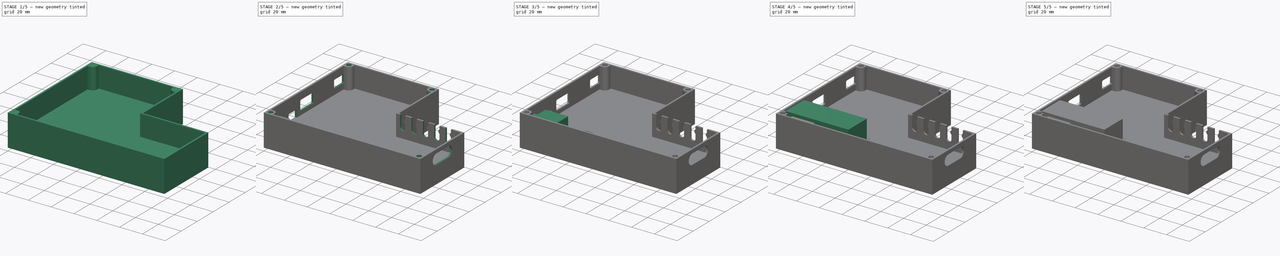
[diagram: build sequence overview — one tinted view per stage of 5, left to right]
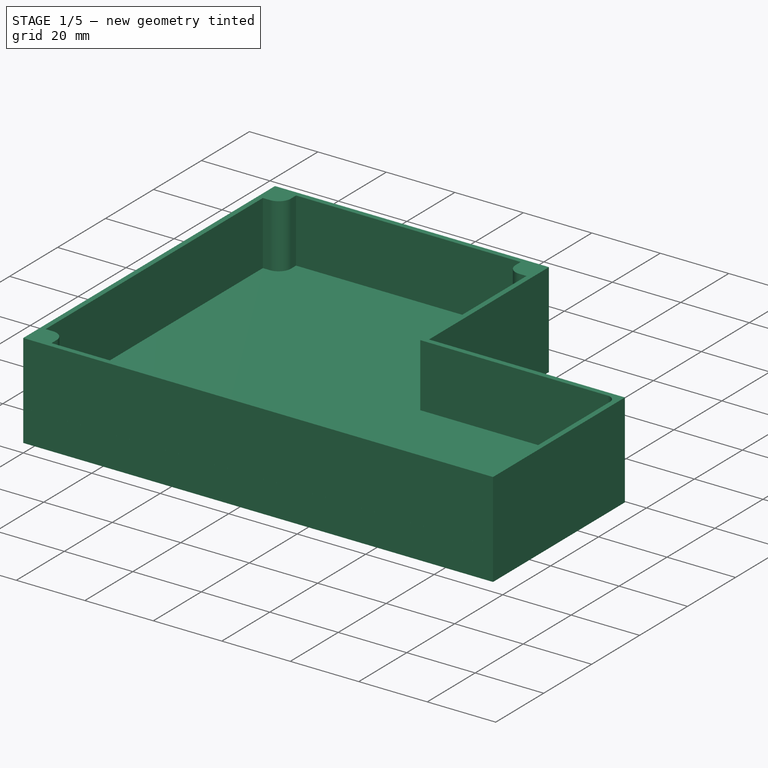
[diagram: stage 1 of 5 — iso view after this stage's code; geometry added in this stage tinted green]
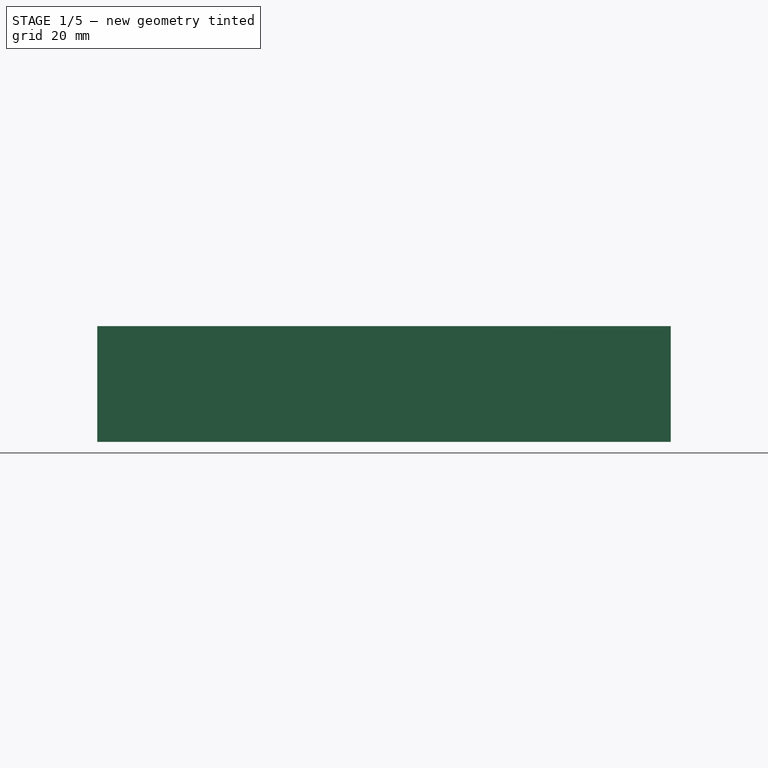
[diagram: stage 1 of 5 — front view after this stage's code; geometry added in this stage tinted green]
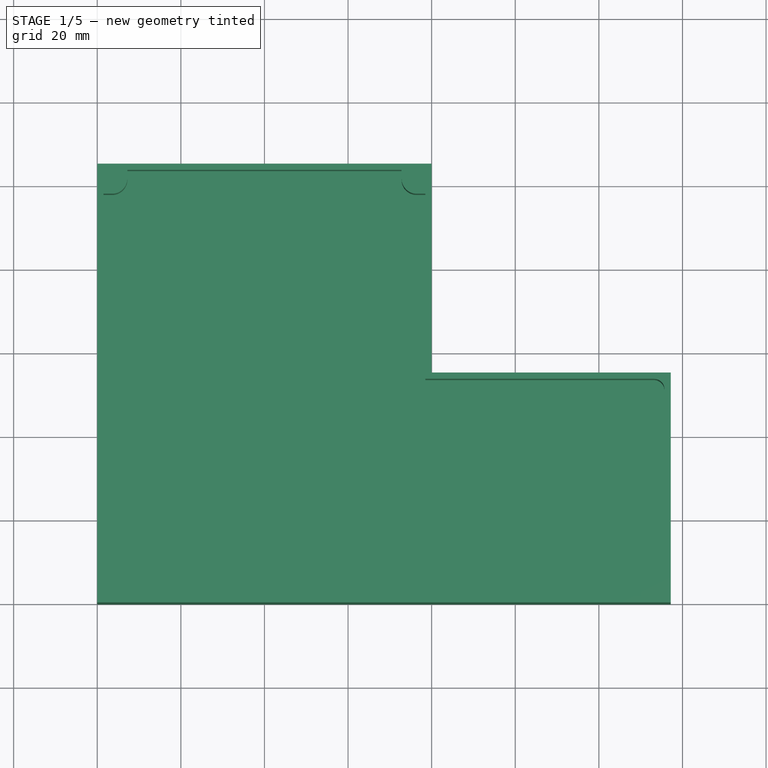
[diagram: stage 1 of 5 — top view after this stage's code; geometry added in this stage tinted green]
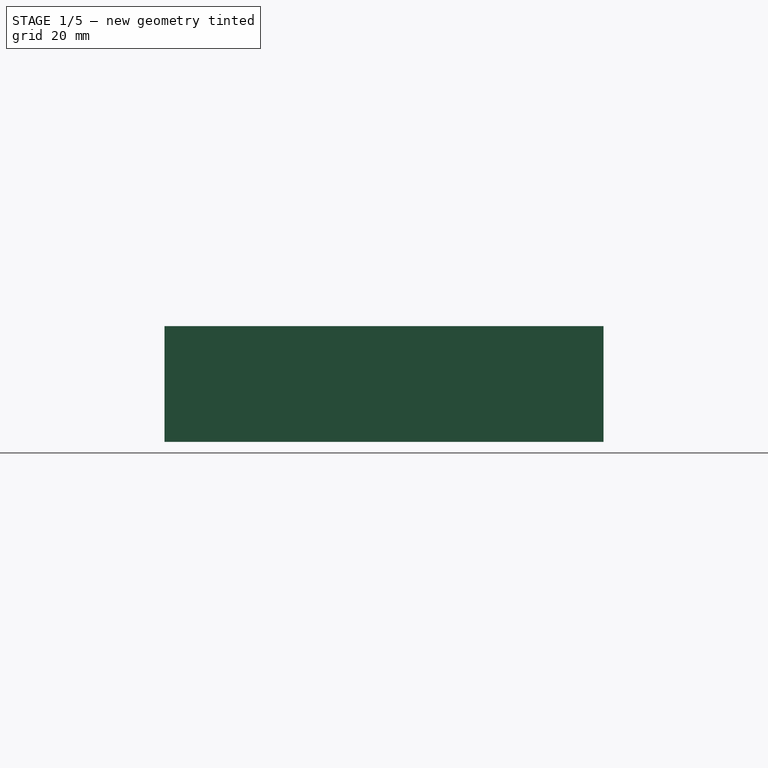
[diagram: stage 1 of 5 — right view after this stage's code; geometry added in this stage tinted green]
FCSTD DOCUMENT  (FreeCAD 0.20R29603 (Git))
Label: gagiauino_slivia_lego_case
License: All rights reserved
LicenseURL: http://en.wikipedia.org/wiki/All_rights_reserved
objects: Sketcher::SketchObject×36, PartDesign::Pad×25, Spreadsheet::Sheet×10, PartDesign::Body×9, PartDesign::Pocket×6, PartDesign::Hole×3, PartDesign::Chamfer×2, App::Part×2, PartDesign::Plane×2, PartDesign::Fillet×1
note: 121 computed .brp shape members not serialized (recipe doc carries the construction recipe); baked Part::Feature solids carry a one-line shape summary decoded from their .brp

FEATURE [PartDesign::Body] Body006  label="max6675"
  Group = -> [Sketch017,Pad017,Sketch018,Pad018,Sketch042,Pad032]
  Origin = -> Origin006
  Placement = pos=(1.5,41.7,-1.7) rot=(0,0,1;0rad)
  Tip = -> Pad032
  expr: .Placement.Base.x = <<ss_case>>.wall_thickness
FEATURE [Sketcher::SketchObject] Sketch045  label="base"
  ExternalGeometry = -> [Sketch033]
  FullyConstrained = true
  MapMode = 5
  Support = -> [XY_Plane]
  sketch-geometry (6):
    g0: LineSegment StartX=0 StartY=0 StartZ=0 EndX=0 EndY=105 EndZ=0
    g1: LineSegment StartX=0 StartY=105 StartZ=0 EndX=80 EndY=105 EndZ=0
    g2: LineSegment StartX=80 StartY=105 StartZ=0 EndX=80 EndY=55 EndZ=0
    g3: LineSegment StartX=80 StartY=55 StartZ=0 EndX=137.2 EndY=55 EndZ=0
    g4: LineSegment StartX=137.2 StartY=55 StartZ=0 EndX=137.2 EndY=0 EndZ=0
    g5: LineSegment StartX=137.2 StartY=0 StartZ=0 EndX=0 EndY=0 EndZ=0
  constraints (12):
    c: Coincident(g-4,g0)
    c: Coincident(g0,g-6)
    c: Coincident(g0,g1)
    c: Coincident(g1,g-7)
    c: Coincident(g1,g2)
    c: Coincident(g2,g-7)
    c: Coincident(g2,g3)
    c: Coincident(g3,g-5)
    c: Coincident(g3,g4)
    c: Coincident(g4,g-5)
    c: Coincident(g4,g5)
    c: Coincident(g5,g0)
FEATURE [PartDesign::Pad] Pad033  label="base_pad"
  Direction = (0,0,1)
  Length = 7.7
  Length2 = 10
  Profile = -> Sketch045
  ReferenceAxis = -> Sketch045 [N_Axis]
  Reversed = true
  Type = 0
  expr: Length = <<ss_case>>.base_height
FEATURE [Sketcher::SketchObject] Sketch046  label="walls_sketch"
  ExternalGeometry = -> [Sketch033]
  FullyConstrained = true
  MapMode = 5
  Support = -> [XY_Plane]
  sketch-geometry (25):
    g0: LineSegment StartX=0 StartY=0 StartZ=0 EndX=0 EndY=105 EndZ=0
    g1: LineSegment StartX=0 StartY=105 StartZ=0 EndX=80 EndY=105 EndZ=0
    g2: LineSegment StartX=80 StartY=105 StartZ=0 EndX=80 EndY=55 EndZ=0
    g3: LineSegment StartX=80 StartY=55 StartZ=0 EndX=137.2 EndY=55 EndZ=0
    g4: LineSegment StartX=137.2 StartY=55 StartZ=0 EndX=137.2 EndY=0 EndZ=0
    g5: LineSegment StartX=137.2 StartY=0 StartZ=0 EndX=0 EndY=0 EndZ=0
    g6: LineSegment StartX=1.5 StartY=97.8 StartZ=0 EndX=1.5 EndY=7.2 EndZ=0
    g7: LineSegment StartX=7.2 StartY=1.5 StartZ=0 EndX=130 EndY=1.5 EndZ=0
    g8: LineSegment StartX=135.7 StartY=7.2 StartZ=0 EndX=135.7 EndY=51 EndZ=0
    g9: LineSegment StartX=133.2 StartY=53.5 StartZ=0 EndX=78.5 EndY=53.5 EndZ=0
    g10: LineSegment StartX=78.5 StartY=97.8 StartZ=0 EndX=78.5 EndY=53.5 EndZ=0
    g11: LineSegment StartX=72.8 StartY=101.4 StartZ=0 EndX=72.8 EndY=103.5 EndZ=0
    g12: LineSegment StartX=72.8 StartY=103.5 StartZ=0 EndX=7.2 EndY=103.5 EndZ=0
    g13: ArcOfCircle CenterX=76.4 CenterY=101.4 CenterZ=0 NormalX=0 NormalY=0 NormalZ=1 AngleXU=0 Radius=3.6 StartAngle=3.14159 EndAngle=4.71238
    g14: ArcOfCircle CenterX=3.6 CenterY=3.6 CenterZ=0 NormalX=0 NormalY=0 NormalZ=1 AngleXU=0 Radius=3.6 StartAngle=-1.208e-13 EndAngle=1.5708
    g15: LineSegment StartX=1.5 StartY=7.2 StartZ=0 EndX=3.6 EndY=7.2 EndZ=0
    g16: LineSegment StartX=7.2 StartY=1.5 StartZ=0 EndX=7.2 EndY=3.6 EndZ=0
    g17: LineSegment StartX=7.2 StartY=103.5 StartZ=0 EndX=7.2 EndY=101.4 EndZ=0
    g18: LineSegment StartX=76.4 StartY=97.8 StartZ=0 EndX=78.5 EndY=97.8 EndZ=0
    g19: ArcOfCircle CenterX=3.6 CenterY=101.4 CenterZ=0 NormalX=0 NormalY=0 NormalZ=1 AngleXU=0 Radius=3.6 StartAngle=4.71239 EndAngle=6.28319
    g20: LineSegment StartX=1.5 StartY=97.8 StartZ=0 EndX=3.6 EndY=97.8 EndZ=0
    g21: ArcOfCircle CenterX=133.2 CenterY=51 CenterZ=0 NormalX=0 NormalY=0 NormalZ=1 AngleXU=0 Radius=2.5 StartAngle=5e-16 EndAngle=1.5708
    g22: ArcOfCircle CenterX=133.6 CenterY=3.6 CenterZ=0 NormalX=0 NormalY=0 NormalZ=1 AngleXU=0 Radius=3.6 StartAngle=1.5708 EndAngle=3.14159
    g23: LineSegment StartX=130 StartY=1.5 StartZ=0 EndX=130 EndY=3.6 EndZ=0
    g24: LineSegment StartX=133.6 StartY=7.2 StartZ=0 EndX=135.7 EndY=7.2 EndZ=0
  constraints (55):
    c: Coincident(g-8,g0)
    c: Coincident(g0,g-8)
    c: Coincident(g0,g1)
    c: Coincident(g1,g-4)
    c: Coincident(g1,g2)
    c: Coincident(g2,g-5)
    c: Coincident(g2,g3)
    c: Coincident(g3,g-6)
    c: Coincident(g3,g4)
    c: Coincident(g4,g-7)
    c: Coincident(g4,g5)
    c: Coincident(g5,g0)
    c: Coincident(g9,g-16)
    c: Coincident(g-16,g10)
    c: Coincident(g10,g9)
    c: Coincident(g11,g-17)
    c: Coincident(g11,g-9)
    c: Coincident(g12,g11)
    c: Coincident(g13,g-17)
    c: Coincident(g13,g11)
    c: PointOnObject(g6,g-18)
    c: Coincident(g14,g-11)
    c: Coincident(g14,g-11)
    c: Coincident(g15,g6)
    c: Horizontal(g15)
    c: Coincident(g16,g7)
    c: Coincident(g17,g12)
    c: Vertical(g17)
    c: Coincident(g18,g13)
    c: Coincident(g18,g10)
    c: Horizontal(g18)
    c: Coincident(g12,g-10)
    c: Coincident(g19,g-19)
    c: PointOnObject(g6,g-18)
    c: Coincident(g20,g6)
    c: Horizontal(g20)
    c: Tangent(g20,g19) = -1.5708
    c: Tangent(g19,g17) = 1.5708
    c: PointOnObject(g7,g-15)
    c: Tangent(g16,g14) = -1.5708
    c: Tangent(g15,g14) = 1.5708
    c: Tangent(g9,g21) = -1.5708
    c: Tangent(g8,g21) = -1.5708
    c: Diameter(g21) = 5
    c: Horizontal(g9)
    c: Vertical(g8)
    c: Coincident(g8,g-14)
    c: Coincident(g-15,g7)
    c: Coincident(g22,g-12)
    c: Coincident(g22,g-12)
    c: Coincident(g23,g7)
    c: Coincident(g23,g22)
    c: Coincident(g24,g22)
    c: Coincident(g24,g8)
    c: Horizontal(g24)
FEATURE [PartDesign::Pad] Pad034  label="walls_pad"
  BaseFeature = -> Pad033
  Direction = (0,0,1)
  Length = 20
  Length2 = 10
  Profile = -> Sketch046
  ReferenceAxis = -> Sketch046 [N_Axis]
  Type = 0
  expr: Length = <<ss_case>>.height
FEATURE [Sketcher::SketchObject] Sketch047  label="modules_sketch"
  ExternalGeometry = -> [Sketch033]
  FullyConstrained = true
  MapMode = 5
  Support = -> [XY_Plane]
  sketch-geometry (28):
    g0: LineSegment StartX=66.7 StartY=97.8 StartZ=0 EndX=1.5 EndY=97.8 EndZ=0
    g1: LineSegment StartX=1.5 StartY=97.8 StartZ=0 EndX=1.5 EndY=64.9 EndZ=0
    g2: LineSegment StartX=1.5 StartY=64.9 StartZ=0 EndX=66.7 EndY=64.9 EndZ=0
    g3: LineSegment StartX=66.7 StartY=64.9 StartZ=0 EndX=66.7 EndY=97.8 EndZ=0
    g4: LineSegment StartX=34.2 StartY=59.7 StartZ=0 EndX=1.5 EndY=59.7 EndZ=0
    g5: LineSegment StartX=1.5 StartY=59.7 StartZ=0 EndX=1.5 EndY=43.6 EndZ=0
    g6: LineSegment StartX=1.5 StartY=43.6 StartZ=0 EndX=34.2 EndY=43.6 EndZ=0
    g7: LineSegment StartX=34.2 StartY=43.6 StartZ=0 EndX=34.2 EndY=59.7 EndZ=0
    g8: LineSegment StartX=35.7 StartY=43.6 StartZ=0 EndX=70.9 EndY=43.6 EndZ=0
    g9: LineSegment StartX=70.9 StartY=43.6 StartZ=0 EndX=70.9 EndY=63.8 EndZ=0
    g10: LineSegment StartX=70.9 StartY=63.8 StartZ=0 EndX=35.7 EndY=63.8 EndZ=0
    g11: LineSegment StartX=35.7 StartY=63.8 StartZ=0 EndX=35.7 EndY=43.6 EndZ=0
    g12: LineSegment StartX=78.5 StartY=71.9 StartZ=0 EndX=69.3 EndY=71.9 EndZ=0
    g13: LineSegment StartX=69.3 StartY=71.9 StartZ=0 EndX=69.3 EndY=97.8 EndZ=0
    g14: LineSegment StartX=69.3 StartY=97.8 StartZ=0 EndX=78.5 EndY=97.8 EndZ=0
    g15: LineSegment StartX=78.5 StartY=97.8 StartZ=0 EndX=78.5 EndY=71.9 EndZ=0
    g16: LineSegment StartX=52 StartY=25.7 StartZ=0 EndX=1.5 EndY=25.7 EndZ=0
    g17: LineSegment StartX=1.5 StartY=25.7 StartZ=0 EndX=1.5 EndY=42.1 EndZ=0
    g18: LineSegment StartX=1.5 StartY=42.1 StartZ=0 EndX=52 EndY=42.1 EndZ=0
    g19: LineSegment StartX=52 StartY=42.1 StartZ=0 EndX=52 EndY=25.7 EndZ=0
    g20: LineSegment StartX=58.3 StartY=7.2 StartZ=0 EndX=1.5 EndY=7.2 EndZ=0
    g21: LineSegment StartX=1.5 StartY=7.2 StartZ=0 EndX=1.5 EndY=24.2 EndZ=0
    g22: LineSegment StartX=1.5 StartY=24.2 StartZ=0 EndX=58.3 EndY=24.2 EndZ=0
    g23: LineSegment StartX=58.3 StartY=24.2 StartZ=0 EndX=58.3 EndY=7.2 EndZ=0
    g24: LineSegment StartX=78.5 StartY=9.1 StartZ=0 EndX=135.7 EndY=9.1 EndZ=0
    g25: LineSegment StartX=135.7 StartY=9.1 StartZ=0 EndX=135.7 EndY=45.9 EndZ=0
    g26: LineSegment StartX=135.7 StartY=45.9 StartZ=0 EndX=78.5 EndY=45.9 EndZ=0
    g27: LineSegment StartX=78.5 StartY=45.9 StartZ=0 EndX=78.5 EndY=9.1 EndZ=0
  constraints (70):
    c: Coincident(g0,g1)
    c: Coincident(g1,g2)
    c: Coincident(g2,g3)
    c: Coincident(g3,g0)
    c: Horizontal(g0)
    c: Horizontal(g2)
    c: Vertical(g1)
    c: Vertical(g3)
    c: Coincident(g0,g-4)
    c: Coincident(g1,g-5)
    c: Coincident(g4,g5)
    c: Coincident(g5,g6)
    c: Coincident(g6,g7)
    c: Coincident(g7,g4)
    c: Horizontal(g4)
    c: Horizontal(g6)
    c: Vertical(g5)
    c: Vertical(g7)
    c: Coincident(g4,g-7)
    c: Coincident(g5,g-8)
    c: Coincident(g8,g9)
    c: Coincident(g9,g10)
    c: Coincident(g10,g11)
    c: Coincident(g11,g8)
    c: Horizontal(g8)
    c: Horizontal(g10)
    c: Vertical(g9)
    c: Vertical(g11)
    c: Coincident(g8,g-15)
    c: Coincident(g9,g-16)
    c: Coincident(g12,g13)
    c: Coincident(g13,g14)
    c: Coincident(g14,g15)
    c: Coincident(g15,g12)
    c: Horizontal(g12)
    c: Horizontal(g14)
    c: Vertical(g13)
    c: Vertical(g15)
    c: Coincident(g12,g-19)
    c: Coincident(g13,g-20)
    c: Coincident(g16,g17)
    c: Coincident(g17,g18)
    c: Coincident(g18,g19)
    c: Coincident(g19,g16)
    c: Horizontal(g16)
    c: Horizontal(g18)
    c: Vertical(g17)
    c: Vertical(g19)
    c: Coincident(g16,g-11)
    c: Coincident(g17,g-9)
    c: Coincident(g20,g21)
    c: Coincident(g21,g22)
    c: Coincident(g22,g23)
    c: Coincident(g23,g20)
    c: Horizontal(g20)
    c: Horizontal(g22)
    c: Vertical(g21)
    c: Vertical(g23)
    c: Coincident(g20,g-14)
    c: Coincident(g21,g-12)
    c: Coincident(g24,g25)
    c: Coincident(g25,g26)
    c: Coincident(g26,g27)
    c: Coincident(g27,g24)
    c: Horizontal(g24)
    c: Horizontal(g26)
    c: Vertical(g25)
    c: Vertical(g27)
    c: Coincident(g24,g-18)
    c: Coincident(g25,g-17)
FEATURE [PartDesign::Pocket] Pocket  label="modules_pocket"
  BaseFeature = -> Pad034
  Direction = (0,0,-1)
  Length = 1.7
  Length2 = 5
  Profile = -> Sketch047
  ReferenceAxis = -> Sketch047 [N_Axis]
  Type = 0
  expr: Length = <<ss_case>>.pcb_thickness
FEATURE [Sketcher::SketchObject] Sketch048  label="th_cutouts_sketch"
  ExternalGeometry = -> [Sketch033]
  FullyConstrained = true
  MapMode = 5
  Support = -> [XY_Plane]
  sketch-geometry (32):
    g0: LineSegment StartX=6.5 StartY=64.9 StartZ=0 EndX=61.7 EndY=64.9 EndZ=0
    g1: LineSegment StartX=61.7 StartY=64.9 StartZ=0 EndX=61.7 EndY=97.8 EndZ=0
    g2: LineSegment StartX=61.7 StartY=97.8 StartZ=0 EndX=6.5 EndY=97.8 EndZ=0
    g3: LineSegment StartX=6.5 StartY=97.8 StartZ=0 EndX=6.5 EndY=64.9 EndZ=0
    g4: LineSegment StartX=1.5 StartY=43.6 StartZ=0 EndX=6.5 EndY=43.6 EndZ=0
    g5: LineSegment StartX=6.5 StartY=43.6 StartZ=0 EndX=6.5 EndY=59.7 EndZ=0
    g6: LineSegment StartX=6.5 StartY=59.7 StartZ=0 EndX=1.5 EndY=59.7 EndZ=0
    g7: LineSegment StartX=1.5 StartY=59.7 StartZ=0 EndX=1.5 EndY=43.6 EndZ=0
    g8: LineSegment StartX=34.2 StartY=43.6 StartZ=0 EndX=29.2 EndY=43.6 EndZ=0
    g9: LineSegment StartX=29.2 StartY=43.6 StartZ=0 EndX=29.2 EndY=59.7 EndZ=0
    g10: LineSegment StartX=29.2 StartY=59.7 StartZ=0 EndX=34.2 EndY=59.7 EndZ=0
    g11: LineSegment StartX=34.2 StartY=59.7 StartZ=0 EndX=34.2 EndY=43.6 EndZ=0
    g12: LineSegment StartX=1.5 StartY=25.7 StartZ=0 EndX=6.5 EndY=25.7 EndZ=0
    g13: LineSegment StartX=6.5 StartY=25.7 StartZ=0 EndX=6.5 EndY=42.1 EndZ=0
    g14: LineSegment StartX=6.5 StartY=42.1 StartZ=0 EndX=1.5 EndY=42.1 EndZ=0
    g15: LineSegment StartX=1.5 StartY=42.1 StartZ=0 EndX=1.5 EndY=25.7 EndZ=0
    g16: LineSegment StartX=52 StartY=25.7 StartZ=0 EndX=47 EndY=25.7 EndZ=0
    g17: LineSegment StartX=47 StartY=25.7 StartZ=0 EndX=47 EndY=42.1 EndZ=0
    g18: LineSegment StartX=47 StartY=42.1 StartZ=0 EndX=52 EndY=42.1 EndZ=0
    g19: LineSegment StartX=52 StartY=42.1 StartZ=0 EndX=52 EndY=25.7 EndZ=0
    g20: LineSegment StartX=6.5 StartY=24.2 StartZ=0 EndX=53.3 EndY=24.2 EndZ=0
    g21: LineSegment StartX=53.3 StartY=24.2 StartZ=0 EndX=53.3 EndY=7.2 EndZ=0
    g22: LineSegment StartX=53.3 StartY=7.2 StartZ=0 EndX=6.5 EndY=7.2 EndZ=0
    g23: LineSegment StartX=6.5 StartY=7.2 StartZ=0 EndX=6.5 EndY=24.2 EndZ=0
    g24: LineSegment StartX=78.5 StartY=12.1 StartZ=0 EndX=135.7 EndY=12.1 EndZ=0
    g25: LineSegment StartX=135.7 StartY=12.1 StartZ=0 EndX=135.7 EndY=22.1 EndZ=0
    g26: LineSegment StartX=135.7 StartY=22.1 StartZ=0 EndX=78.5 EndY=22.1 EndZ=0
    g27: LineSegment StartX=78.5 StartY=22.1 StartZ=0 EndX=78.5 EndY=12.1 EndZ=0
    g28: LineSegment StartX=78.5 StartY=42.9 StartZ=0 EndX=135.7 EndY=42.9 EndZ=0
    g29: LineSegment StartX=135.7 StartY=42.9 StartZ=0 EndX=135.7 EndY=32.9 EndZ=0
    g30: LineSegment StartX=135.7 StartY=32.9 StartZ=0 EndX=78.5 EndY=32.9 EndZ=0
    g31: LineSegment StartX=78.5 StartY=32.9 StartZ=0 EndX=78.5 EndY=42.9 EndZ=0
  constraints (92):
    c: Coincident(g0,g1)
    c: Coincident(g1,g2)
    c: Coincident(g2,g3)
    c: Coincident(g3,g0)
    c: Horizontal(g0)
    c: Horizontal(g2)
    c: Vertical(g1)
    c: Vertical(g3)
    c: PointOnObject(g0,g-4)
    c: PointOnObject(g1,g-3)
    c: Coincident(g4,g5)
    c: Coincident(g5,g6)
    c: Coincident(g6,g7)
    c: Coincident(g7,g4)
    c: Horizontal(g4)
    c: Horizontal(g6)
    c: Vertical(g5)
    c: Vertical(g7)
    c: Coincident(g4,g-8)
    c: PointOnObject(g5,g-7)
    c: Coincident(g8,g9)
    c: Coincident(g9,g10)
    c: Coincident(g10,g11)
    c: Coincident(g11,g8)
    c: Horizontal(g8)
    c: Horizontal(g10)
    c: Vertical(g9)
    c: Vertical(g11)
    c: Coincident(g8,g-8)
    c: PointOnObject(g9,g-7)
    c: Coincident(g12,g13)
    c: Coincident(g13,g14)
    c: Coincident(g14,g15)
    c: Coincident(g15,g12)
    c: Horizontal(g12)
    c: Horizontal(g14)
    c: Vertical(g13)
    c: Vertical(g15)
    c: Coincident(g12,g-12)
    c: PointOnObject(g13,g-11)
    c: Coincident(g16,g17)
    c: Coincident(g17,g18)
    c: Coincident(g18,g19)
    c: Coincident(g19,g16)
    c: Horizontal(g16)
    c: Horizontal(g18)
    c: Vertical(g17)
    c: Vertical(g19)
    c: Coincident(g16,g-12)
    c: PointOnObject(g17,g-11)
    c: Coincident(g20,g21)
    c: Coincident(g21,g22)
    c: Coincident(g22,g23)
    c: Coincident(g23,g20)
    c: Horizontal(g20)
    c: Horizontal(g22)
    c: Vertical(g21)
    c: Vertical(g23)
    c: PointOnObject(g20,g-13)
    c: PointOnObject(g21,g-14)
    c: Coincident(g24,g25)
    c: Coincident(g25,g26)
    c: Coincident(g26,g27)
    c: Coincident(g27,g24)
    c: Horizontal(g24)
    c: Horizontal(g26)
    c: Vertical(g25)
    c: Vertical(g27)
    c: Coincident(g28,g29)
    c: Coincident(g29,g30)
    c: Coincident(g30,g31)
    c: Coincident(g31,g28)
    c: Horizontal(g28)
    c: Horizontal(g30)
    c: Vertical(g29)
    c: Vertical(g31)
    c: Equal(g31,g27)
    c: Equal(g26,g30)
    c: Vertical(g24,g-15)
    c: Vertical(g28,g-16)
    c: Vertical(g28,g-16)
    c: DistanceX(g8,g8) = 5
    c: Equal(g10,g6)
    c: Equal(g6,g14)
    c: Equal(g14,g18)
    c: DistanceX(g20,g-13) = 5
    c: DistanceX(g-13,g20) = 5
    c: DistanceX(g0,g-4) = 5
    c: DistanceX(g-4,g0) = 5
    c: DistanceY(g28,g-16) = 3
    c: DistanceY(g-15,g24) = 3
    c: DistanceY(g-15,g25) = 13
FEATURE [PartDesign::Pocket] Pocket001  label="th_cutouts"
  BaseFeature = -> Pocket
  Direction = (0,0,-1)
  Length = 6.2
  Length2 = 5
  Profile = -> Sketch048
  ReferenceAxis = -> Sketch048 [N_Axis]
  Type = 0
  expr: Length = <<ss_case>>.base_height - <<ss_case>>.wall_thickness
FEATURE [Sketcher::SketchObject] Sketch056  label="lid_master"
  FullyConstrained = true
  MapMode = 5
  Support = -> [XY_Plane012]
  expr: Constraints[13] = <<ss_silvia>>.cable_to_cutout_x
  expr: Constraints[14] = <<ss_silvia>>.solenoid_cutout_width
  expr: Constraints[15] = <<ss_silvia>>.solenoid_cutout_y_offset
  expr: Constraints[16] = <<ss_uC>>.total_length
  expr: Constraints[68] = <<ss_case>>.insert_od
  expr: Constraints[76] = <<ss_case>>.wall_thickness
  expr: Constraints[77] = <<ss_case>>.wall_thickness
  expr: Constraints[78] = <<ss_case>>.wall_thickness
  expr: Constraints[79] = <<ss_case>>.external_wall_offset
  expr: Constraints[83] = <<ss_case>>.wall_thickness
  expr: Constraints[84] = <<ss_case>>.external_wall_offset
  expr: Constraints[85] = <<ss_case>>.wall_thickness
  sketch-geometry (34):
    g0: LineSegment StartX=0 StartY=0 StartZ=0 EndX=0 EndY=105 EndZ=0
    g1: LineSegment StartX=0 StartY=105 StartZ=0 EndX=80 EndY=105 EndZ=0
    g2: LineSegment StartX=80 StartY=105 StartZ=0 EndX=80 EndY=55 EndZ=0
    g3: LineSegment StartX=80 StartY=55 StartZ=0 EndX=137.2 EndY=55 EndZ=0
    g4: LineSegment StartX=137.2 StartY=55 StartZ=0 EndX=137.2 EndY=0 EndZ=0
    g5: LineSegment StartX=137.2 StartY=0 StartZ=0 EndX=0 EndY=0 EndZ=0
    g6: LineSegment StartX=7.2 StartY=103.5 StartZ=0 EndX=72.8 EndY=103.5 EndZ=0
    g7: LineSegment StartX=78.5 StartY=97.8 StartZ=0 EndX=78.5 EndY=53.5 EndZ=0
    g8: LineSegment StartX=78.5 StartY=53.5 StartZ=0 EndX=133.2 EndY=53.5 EndZ=0
    g9: LineSegment StartX=135.7 StartY=51 StartZ=0 EndX=135.7 EndY=7.2 EndZ=0
    g10: LineSegment StartX=130 StartY=1.5 StartZ=0 EndX=7.2 EndY=1.5 EndZ=0
    g11: LineSegment StartX=1.5 StartY=7.19998 StartZ=0 EndX=1.5 EndY=97.8 EndZ=0
    g12: LineSegment StartX=7.2 StartY=103.5 StartZ=0 EndX=7.2 EndY=101.4 EndZ=0
    g13: LineSegment StartX=3.6 StartY=97.8 StartZ=0 EndX=1.5 EndY=97.8 EndZ=0
    g14: ArcOfCircle CenterX=3.6 CenterY=101.4 CenterZ=0 NormalX=0 NormalY=0 NormalZ=1 AngleXU=0 Radius=3.6 StartAngle=4.71239 EndAngle=6.28319
    g15: LineSegment StartX=130 StartY=1.5 StartZ=0 EndX=130 EndY=3.6 EndZ=0
    g16: LineSegment StartX=133.6 StartY=7.2 StartZ=0 EndX=135.7 EndY=7.2 EndZ=0
    g17: ArcOfCircle CenterX=133.6 CenterY=3.6 CenterZ=0 NormalX=0 NormalY=0 NormalZ=1 AngleXU=0 Radius=3.6 StartAngle=1.5708 EndAngle=3.14159
    g18: LineSegment StartX=7.2 StartY=1.5 StartZ=0 EndX=7.2 EndY=3.6 EndZ=0
    g19: LineSegment StartX=3.6 StartY=7.19998 StartZ=0 EndX=1.5 EndY=7.19998 EndZ=0
    g20: ArcOfCircle CenterX=3.6 CenterY=3.59998 CenterZ=0 NormalX=0 NormalY=0 NormalZ=1 AngleXU=0 Radius=3.6 StartAngle=0 EndAngle=1.5708
    g21: LineSegment StartX=72.8 StartY=103.5 StartZ=0 EndX=72.8 EndY=101.4 EndZ=0
    g22: ArcOfCircle CenterX=76.4 CenterY=101.4 CenterZ=0 NormalX=0 NormalY=0 NormalZ=1 AngleXU=0 Radius=3.6 StartAngle=3.14159 EndAngle=4.71239
    g23: LineSegment StartX=78.5 StartY=97.8 StartZ=0 EndX=76.4 EndY=97.8 EndZ=0
    g24: LineSegment StartX=0 StartY=105 StartZ=0 EndX=7.2 EndY=105 EndZ=0
    g25: LineSegment StartX=7.2 StartY=105 StartZ=0 EndX=7.2 EndY=97.8 EndZ=0
    g26: LineSegment StartX=7.2 StartY=97.8 StartZ=0 EndX=0 EndY=97.8 EndZ=0
    g27: LineSegment StartX=0 StartY=97.8 StartZ=0 EndX=0 EndY=105 EndZ=0
    g28: Circle CenterX=3.6 CenterY=101.4 CenterZ=0 NormalX=0 NormalY=0 NormalZ=1 AngleXU=0 Radius=2.1
    g29: LineSegment StartX=7.2 StartY=101.4 StartZ=0 EndX=0 EndY=101.4 EndZ=0
    g30: ArcOfCircle CenterX=133.2 CenterY=51 CenterZ=0 NormalX=0 NormalY=0 NormalZ=1 AngleXU=0 Radius=2.5 StartAngle=8e-16 EndAngle=1.5708
    g31: Circle CenterX=3.6 CenterY=3.59998 CenterZ=0 NormalX=0 NormalY=0 NormalZ=1 AngleXU=0 Radius=2.1
    g32: Circle CenterX=133.6 CenterY=3.6 CenterZ=0 NormalX=0 NormalY=0 NormalZ=1 AngleXU=0 Radius=2.1
    g33: Circle CenterX=76.4 CenterY=101.4 CenterZ=0 NormalX=0 NormalY=0 NormalZ=1 AngleXU=0 Radius=2.1
  constraints (92):
    c: Coincident(g-1,g0)
    c: Vertical(g0)
    c: Coincident(g0,g1)
    c: Horizontal(g1)
    c: Coincident(g1,g2)
    c: Vertical(g2)
    c: Coincident(g2,g3)
    c: Horizontal(g3)
    c: Coincident(g3,g4)
    c: PointOnObject(g4,g-1)
    c: Vertical(g4)
    c: Coincident(g4,g5)
    c: Coincident(g5,g0)
    c: DistanceX(g1,g1) = 80
    c: DistanceY(g2,g2) = 50
    c: DistanceY(g4,g4) = 55
    c: DistanceX(g3,g3) = 57.2
    c: Horizontal(g6)
    c: Vertical(g7)
    c: Coincident(g7,g8)
    c: Horizontal(g8)
    c: Vertical(g9)
    c: Horizontal(g10)
    c: Vertical(g11)
    c: Horizontal(g13)
    c: Vertical(g12)
    c: Tangent(g13,g14) = 1.5708
    c: Tangent(g12,g14) = 1.5708
    c: Coincident(g11,g13)
    c: Coincident(g6,g12)
    c: Horizontal(g16)
    c: Vertical(g15)
    c: Horizontal(g19)
    c: Vertical(g18)
    c: PointOnObject(g18,g20)
    c: Tangent(g20,g18) = -1.5708
    c: Tangent(g19,g20) = -1.5708
    c: Tangent(g16,g17) = 1.5708
    c: Tangent(g15,g17) = 1.5708
    c: Coincident(g10,g15)
    c: Coincident(g9,g16)
    c: Coincident(g11,g19)
    c: Coincident(g18,g10)
    c: Vertical(g21)
    c: Tangent(g21,g22) = -1.5708
    c: Coincident(g23,g7)
    c: Horizontal(g23)
    c: Equal(g14,g20)
    c: Equal(g20,g22)
    c: Equal(g22,g17)
    c: Coincident(g6,g21)
    c: Tangent(g23,g22) = 1.5708
    c: Equal(g13,g12)
    c: Equal(g12,g21)
    c: Equal(g21,g23)
    c: Equal(g23,g19)
    c: Equal(g19,g18)
    c: Equal(g18,g15)
    c: Equal(g15,g16)
    c: Coincident(g24,g25)
    c: Coincident(g25,g26)
    c: Coincident(g26,g27)
    c: Coincident(g27,g24)
    c: Horizontal(g24)
    c: Horizontal(g26)
    c: Vertical(g25)
    c: Vertical(g27)
    c: Coincident(g24,g0)
    c: Diameter(g28) = 4.2
    c: PointOnObject(g29,g0)
    c: Horizontal(g29)
    c: Symmetric(g24,g25,g29)
    c: Equal(g25,g26)
    c: PointOnObject(g12,g25)
    c: PointOnObject(g13,g26)
    c: Symmetric(g29,g29,g28)
    c: DistanceX(g0,g11) = 1.5
    c: DistanceY(g0,g10) = 1.5
    c: DistanceX(g7,g1) = 1.5
    c: Diameter(g14) = 7.2
    c: Tangent(g8,g30) = 1.5708
    c: Tangent(g9,g30) = 1.5708
    c: Diameter(g30) = 5
    c: DistanceY(g7,g2) = 1.5
    c: DistanceX(g29,g29) = 7.2
    c: DistanceX(g9,g4) = 1.5
    c: Coincident(g31,g20)
    c: Coincident(g32,g17)
    c: Coincident(g33,g22)
    c: Equal(g33,g28)
    c: Equal(g28,g31)
    c: Equal(g31,g32)
FEATURE [Sketcher::SketchObject] Sketch057
  ExternalGeometry = -> [Sketch056]
  FullyConstrained = true
  MapMode = 5
  Support = -> [XY_Plane012]
  sketch-geometry (6):
    g0: LineSegment StartX=0 StartY=0 StartZ=0 EndX=0 EndY=105 EndZ=0
    g1: LineSegment StartX=0 StartY=105 StartZ=0 EndX=80 EndY=105 EndZ=0
    g2: LineSegment StartX=80 StartY=105 StartZ=0 EndX=80 EndY=55 EndZ=0
    g3: LineSegment StartX=80 StartY=55 StartZ=0 EndX=137.2 EndY=55 EndZ=0
    g4: LineSegment StartX=137.2 StartY=55 StartZ=0 EndX=137.2 EndY=0 EndZ=0
    g5: LineSegment StartX=137.2 StartY=0 StartZ=0 EndX=0 EndY=0 EndZ=0
  constraints (13):
    c: Coincident(g-1,g0)
    c: Coincident(g0,g-3)
    c: Coincident(g0,g1)
    c: Horizontal(g1)
    c: Coincident(g1,g2)
    c: Coincident(g2,g-5)
    c: Vertical(g2)
    c: Coincident(g2,g3)
    c: Coincident(g3,g-4)
    c: Coincident(g3,g4)
    c: Coincident(g4,g-4)
    c: Coincident(g4,g5)
    c: Coincident(g5,g0)
FEATURE [PartDesign::Pad] Pad035
  Direction = (0,0,1)
  Length = 1.5
  Length2 = 10
  Profile = -> Sketch057
  ReferenceAxis = -> Sketch057 [N_Axis]
  Type = 0
  expr: Length = <<ss_case>>.wall_thickness
FEATURE [Sketcher::SketchObject] Sketch058
  ExternalGeometry = -> [Sketch056]
  FullyConstrained = true
  MapMode = 5
  Support = -> [XY_Plane012]
  expr: Constraints[16] = <<ss_case>>.tolerance
  expr: Constraints[34] = <<ss_case>>.tolerance
  expr: Constraints[54] = <<ss_case>>.tolerance
  expr: Constraints[55] = <<ss_case>>.tolerance
  expr: Constraints[57] = <<ss_case>>.tolerance
  expr: Constraints[59] = <<ss_case>>.tolerance
  expr: Constraints[69] = <<ss_case>>.wall_thickness
  sketch-geometry (30):
    g0: ArcOfCircle CenterX=3.6 CenterY=3.59998 CenterZ=0 NormalX=0 NormalY=0 NormalZ=1 AngleXU=0 Radius=3.8 StartAngle=1e-16 EndAngle=1.5708
    g1: ArcOfCircle CenterX=3.6 CenterY=3.59998 CenterZ=0 NormalX=0 NormalY=0 NormalZ=1 AngleXU=0 Radius=5.3 StartAngle=1e-16 EndAngle=1.5708
    g2: ArcOfCircle CenterX=133.6 CenterY=3.6 CenterZ=0 NormalX=0 NormalY=0 NormalZ=1 AngleXU=0 Radius=3.8 StartAngle=1.5708 EndAngle=3.14159
    g3: ArcOfCircle CenterX=133.6 CenterY=3.6 CenterZ=0 NormalX=0 NormalY=0 NormalZ=1 AngleXU=0 Radius=5.3 StartAngle=1.5708 EndAngle=3.14159
    g4: ArcOfCircle CenterX=133.2 CenterY=51 CenterZ=0 NormalX=0 NormalY=0 NormalZ=1 AngleXU=0 Radius=2.3 StartAngle=-9e-16 EndAngle=1.5708
    g5: ArcOfCircle CenterX=76.4 CenterY=101.4 CenterZ=0 NormalX=0 NormalY=0 NormalZ=1 AngleXU=0 Radius=3.8 StartAngle=3.14159 EndAngle=4.71239
    g6: ArcOfCircle CenterX=76.4 CenterY=101.4 CenterZ=0 NormalX=0 NormalY=0 NormalZ=1 AngleXU=0 Radius=5.3 StartAngle=3.14159 EndAngle=4.71239
    g7: ArcOfCircle CenterX=3.6 CenterY=101.4 CenterZ=0 NormalX=0 NormalY=0 NormalZ=1 AngleXU=0 Radius=3.8 StartAngle=4.71239 EndAngle=6.28319
    g8: ArcOfCircle CenterX=3.6 CenterY=101.4 CenterZ=0 NormalX=0 NormalY=0 NormalZ=1 AngleXU=0 Radius=5.3 StartAngle=4.71239 EndAngle=6.28319
    g9: LineSegment StartX=3.6 StartY=97.6 StartZ=0 EndX=1.7 EndY=97.6 EndZ=0
    g10: LineSegment StartX=1.7 StartY=97.6 StartZ=0 EndX=1.7 EndY=7.39998 EndZ=0
    g11: LineSegment StartX=1.7 StartY=7.39998 StartZ=0 EndX=3.6 EndY=7.39998 EndZ=0
    g12: LineSegment StartX=7.4 StartY=3.59998 StartZ=0 EndX=7.4 EndY=1.7 EndZ=0
    g13: LineSegment StartX=7.4 StartY=1.7 StartZ=0 EndX=129.8 EndY=1.7 EndZ=0
    g14: LineSegment StartX=129.8 StartY=1.7 StartZ=0 EndX=129.8 EndY=3.6 EndZ=0
    g15: LineSegment StartX=133.6 StartY=7.4 StartZ=0 EndX=135.5 EndY=7.4 EndZ=0
    g16: LineSegment StartX=135.5 StartY=7.4 StartZ=0 EndX=135.5 EndY=51 EndZ=0
    g17: LineSegment StartX=7.4 StartY=101.4 StartZ=0 EndX=7.4 EndY=103.3 EndZ=0
    g18: LineSegment StartX=7.4 StartY=103.3 StartZ=0 EndX=72.6 EndY=103.3 EndZ=0
    g19: LineSegment StartX=72.6 StartY=103.3 StartZ=0 EndX=72.6 EndY=101.4 EndZ=0
    g20: LineSegment StartX=76.4 StartY=97.6 StartZ=0 EndX=78.3 EndY=97.6 EndZ=0
    g21: LineSegment StartX=78.3 StartY=97.6 StartZ=0 EndX=78.3 EndY=53.3 EndZ=0
    g22: LineSegment StartX=78.3 StartY=53.3 StartZ=0 EndX=133.2 EndY=53.3 EndZ=0
    g23: LineSegment StartX=8.9 StartY=101.4 StartZ=0 EndX=71.1 EndY=101.4 EndZ=0
    g24: LineSegment StartX=76.4 StartY=96.1 StartZ=0 EndX=76.4 EndY=51.4 EndZ=0
    g25: LineSegment StartX=76.4 StartY=51.4 StartZ=0 EndX=133.2 EndY=51.4 EndZ=0
    g26: LineSegment StartX=133.6 StartY=51 StartZ=0 EndX=133.6 EndY=8.9 EndZ=0
    g27: LineSegment StartX=128.3 StartY=3.6 StartZ=0 EndX=8.9 EndY=3.59998 EndZ=0
    g28: ArcOfCircle CenterX=133.2 CenterY=51 CenterZ=0 NormalX=0 NormalY=0 NormalZ=1 AngleXU=0 Radius=0.4 StartAngle=-8e-15 EndAngle=1.5708
    g29: LineSegment StartX=3.6 StartY=8.89998 StartZ=0 EndX=3.6 EndY=96.1 EndZ=0
  constraints (85):
    c: Coincident(g0,g-9)
    c: Coincident(g1,g0)
    c: Coincident(g2,g-5)
    c: Coincident(g3,g2)
    c: Coincident(g4,g-6)
    c: Coincident(g5,g-8)
    c: Coincident(g6,g5)
    c: Coincident(g7,g-4)
    c: Coincident(g8,g7)
    c: Equal(g7,g5)
    c: Equal(g5,g2)
    c: Equal(g2,g0)
    c: Equal(g8,g6)
    c: Equal(g6,g3)
    c: Equal(g3,g1)
    c: Vertical(g4,g-6)
    c: DistanceY(g4,g-6) = 0.2
    c: Horizontal(g4,g-6)
    c: Tangent(g7,g9) = 1.5708
    c: Coincident(g9,g10)
    c: Vertical(g10)
    c: Coincident(g10,g11)
    c: Coincident(g11,g0)
    c: Horizontal(g11)
    c: Tangent(g0,g12) = 1.5708
    c: Coincident(g12,g13)
    c: Horizontal(g13)
    c: Coincident(g13,g14)
    c: Coincident(g14,g2)
    c: Tangent(g2,g15) = 1.5708
    c: Coincident(g15,g16)
    c: Coincident(g16,g4)
    c: Vertical(g16)
    c: Horizontal(g15)
    c: DistanceY(g-5,g2) = 0.2
    c: Horizontal(g2,g-5)
    c: Vertical(g14)
    c: Vertical(g12)
    c: Horizontal(g9)
    c: Horizontal(g-4,g7)
    c: Coincident(g17,g7)
    c: Vertical(g17)
    c: Coincident(g17,g18)
    c: Horizontal(g18)
    c: Coincident(g18,g19)
    c: Coincident(g19,g5)
    c: Vertical(g19)
    c: Vertical(g5,g-8)
    c: Tangent(g5,g20) = -1.5708
    c: Coincident(g20,g21)
    c: Vertical(g21)
    c: Coincident(g21,g22)
    c: Coincident(g22,g4)
    c: Horizontal(g22)
    c: DistanceX(g20,g-7) = 0.2
    c: DistanceY(g18,g-3) = 0.2
    c: Horizontal(g5,g-8)
    c: DistanceX(g-10,g9) = 0.2
    c: Vertical(g0,g-9)
    c: DistanceY(g-11,g12) = 0.2
    c: Horizontal(g3,g2)
    c: Horizontal(g1,g0)
    c: Vertical(g1,g0)
    c: Vertical(g3,g2)
    c: Vertical(g5,g6)
    c: Vertical(g7,g8)
    c: Horizontal(g8,g7)
    c: Horizontal(g6,g5)
    c: Coincident(g8,g23)
    c: DistanceX(g7,g8) = 1.5
    c: Coincident(g23,g6)
    c: Coincident(g6,g24)
    c: Vertical(g24)
    c: Coincident(g24,g25)
    c: Horizontal(g25)
    c: Coincident(g26,g3)
    c: Coincident(g3,g27)
    c: Coincident(g27,g1)
    c: Vertical(g26)
    c: Tangent(g25,g28) = 1.5708
    c: Tangent(g26,g28) = 1.5708
    c: Vertical(g25,g4)
    c: Horizontal(g26,g4)
    c: Coincident(g29,g1)
    c: Coincident(g29,g8)
FEATURE [PartDesign::Pad] Pad036  label="p_skirt"
  BaseFeature = -> Pad035
  Direction = (0,0,1)
  Length = 1.5
  Length2 = 10
  Profile = -> Sketch058
  ReferenceAxis = -> Sketch058 [N_Axis]
  Reversed = true
  Type = 0
  expr: Length = <<ss_case>>.wall_thickness
FEATURE [Sketcher::SketchObject] Sketch059  label="sk_holes"
  ExternalGeometry = -> [Sketch056]
  FullyConstrained = true
  MapMode = 5
  Support = -> [XY_Plane012]
  sketch-geometry (4):
    g0: Circle CenterX=3.6 CenterY=101.4 CenterZ=0 NormalX=0 NormalY=0 NormalZ=1 AngleXU=0 Radius=2.1
    g1: Circle CenterX=76.4 CenterY=101.4 CenterZ=0 NormalX=0 NormalY=0 NormalZ=1 AngleXU=0 Radius=2.1
    g2: Circle CenterX=3.6 CenterY=3.59998 CenterZ=0 NormalX=0 NormalY=0 NormalZ=1 AngleXU=0 Radius=2.1
    g3: Circle CenterX=133.6 CenterY=3.6 CenterZ=0 NormalX=0 NormalY=0 NormalZ=1 AngleXU=0 Radius=2.1
  constraints (8):
    c: Coincident(g0,g-4)
    c: Coincident(g1,g-5)
    c: Coincident(g2,g-3)
    c: Coincident(g3,g-6)
    c: Equal(g3,g2)
    c: Equal(g2,g0)
    c: Equal(g0,g1)
    c: Equal(g-4,g0)
FEATURE [PartDesign::Hole] Hole002
  BaseFeature = -> Pad036
  CustomThreadClearance = 0
  Depth = 25
  DepthType = 0
  Diameter = 3.2
  DrillForDepth = false
  DrillPoint = 1
  DrillPointAngle = 118
  HoleCutCountersinkAngle = 90
  HoleCutCustomValues = false
  HoleCutDepth = 0
  HoleCutDiameter = 6.1
  HoleCutType = 0
  ModelThread = false
  Profile = -> Sketch059
  Reversed = true
  Tapered = false
  TaperedAngle = 90
  ThreadClass = 0
  ThreadDepth = 25
  ThreadDepthType = 0
  ThreadDirection = 0
  ThreadFit = 0
  ThreadSize = 0
  ThreadType = 0
  Threaded = false
  UseCustomThreadClearance = false
  expr: Diameter = <<ss_case>>.screw_diameter + <<ss_case>>.tolerance
FEATURE [PartDesign::Body] Body009  label="lid"
  Group = -> [Sketch056,Sketch057,Pad035,Sketch058,Pad036,Sketch059,Hole002]
  Origin = -> Origin012
  Placement = pos=(0,0,20) rot=(0,0,1;0rad)
  Tip = -> Hole002
  expr: .Placement.Base.z = <<ss_case>>.height
FEATURE [PartDesign::Plane] DatumPlane001
  AttachmentOffset = pos=(0,0,-7.7) rot=(0,0,1;0rad)
  Length = 60
  MapMode = 5
  Placement = pos=(0,0,-7.7) rot=(0,0,1;0rad)
  ResizeMode = 0
  Support = -> [XY_Plane]
  Width = 60
  expr: .AttachmentOffset.Base.z = -<<ss_case>>.base_height
FEATURE [PartDesign::Body] Body  label="case"
  Group = -> [Sketch033,Sketch045,Pad033,Sketch046,Pad034,Sketch047,Pocket,Sketch048,Pocket001,Sketch049,Hole,Sketch050,Pocket002,Sketch052,Pocket003,Sketch053,Pocket004,Sketch054,Pocket005,DatumPlane,Sketch055,Hole001,DatumPlane001]
  Origin = -> Origin
  Tip = -> Hole001
FEATURE [App::Part] Part  label="case_part"
  Group = -> [Body,Spreadsheet004,Body009,Spreadsheet007]
  Origin = -> Origin007
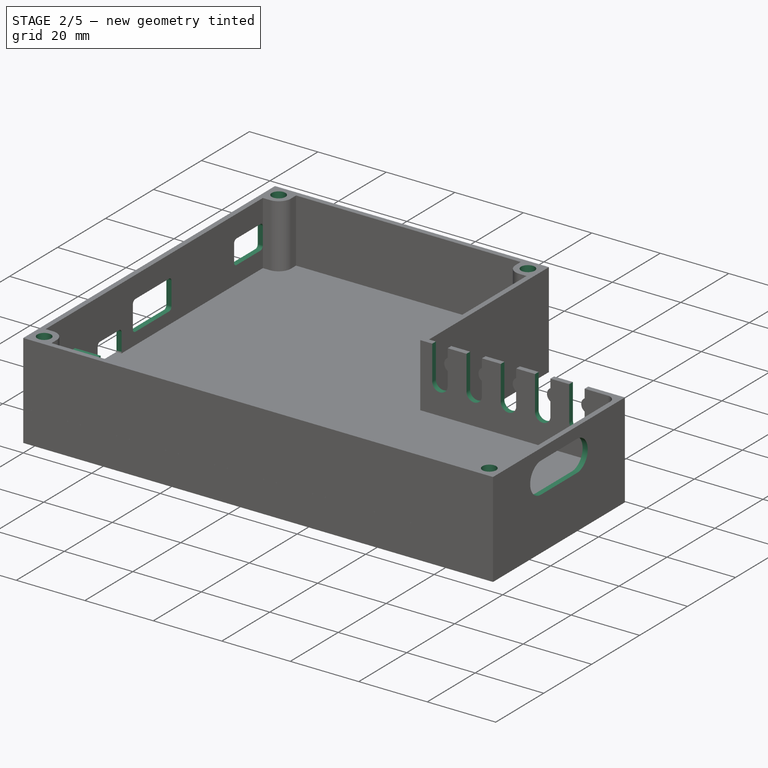
[diagram: stage 2 of 5 — iso view after this stage's code; geometry added in this stage tinted green]
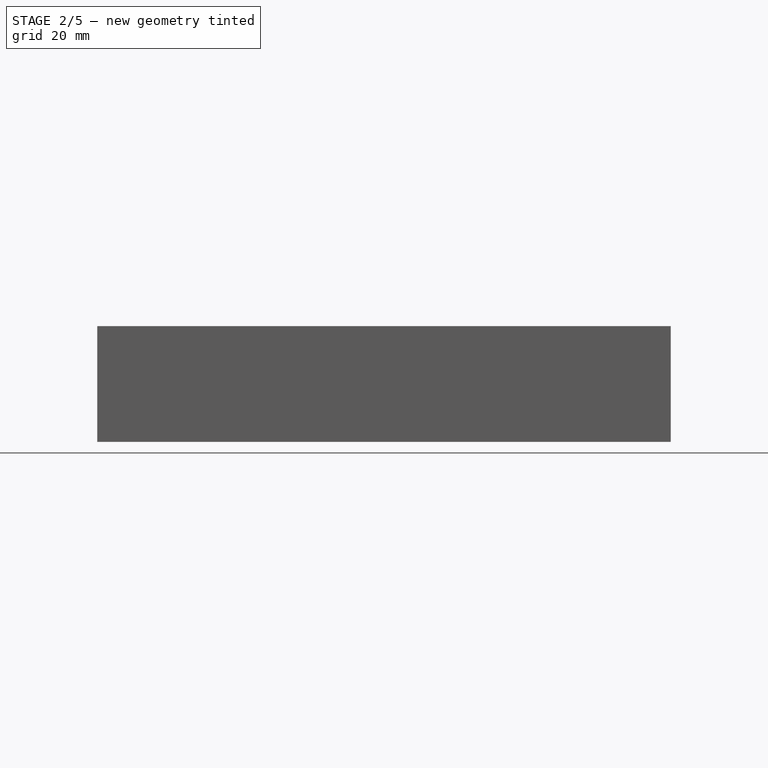
[diagram: stage 2 of 5 — front view after this stage's code; geometry added in this stage tinted green]
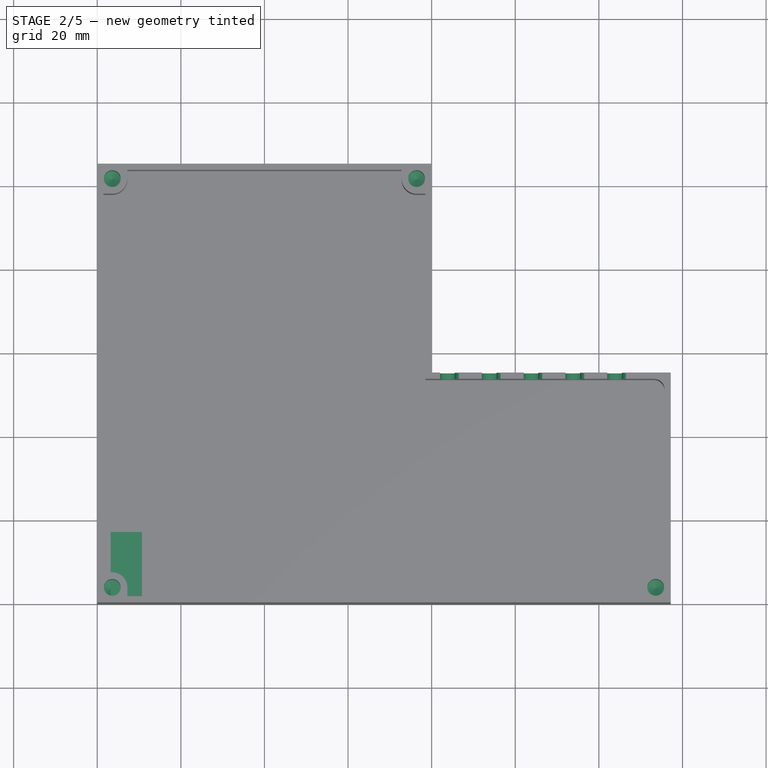
[diagram: stage 2 of 5 — top view after this stage's code; geometry added in this stage tinted green]
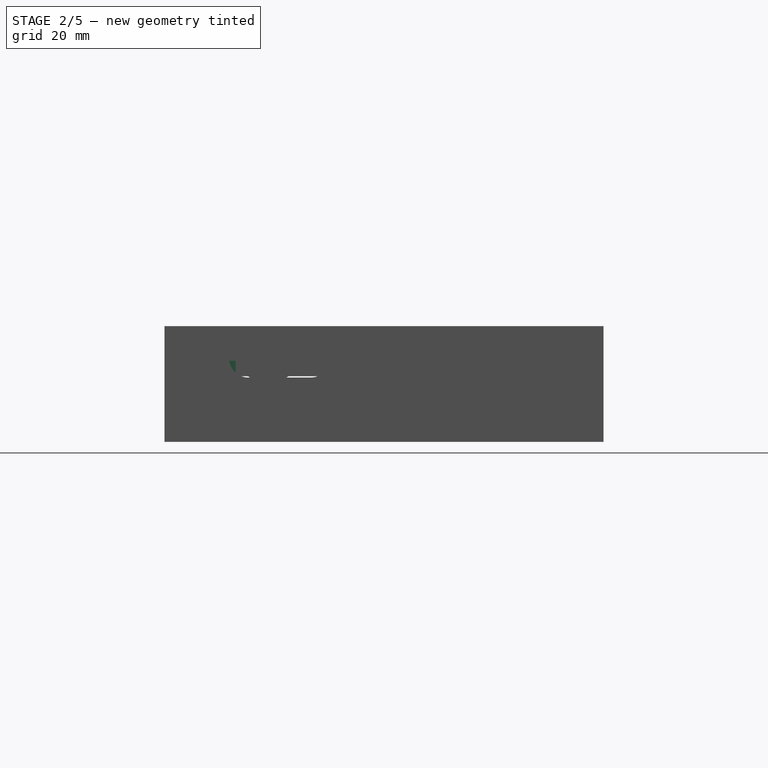
[diagram: stage 2 of 5 — right view after this stage's code; geometry added in this stage tinted green]
FEATURE [Sketcher::SketchObject] Sketch049  label="s_screw_holes"
  ExternalGeometry = -> [Sketch033]
  FullyConstrained = true
  MapMode = 5
  Support = -> [XY_Plane]
  expr: Constraints[34] = 2
  expr: Constraints[35] = <<ss_psu>>.hole_x_offset
  expr: Constraints[39] = <<ss_psu>>.hole_x_spacing
  expr: Constraints[41] = <<ss_ads>>.hole_y_offset
  expr: Constraints[42] = <<ss_ads>>.hole_x_spacing
  expr: Constraints[48] = <<ss_psu>>.hole_y_offset
  expr: Constraints[53] = <<ss_uC>>.hole_x_spacing
  expr: Constraints[54] = <<ss_case>>.module_hold_down_hole_x_offset
  expr: Constraints[62] = 10.1 - 1.8
  expr: Constraints[63] = 1.1 + 1.9
  sketch-geometry (27):
    g0: Circle CenterX=4 CenterY=68.4 CenterZ=0 NormalX=0 NormalY=0 NormalZ=1 AngleXU=0 Radius=1
    g1: Circle CenterX=63.2 CenterY=68.4 CenterZ=0 NormalX=0 NormalY=0 NormalZ=1 AngleXU=0 Radius=1
    g2: Circle CenterX=63.2 CenterY=94.3 CenterZ=0 NormalX=0 NormalY=0 NormalZ=1 AngleXU=0 Radius=1
    g3: Circle CenterX=71.6 CenterY=74.45 CenterZ=0 NormalX=0 NormalY=0 NormalZ=1 AngleXU=0 Radius=1
    g4: Circle CenterX=71.6 CenterY=95.25 CenterZ=0 NormalX=0 NormalY=0 NormalZ=1 AngleXU=0 Radius=1
    g5: Circle CenterX=17.85 CenterY=51.65 CenterZ=0 NormalX=0 NormalY=0 NormalZ=1 AngleXU=0 Radius=1
    g6: Circle CenterX=86.25 CenterY=27.5 CenterZ=0 NormalX=0 NormalY=0 NormalZ=1 AngleXU=0 Radius=1
    g7: Circle CenterX=127.95 CenterY=27.5 CenterZ=0 NormalX=0 NormalY=0 NormalZ=1 AngleXU=0 Radius=1
    g8: LineSegment StartX=4 StartY=94.3 StartZ=0 EndX=1.5 EndY=94.3 EndZ=0
    g9: LineSegment StartX=1.5 StartY=94.3 StartZ=0 EndX=1.5 EndY=97.8 EndZ=0
    g10: LineSegment StartX=1.5 StartY=97.8 StartZ=0 EndX=4 EndY=97.8 EndZ=0
    g11: LineSegment StartX=4 StartY=97.8 StartZ=0 EndX=4 EndY=94.3 EndZ=0
    g12: LineSegment StartX=4 StartY=68.4 StartZ=0 EndX=1.5 EndY=68.4 EndZ=0
    g13: LineSegment StartX=1.5 StartY=68.4 StartZ=0 EndX=1.5 EndY=64.9 EndZ=0
    g14: LineSegment StartX=1.5 StartY=64.9 StartZ=0 EndX=4 EndY=64.9 EndZ=0
    g15: LineSegment StartX=4 StartY=64.9 StartZ=0 EndX=4 EndY=68.4 EndZ=0
    g16: LineSegment StartX=86.25 StartY=27.5 StartZ=0 EndX=78.5 EndY=27.5 EndZ=0
    g17: LineSegment StartX=127.95 StartY=27.5 StartZ=0 EndX=135.7 EndY=27.5 EndZ=0
    g18: Circle CenterX=4 CenterY=94.3 CenterZ=0 NormalX=0 NormalY=0 NormalZ=1 AngleXU=0 Radius=1
    g19: LineSegment StartX=71.6 StartY=74.45 StartZ=0 EndX=69.3 EndY=71.9 EndZ=0
    g20: LineSegment StartX=71.6 StartY=95.25 StartZ=0 EndX=69.3 EndY=97.8 EndZ=0
    g21: Circle CenterX=41.5 CenterY=4.35 CenterZ=0 NormalX=0 NormalY=0 NormalZ=1 AngleXU=0 Radius=1
    g22: LineSegment StartX=41.5 StartY=1.5 StartZ=0 EndX=41.5 EndY=7.2 EndZ=0
    g23: Circle CenterX=38.4611 CenterY=46.1786 CenterZ=0 NormalX=0 NormalY=0 NormalZ=1 AngleXU=0 Radius=1
    g24: Circle CenterX=68.1389 CenterY=46.1786 CenterZ=0 NormalX=0 NormalY=0 NormalZ=1 AngleXU=0 Radius=1
    g25: LineSegment StartX=38.4611 StartY=46.1786 StartZ=0 EndX=35.7 EndY=43.6 EndZ=0
    g26: LineSegment StartX=68.1389 StartY=46.1786 StartZ=0 EndX=70.9 EndY=43.6 EndZ=0
  constraints (70):
    c: Coincident(g8,g9)
    c: Coincident(g9,g10)
    c: Coincident(g10,g11)
    c: Coincident(g11,g8)
    c: Horizontal(g8)
    c: Horizontal(g10)
    c: Vertical(g9)
    c: Vertical(g11)
    c: Coincident(g9,g-4)
    c: Coincident(g12,g13)
    c: Coincident(g13,g14)
    c: Coincident(g14,g15)
    c: Coincident(g15,g12)
    c: Horizontal(g12)
    c: Horizontal(g14)
    c: Vertical(g13)
    c: Vertical(g15)
    c: Coincident(g12,g0)
    c: Coincident(g13,g-3)
    c: Coincident(g16,g6)
    c: Horizontal(g16)
    c: Horizontal(g17)
    c: Symmetric(g-7,g-6,g5)
    c: Equal(g0,g1)
    c: Equal(g1,g2)
    c: Equal(g2,g3)
    c: Equal(g3,g4)
    c: Equal(g4,g5)
    c: Equal(g5,g6)
    c: Equal(g6,g7)
    c: Equal(g11,g15)
    c: Equal(g12,g8)
    c: Coincident(g18,g8)
    c: Equal(g18,g0)
    c: Diameter(g18) = 2
    c: DistanceX(g8,g8) = 2.5
    c: Vertical(g1,g2)
    c: Horizontal(g2,g18)
    c: Horizontal(g1,g0)
    c: DistanceX(g18,g2) = 59.2
    c: Vertical(g3,g4)
    c: DistanceX(g-10,g3) = 2.3
    c: DistanceY(g3,g4) = 20.8
    c: Coincident(g19,g3)
    c: Coincident(g19,g-10)
    c: Coincident(g20,g4)
    c: Coincident(g20,g-10)
    c: Equal(g20,g19)
    c: DistanceY(g15,g15) = 3.5
    c: Coincident(g7,g17)
    c: Equal(g16,g17)
    c: Symmetric(g-9,g-8,g16)
    c: Symmetric(g-8,g-9,g17)
    c: DistanceX(g6,g7) = 41.7
    c: DistanceX(g-11,g21) = 40
    c: PointOnObject(g22,g-12)
    c: PointOnObject(g22,g-11)
    c: Vertical(g22)
    c: Symmetric(g22,g22,g21)
    c: Equal(g21,g5)
    c: Equal(g23,g24)
    c: Equal(g24,g5)
    c: DistanceX(g23,g24) = 29.6778
    c: DistanceY(g-5,g23) = 2.57857
    c: Coincident(g25,g23)
    c: Coincident(g25,g-5)
    c: Coincident(g26,g24)
    c: Coincident(g26,g-5)
    c: Equal(g26,g25)
    c: Horizontal(g23,g24)
FEATURE [PartDesign::Hole] Hole  label="screw_holes"
  BaseFeature = -> Pocket001
  CustomThreadClearance = 0
  Depth = 6.2
  DepthType = 0
  Diameter = 2
  DrillForDepth = false
  DrillPoint = 0
  DrillPointAngle = 118
  HoleCutCountersinkAngle = 90
  HoleCutCustomValues = false
  HoleCutDepth = 0
  HoleCutDiameter = 6.1
  HoleCutType = 0
  ModelThread = false
  Profile = -> Sketch049
  Tapered = false
  TaperedAngle = 90
  ThreadClass = 0
  ThreadDepth = 6.2
  ThreadDepthType = 0
  ThreadDirection = 0
  ThreadFit = 0
  ThreadSize = 0
  ThreadType = 0
  Threaded = false
  UseCustomThreadClearance = false
  expr: Depth = <<ss_case>>.base_height - <<ss_case>>.wall_thickness
FEATURE [Sketcher::SketchObject] Sketch050  label="sk_floor_cutout"
  ExternalGeometry = -> [Sketch033]
  FullyConstrained = true
  MapMode = 5
  Support = -> [XY_Plane]
  sketch-geometry (24):
    g0: LineSegment StartX=1.5 StartY=64.9 StartZ=0 EndX=66.7 EndY=64.9 EndZ=0
    g1: LineSegment StartX=66.7 StartY=64.9 StartZ=0 EndX=66.7 EndY=71.9 EndZ=0
    g2: LineSegment StartX=66.7 StartY=71.9 StartZ=0 EndX=78.5 EndY=71.9 EndZ=0
    g3: LineSegment StartX=78.5 StartY=71.9 StartZ=0 EndX=78.5 EndY=53.5 EndZ=0
    g4: LineSegment StartX=78.5 StartY=53.5 StartZ=0 EndX=133.2 EndY=53.5 EndZ=0
    g5: LineSegment StartX=135.7 StartY=51 StartZ=0 EndX=135.7 EndY=45.9 EndZ=0
    g6: LineSegment StartX=135.7 StartY=45.9 StartZ=0 EndX=78.5 EndY=45.9 EndZ=0
    g7: LineSegment StartX=78.5 StartY=45.9 StartZ=0 EndX=78.5 EndY=9.1 EndZ=0
    g8: LineSegment StartX=78.5 StartY=9.1 StartZ=0 EndX=135.7 EndY=9.1 EndZ=0
    g9: LineSegment StartX=130 StartY=1.5 StartZ=0 EndX=58.3 EndY=1.5 EndZ=0
    g10: LineSegment StartX=58.3 StartY=1.5 StartZ=0 EndX=58.3 EndY=24.2 EndZ=0
    g11: LineSegment StartX=58.3 StartY=24.2 StartZ=0 EndX=52 EndY=24.2 EndZ=0
    g12: LineSegment StartX=52 StartY=24.2 StartZ=0 EndX=52 EndY=42.1 EndZ=0
    g13: LineSegment StartX=52 StartY=42.1 StartZ=0 EndX=70.9 EndY=42.1 EndZ=0
    g14: LineSegment StartX=70.9 StartY=42.1 StartZ=0 EndX=70.9 EndY=63.8 EndZ=0
    g15: LineSegment StartX=70.9 StartY=63.8 StartZ=0 EndX=34.2 EndY=63.8 EndZ=0
    g16: LineSegment StartX=34.2 StartY=63.8 StartZ=0 EndX=34.2 EndY=59.7 EndZ=0
    g17: LineSegment StartX=34.2 StartY=59.7 StartZ=0 EndX=1.5 EndY=59.7 EndZ=0
    g18: LineSegment StartX=1.5 StartY=59.7 StartZ=0 EndX=1.5 EndY=64.9 EndZ=0
    g19: ArcOfCircle CenterX=133.2 CenterY=51 CenterZ=0 NormalX=0 NormalY=0 NormalZ=1 AngleXU=0 Radius=2.5 StartAngle=6.8e-15 EndAngle=1.5708
    g20: ArcOfCircle CenterX=133.6 CenterY=3.6 CenterZ=0 NormalX=0 NormalY=0 NormalZ=1 AngleXU=0 Radius=3.6 StartAngle=1.5708 EndAngle=3.14159
    g21: LineSegment StartX=130 StartY=1.5 StartZ=0 EndX=130 EndY=3.6 EndZ=0
    g22: LineSegment StartX=135.7 StartY=7.2 StartZ=0 EndX=133.6 EndY=7.2 EndZ=0
    g23: LineSegment StartX=135.7 StartY=7.2 StartZ=0 EndX=135.7 EndY=9.1 EndZ=0
  constraints (55):
    c: Coincident(g-3,g0)
    c: Coincident(g0,g-3)
    c: Coincident(g0,g1)
    c: Vertical(g1)
    c: Coincident(g1,g2)
    c: Coincident(g2,g-13)
    c: Coincident(g2,g3)
    c: Coincident(g3,g-12)
    c: Coincident(g3,g4)
    c: Coincident(g5,g-10)
    c: Coincident(g5,g6)
    c: Coincident(g6,g-10)
    c: Coincident(g6,g7)
    c: Coincident(g7,g-9)
    c: Coincident(g7,g8)
    c: Coincident(g8,g-9)
    c: Horizontal(g9)
    c: Coincident(g9,g10)
    c: Coincident(g10,g-7)
    c: Vertical(g10)
    c: Coincident(g10,g11)
    c: Horizontal(g11)
    c: Coincident(g11,g12)
    c: Coincident(g12,g-6)
    c: Vertical(g12)
    c: Coincident(g12,g13)
    c: Horizontal(g13)
    c: Coincident(g13,g14)
    c: Vertical(g14)
    c: Horizontal(g2)
    c: Coincident(g14,g-4)
    c: Coincident(g14,g15)
    c: Horizontal(g15)
    c: Coincident(g15,g16)
    c: Coincident(g16,g-5)
    c: Vertical(g16)
    c: Coincident(g16,g17)
    c: Coincident(g17,g-5)
    c: Coincident(g17,g18)
    c: Coincident(g18,g0)
    c: Tangent(g4,g19) = 1.5708
    c: Tangent(g5,g19) = 1.5708
    c: Diameter(g19) = 5
    c: PointOnObject(g4,g-12)
    c: Vertical(g5,g-12)
    c: Coincident(g9,g-17)
    c: Coincident(g20,g-18)
    c: Coincident(g20,g-18)
    c: Coincident(g21,g9)
    c: Coincident(g21,g20)
    c: Coincident(g22,g-16)
    c: Coincident(g22,g20)
    c: Horizontal(g22)
    c: Coincident(g23,g22)
    c: Coincident(g23,g8)
FEATURE [PartDesign::Pocket] Pocket002  label="p_floor_cutout"
  BaseFeature = -> Hole
  Direction = (0,0,-1)
  Length = 6.2
  Length2 = 5
  Profile = -> Sketch050
  ReferenceAxis = -> Sketch050 [N_Axis]
  Type = 0
  expr: Length = <<ss_case>>.base_height - <<ss_case>>.wall_thickness
FEATURE [Sketcher::SketchObject] Sketch052  label="sk_terminal_cutout"
  ExternalGeometry = -> [Sketch033]
  FullyConstrained = true
  MapMode = 5
  Placement = pos=(0,0,0) rot=(0.57735,0.57735,0.57735;2.0944rad)
  Support = -> [YZ_Plane]
  expr: Constraints[120] = <<ss_case>>.height
  expr: Constraints[24] = <<ss_relay>>.screw_terminal_z_offset
  expr: Constraints[25] = <<ss_dimmer>>.screw_terminal_z_offset
  expr: Constraints[26] = <<ss_max>>.screw_terminal_z_offset
  expr: Constraints[27] = <<ss_max>>.terminal_height
  expr: Constraints[28] = <<ss_dimmer>>.screw_terminal_opening_height
  expr: Constraints[29] = <<ss_relay>>.screw_terminal_opening_height
  expr: Constraints[30] = <<ss_relay>>.screw_term_width
  expr: Constraints[31] = <<ss_dimmer>>.screw_terminal_x_width
  expr: Constraints[32] = <<ss_max>>.width
  sketch-geometry (56):
    g0: LineSegment StartX=10.7 StartY=1 StartZ=0 EndX=20.7 EndY=1 EndZ=0
    g1: LineSegment StartX=20.7 StartY=1 StartZ=0 EndX=20.7 EndY=8 EndZ=0
    g2: LineSegment StartX=20.7 StartY=8 StartZ=0 EndX=10.7 EndY=8 EndZ=0
    g3: LineSegment StartX=10.7 StartY=8 StartZ=0 EndX=10.7 EndY=1 EndZ=0
    g4: LineSegment StartX=28.9 StartY=1 StartZ=0 EndX=38.9 EndY=1 EndZ=0
    g5: LineSegment StartX=38.9 StartY=1 StartZ=0 EndX=38.9 EndY=8 EndZ=0
    g6: LineSegment StartX=38.9 StartY=8 StartZ=0 EndX=28.9 EndY=8 EndZ=0
    g7: LineSegment StartX=28.9 StartY=8 StartZ=0 EndX=28.9 EndY=1 EndZ=0
    g8: LineSegment StartX=43.6 StartY=5 StartZ=0 EndX=59.7 EndY=5 EndZ=0
    g9: LineSegment StartX=59.7 StartY=5 StartZ=0 EndX=59.7 EndY=13.64 EndZ=0
    g10: LineSegment StartX=59.7 StartY=13.64 StartZ=0 EndX=43.6 EndY=13.64 EndZ=0
    g11: LineSegment StartX=43.6 StartY=13.64 StartZ=0 EndX=43.6 EndY=5 EndZ=0
    g12: LineSegment StartX=7.2 StartY=-6.3e-15 StartZ=0 EndX=10.7 EndY=-6.3e-15 EndZ=0
    g13: LineSegment StartX=24.2 StartY=-1.6e-15 StartZ=0 EndX=20.7 EndY=-1.6e-15 EndZ=0
    g14: LineSegment StartX=25.7 StartY=-3e-16 StartZ=0 EndX=28.9 EndY=-3e-16 EndZ=0
    g15: LineSegment StartX=42.1 StartY=4.3e-15 StartZ=0 EndX=38.9 EndY=4.3e-15 EndZ=0
    g16: LineSegment StartX=11.7 StartY=8 StartZ=0 EndX=19.7 EndY=8 EndZ=0
    g17: LineSegment StartX=20.7 StartY=7 StartZ=0 EndX=20.7 EndY=2 EndZ=0
    g18: LineSegment StartX=19.7 StartY=1 StartZ=0 EndX=11.7 EndY=1 EndZ=0
    g19: LineSegment StartX=10.7 StartY=2 StartZ=0 EndX=10.7 EndY=7 EndZ=0
    g20: LineSegment StartX=29.9 StartY=8 StartZ=0 EndX=37.9 EndY=8 EndZ=0
    g21: LineSegment StartX=38.9 StartY=7 StartZ=0 EndX=38.9 EndY=2 EndZ=0
    g22: LineSegment StartX=37.9 StartY=1 StartZ=0 EndX=29.9 EndY=1 EndZ=0
    g23: LineSegment StartX=28.9 StartY=2 StartZ=0 EndX=28.9 EndY=7 EndZ=0
    g24: LineSegment StartX=44.6 StartY=13.64 StartZ=0 EndX=58.7 EndY=13.64 EndZ=0
    g25: LineSegment StartX=59.7 StartY=12.64 StartZ=0 EndX=59.7 EndY=6 EndZ=0
    g26: LineSegment StartX=58.7 StartY=5 StartZ=0 EndX=44.6 EndY=5 EndZ=0
    g27: LineSegment StartX=43.6 StartY=6 StartZ=0 EndX=43.6 EndY=12.64 EndZ=0
    g28: ArcOfCircle CenterX=11.7 CenterY=7 CenterZ=0 NormalX=0 NormalY=0 NormalZ=1 AngleXU=0 Radius=1 StartAngle=1.5708 EndAngle=3.14159
    g29: ArcOfCircle CenterX=19.7 CenterY=2 CenterZ=0 NormalX=0 NormalY=0 NormalZ=1 AngleXU=0 Radius=1 StartAngle=4.71239 EndAngle=6.28319
    g30: ArcOfCircle CenterX=19.7 CenterY=7 CenterZ=0 NormalX=0 NormalY=0 NormalZ=1 AngleXU=0 Radius=1 StartAngle=0 EndAngle=1.5708
    g31: ArcOfCircle CenterX=11.7 CenterY=2 CenterZ=0 NormalX=0 NormalY=0 NormalZ=1 AngleXU=0 Radius=1 StartAngle=3.14159 EndAngle=4.71239
    g32: ArcOfCircle CenterX=29.9 CenterY=2 CenterZ=0 NormalX=0 NormalY=0 NormalZ=1 AngleXU=0 Radius=1 StartAngle=3.14159 EndAngle=4.71239
    g33: ArcOfCircle CenterX=29.9 CenterY=7 CenterZ=0 NormalX=0 NormalY=0 NormalZ=1 AngleXU=0 Radius=1 StartAngle=1.5708 EndAngle=3.14159
    g34: ArcOfCircle CenterX=37.9 CenterY=7 CenterZ=0 NormalX=0 NormalY=0 NormalZ=1 AngleXU=0 Radius=1 StartAngle=1e-16 EndAngle=1.5708
    g35: ArcOfCircle CenterX=37.9 CenterY=2 CenterZ=0 NormalX=0 NormalY=0 NormalZ=1 AngleXU=0 Radius=1 StartAngle=4.71239 EndAngle=6.28319
    g36: ArcOfCircle CenterX=44.6 CenterY=12.64 CenterZ=0 NormalX=0 NormalY=0 NormalZ=1 AngleXU=0 Radius=1 StartAngle=1.5708 EndAngle=3.14159
    g37: ArcOfCircle CenterX=58.7 CenterY=12.64 CenterZ=0 NormalX=0 NormalY=0 NormalZ=1 AngleXU=0 Radius=1 StartAngle=-9e-16 EndAngle=1.5708
    g38: ArcOfCircle CenterX=58.7 CenterY=6 CenterZ=0 NormalX=0 NormalY=0 NormalZ=1 AngleXU=0 Radius=1 StartAngle=4.71239 EndAngle=6.28319
    g39: ArcOfCircle CenterX=44.6 CenterY=6 CenterZ=0 NormalX=0 NormalY=0 NormalZ=1 AngleXU=0 Radius=1 StartAngle=3.14159 EndAngle=4.71239
    g40: LineSegment StartX=97.8 StartY=13.5 StartZ=0 EndX=85.8 EndY=13.5 EndZ=0
    g41: LineSegment StartX=85.8 StartY=13.5 StartZ=0 EndX=85.8 EndY=6.5 EndZ=0
    g42: LineSegment StartX=85.8 StartY=6.5 StartZ=0 EndX=97.8 EndY=6.5 EndZ=0
    g43: LineSegment StartX=97.8 StartY=6.5 StartZ=0 EndX=97.8 EndY=13.5 EndZ=0
    g44: LineSegment StartX=97.8 StartY=1.77e-14 StartZ=0 EndX=97.8 EndY=20 EndZ=0
    g45: GeomPoint X=97.8 Y=10 Z=0
    g46: ArcOfCircle CenterX=86.8 CenterY=12.5 CenterZ=0 NormalX=0 NormalY=0 NormalZ=1 AngleXU=0 Radius=1 StartAngle=1.5708 EndAngle=3.14159
    g47: LineSegment StartX=86.8 StartY=13.5 StartZ=0 EndX=96.8 EndY=13.5 EndZ=0
    g48: ArcOfCircle CenterX=96.8 CenterY=12.5 CenterZ=0 NormalX=0 NormalY=0 NormalZ=1 AngleXU=0 Radius=1 StartAngle=0 EndAngle=1.5708
    g49: LineSegment StartX=97.8 StartY=12.5 StartZ=0 EndX=97.8 EndY=7.5 EndZ=0
    g50: ArcOfCircle CenterX=96.8 CenterY=7.5 CenterZ=0 NormalX=0 NormalY=0 NormalZ=1 AngleXU=0 Radius=1 StartAngle=4.71239 EndAngle=6.28319
    g51: LineSegment StartX=96.8 StartY=6.5 StartZ=0 EndX=86.8 EndY=6.5 EndZ=0
    g52: ArcOfCircle CenterX=86.8 CenterY=7.5 CenterZ=0 NormalX=0 NormalY=0 NormalZ=1 AngleXU=0 Radius=1 StartAngle=3.14159 EndAngle=4.71239
    g53: LineSegment StartX=85.8 StartY=7.5 StartZ=0 EndX=85.8 EndY=12.5 EndZ=0
    g54: GeomPoint X=85.8 Y=13.5 Z=0
    g55: GeomPoint X=97.8 Y=6.5 Z=0
  constraints (147):
    c: Coincident(g0,g1)
    c: Coincident(g1,g2)
    c: Coincident(g2,g3)
    c: Coincident(g3,g0)
    c: Horizontal(g0)
    c: Horizontal(g2)
    c: Vertical(g1)
    c: Vertical(g3)
    c: Coincident(g4,g5)
    c: Coincident(g5,g6)
    c: Coincident(g6,g7)
    c: Coincident(g7,g4)
    c: Horizontal(g4)
    c: Horizontal(g6)
    c: Vertical(g5)
    c: Vertical(g7)
    c: Coincident(g8,g9)
    c: Coincident(g9,g10)
    c: Coincident(g10,g11)
    c: Coincident(g11,g8)
    c: Horizontal(g8)
    c: Horizontal(g10)
    c: Vertical(g9)
    c: Vertical(g11)
    c: DistanceY(g-1,g0) = 1
    c: DistanceY(g-1,g4) = 1
    c: DistanceY(g-1,g8) = 5
    c: DistanceY(g-1,g10) = 13.64
    c: DistanceY(g4,g6) = 7
    c: DistanceY(g3,g3) = 7
    c: DistanceX(g2,g2) = 10
    c: DistanceX(g6,g6) = 10
    c: DistanceX(g10,g10) = 16.1
    c: Coincident(g12,g-3)
    c: PointOnObject(g12,g3)
    c: Horizontal(g12)
    c: Coincident(g13,g-4)
    c: PointOnObject(g13,g1)
    c: Horizontal(g13)
    c: Coincident(g14,g-5)
    c: PointOnObject(g14,g7)
    c: Horizontal(g14)
    c: Coincident(g15,g-6)
    c: PointOnObject(g15,g5)
    c: Horizontal(g15)
    c: Equal(g15,g14)
    c: Equal(g13,g12)
    c: Vertical(g8,g-7)
    c: Horizontal(g16)
    c: Horizontal(g18)
    c: Vertical(g17)
    c: Vertical(g19)
    c: Horizontal(g20)
    c: Horizontal(g22)
    c: Vertical(g21)
    c: Vertical(g23)
    c: Horizontal(g24)
    c: Horizontal(g26)
    c: Vertical(g25)
    c: Vertical(g27)
    c: Tangent(g19,g28) = 1.5708
    c: Tangent(g16,g28) = 1.5708
    c: Tangent(g18,g29) = 1.5708
    c: Tangent(g17,g29) = 1.5708
    c: Tangent(g16,g30) = 1.5708
    c: Tangent(g17,g30) = 1.5708
    c: Tangent(g18,g31) = 1.5708
    c: Tangent(g19,g31) = 1.5708
    c: Tangent(g22,g32) = 1.5708
    c: Tangent(g23,g32) = 1.5708
    c: Tangent(g23,g33) = 1.5708
    c: Tangent(g20,g33) = 1.5708
    c: Tangent(g20,g34) = 1.5708
    c: Tangent(g21,g34) = 1.5708
    c: Tangent(g22,g35) = 1.5708
    c: Tangent(g21,g35) = 1.5708
    c: Tangent(g27,g36) = 1.5708
    c: Tangent(g24,g36) = 1.5708
    c: Tangent(g24,g37) = 1.5708
    c: Tangent(g25,g37) = 1.5708
    c: Tangent(g26,g38) = 1.5708
    c: Tangent(g25,g38) = 1.5708
    c: Tangent(g26,g39) = 1.5708
    c: Tangent(g27,g39) = 1.5708
    c: PointOnObject(g27,g11)
    c: PointOnObject(g24,g10)
    c: PointOnObject(g26,g8)
    c: PointOnObject(g25,g9)
    c: PointOnObject(g20,g6)
    c: PointOnObject(g22,g4)
    c: PointOnObject(g23,g7)
    c: PointOnObject(g21,g5)
    c: PointOnObject(g17,g1)
    c: PointOnObject(g16,g2)
    c: PointOnObject(g18,g0)
    c: PointOnObject(g19,g3)
    c: Equal(g28,g31)
    c: Equal(g31,g30)
    c: Equal(g30,g29)
    c: Equal(g29,g32)
    c: Equal(g32,g33)
    c: Equal(g33,g34)
    c: Equal(g34,g35)
    c: Equal(g35,g39)
    c: Equal(g39,g36)
    c: Equal(g36,g37)
    c: Equal(g37,g38)
    c: Diameter(g28) = 2
    c: Coincident(g40,g41)
    c: Coincident(g41,g42)
    c: Coincident(g42,g43)
    c: Coincident(g43,g40)
    c: Horizontal(g40)
    c: Horizontal(g42)
    c: Vertical(g41)
    c: Vertical(g43)
    c: Vertical(g42,g-9)
    c: DistanceY(g43,g43) = 7
    c: DistanceX(g40,g40) = 12
    c: Coincident(g44,g-9)
    c: DistanceY(g44,g44) = 20
    c: Symmetric(g40,g42,g45)
    c: Symmetric(g44,g44,g45)
    c: Tangent(g46,g47) = 1.5708
    c: Tangent(g47,g48) = 1.5708
    c: Tangent(g48,g49) = 1.5708
    c: Tangent(g49,g50) = 1.5708
    c: Tangent(g50,g51) = 1.5708
    c: Tangent(g51,g52) = 1.5708
    c: Tangent(g52,g53) = 1.5708
    c: Tangent(g53,g46) = 1.5708
    c: Horizontal(g47)
    c: Horizontal(g51)
    c: Vertical(g49)
    c: Vertical(g53)
    c: Equal(g46,g48)
    c: Equal(g48,g50)
    c: Equal(g50,g52)
    c: PointOnObject(g54,g47)
    c: PointOnObject(g54,g53)
    c: PointOnObject(g55,g49)
    c: PointOnObject(g55,g51)
    c: PointOnObject(g46,g40)
    c: PointOnObject(g46,g41)
    c: PointOnObject(g51,g42)
    c: PointOnObject(g49,g43)
    c: Equal(g46,g37)
FEATURE [PartDesign::Pocket] Pocket003  label="p_terminal_cutout"
  BaseFeature = -> Pocket002
  Direction = (-1,2e-16,-3e-16)
  Length = 5
  Length2 = 5
  Profile = -> Sketch052
  ReferenceAxis = -> Sketch052 [N_Axis]
  Reversed = true
  Type = 2
FEATURE [Sketcher::SketchObject] Sketch053  label="sk_wire_cutout"
  ExternalGeometry = -> [Sketch033]
  FullyConstrained = true
  MapMode = 5
  Placement = pos=(0,55,0) rot=(0,0.707107,0.707107;3.14159rad)
  Support = -> [Pocket003]
  expr: Constraints[20] = <<ss_case>>.height
  sketch-geometry (44):
    g0: ArcOfCircle CenterX=-84.25 CenterY=10 CenterZ=0 NormalX=0 NormalY=0 NormalZ=1 AngleXU=0 Radius=2.25 StartAngle=3.14159 EndAngle=6.28319
    g1: LineSegment StartX=-86.5 StartY=20 StartZ=0 EndX=-86.5 EndY=17.4641 EndZ=0
    g2: LineSegment StartX=-82 StartY=20 StartZ=0 EndX=-86.5 EndY=20 EndZ=0
    g3: ArcOfCircle CenterX=-87.5 CenterY=15.7321 CenterZ=0 NormalX=0 NormalY=0 NormalZ=1 AngleXU=0 Radius=2 StartAngle=5.23599 EndAngle=7.33038
    g4: LineSegment StartX=-86.5 StartY=14 StartZ=0 EndX=-86.5 EndY=10 EndZ=0
    g5: LineSegment StartX=-82 StartY=10 StartZ=0 EndX=-82 EndY=20 EndZ=0
    g6: GeomPoint X=-86.5 Y=15.7321 Z=0
    g7: LineSegment StartX=-86.5 StartY=15.7321 StartZ=0 EndX=-85.5 EndY=15.7321 EndZ=0
    g8: ArcOfCircle CenterX=-94.25 CenterY=10 CenterZ=0 NormalX=0 NormalY=0 NormalZ=1 AngleXU=0 Radius=2.25 StartAngle=3.14159 EndAngle=6.28319
    g9: LineSegment StartX=-96.5 StartY=20 StartZ=0 EndX=-96.5 EndY=17.4641 EndZ=0
    g10: LineSegment StartX=-92 StartY=20 StartZ=0 EndX=-96.5 EndY=20 EndZ=0
    g11: ArcOfCircle CenterX=-97.5 CenterY=15.7321 CenterZ=0 NormalX=0 NormalY=0 NormalZ=1 AngleXU=0 Radius=2 StartAngle=5.23599 EndAngle=7.33038
    g12: LineSegment StartX=-96.5 StartY=14 StartZ=0 EndX=-96.5 EndY=10 EndZ=0
    g13: LineSegment StartX=-92 StartY=10 StartZ=0 EndX=-92 EndY=20 EndZ=0
    g14: GeomPoint X=-96.5 Y=15.7321 Z=0
    g15: LineSegment StartX=-96.5 StartY=15.7321 StartZ=0 EndX=-95.5 EndY=15.7321 EndZ=0
    g16: LineSegment StartX=-86.5 StartY=10 StartZ=0 EndX=-96.5 EndY=10 EndZ=0
    g17: ArcOfCircle CenterX=-104.25 CenterY=10 CenterZ=0 NormalX=0 NormalY=0 NormalZ=1 AngleXU=0 Radius=2.25 StartAngle=3.14159 EndAngle=6.28319
    g18: LineSegment StartX=-106.5 StartY=20 StartZ=0 EndX=-106.5 EndY=17.4641 EndZ=0
    g19: LineSegment StartX=-102 StartY=20 StartZ=0 EndX=-106.5 EndY=20 EndZ=0
    g20: ArcOfCircle CenterX=-107.5 CenterY=15.7321 CenterZ=0 NormalX=0 NormalY=0 NormalZ=1 AngleXU=0 Radius=2 StartAngle=5.23599 EndAngle=7.33038
    g21: LineSegment StartX=-106.5 StartY=14 StartZ=0 EndX=-106.5 EndY=10 EndZ=0
    g22: LineSegment StartX=-102 StartY=10 StartZ=0 EndX=-102 EndY=20 EndZ=0
    g23: GeomPoint X=-106.5 Y=15.7321 Z=0
    g24: LineSegment StartX=-106.5 StartY=15.7321 StartZ=0 EndX=-105.5 EndY=15.7321 EndZ=0
    g25: LineSegment StartX=-96.5 StartY=10 StartZ=0 EndX=-106.5 EndY=10 EndZ=0
    g26: ArcOfCircle CenterX=-114.25 CenterY=10 CenterZ=0 NormalX=0 NormalY=0 NormalZ=1 AngleXU=0 Radius=2.25 StartAngle=3.14159 EndAngle=6.28319
    g27: LineSegment StartX=-116.5 StartY=20 StartZ=0 EndX=-116.5 EndY=17.4641 EndZ=0
    g28: LineSegment StartX=-112 StartY=20 StartZ=0 EndX=-116.5 EndY=20 EndZ=0
    g29: ArcOfCircle CenterX=-117.5 CenterY=15.7321 CenterZ=0 NormalX=0 NormalY=0 NormalZ=1 AngleXU=0 Radius=2 StartAngle=5.23599 EndAngle=7.33038
    g30: LineSegment StartX=-116.5 StartY=14 StartZ=0 EndX=-116.5 EndY=10 EndZ=0
    g31: LineSegment StartX=-112 StartY=10 StartZ=0 EndX=-112 EndY=20 EndZ=0
    g32: GeomPoint X=-116.5 Y=15.7321 Z=0
    g33: LineSegment StartX=-116.5 StartY=15.7321 StartZ=0 EndX=-115.5 EndY=15.7321 EndZ=0
    g34: LineSegment StartX=-106.5 StartY=10 StartZ=0 EndX=-116.5 EndY=10 EndZ=0
    g35: ArcOfCircle CenterX=-124.25 CenterY=10 CenterZ=0 NormalX=0 NormalY=0 NormalZ=1 AngleXU=0 Radius=2.25 StartAngle=3.14159 EndAngle=6.28319
    g36: LineSegment StartX=-126.5 StartY=20 StartZ=0 EndX=-126.5 EndY=17.4641 EndZ=0
    g37: LineSegment StartX=-122 StartY=20 StartZ=0 EndX=-126.5 EndY=20 EndZ=0
    g38: ArcOfCircle CenterX=-127.5 CenterY=15.7321 CenterZ=0 NormalX=0 NormalY=0 NormalZ=1 AngleXU=0 Radius=2 StartAngle=5.23599 EndAngle=7.33038
    g39: LineSegment StartX=-126.5 StartY=14 StartZ=0 EndX=-126.5 EndY=10 EndZ=0
    g40: LineSegment StartX=-122 StartY=10 StartZ=0 EndX=-122 EndY=20 EndZ=0
    g41: GeomPoint X=-126.5 Y=15.7321 Z=0
    g42: LineSegment StartX=-126.5 StartY=15.7321 StartZ=0 EndX=-125.5 EndY=15.7321 EndZ=0
    g43: LineSegment StartX=-116.5 StartY=10 StartZ=0 EndX=-126.5 EndY=10 EndZ=0
  constraints (118):
    c: Vertical(g1)
    c: Horizontal(g2)
    c: Coincident(g1,g2)
    c: Coincident(g4,g3)
    c: Coincident(g1,g3)
    c: Vertical(g5)
    c: Vertical(g4)
    c: Tangent(g4,g0) = -1.5708
    c: Coincident(g2,g5)
    c: Vertical(g3,g1)
    c: Symmetric(g1,g3,g6)
    c: Coincident(g7,g6)
    c: PointOnObject(g7,g3)
    c: Horizontal(g7)
    c: Tangent(g5,g0) = -1.5708
    c: DistanceX(g7,g7) = 1
    c: DistanceX(g2,g2) = 4.5
    c: DistanceY(g4,g4) = 4
    c: DistanceY(g5,g5) = 10
    c: Diameter(g3) = 4
    c: DistanceY(g-1,g2) = 20
    c: DistanceX(g2,g-5) = 2
    c: Vertical(g9)
    c: Horizontal(g10)
    c: Coincident(g9,g10)
    c: Coincident(g12,g11)
    c: Coincident(g9,g11)
    c: Vertical(g13)
    c: Vertical(g12)
    c: Tangent(g12,g8) = -1.5708
    c: Coincident(g10,g13)
    c: Vertical(g11,g9)
    c: Symmetric(g9,g11,g14)
    c: Coincident(g15,g14)
    c: PointOnObject(g15,g11)
    c: Horizontal(g15)
    c: Tangent(g13,g8) = -1.5708
    c: DistanceX(g15,g15) = 1
    c: DistanceY(g12,g12) = 4
    c: DistanceY(g13,g13) = 10
    c: Diameter(g11) = 4
    c: Coincident(g0,g16)
    c: Coincident(g8,g16)
    c: Distance(g16) = 10
    c: Angle(g16) = -3.14159
    c: Vertical(g18)
    c: Horizontal(g19)
    c: Coincident(g18,g19)
    c: Coincident(g21,g20)
    c: Coincident(g18,g20)
    c: Vertical(g22)
    c: Vertical(g21)
    c: Tangent(g21,g17) = -1.5708
    c: Coincident(g19,g22)
    c: Vertical(g20,g18)
    c: Symmetric(g18,g20,g23)
    c: Coincident(g24,g23)
    c: PointOnObject(g24,g20)
    c: Horizontal(g24)
    c: Tangent(g22,g17) = -1.5708
    c: DistanceX(g24,g24) = 1
    c: DistanceY(g21,g21) = 4
    c: DistanceY(g22,g22) = 10
    c: Diameter(g20) = 4
    c: Coincident(g8,g25)
    c: Coincident(g17,g25)
    c: Equal(g16,g25)
    c: Parallel(g25,g16)
    c: Vertical(g27)
    c: Horizontal(g28)
    c: Coincident(g27,g28)
    c: Coincident(g30,g29)
    c: Coincident(g27,g29)
    c: Vertical(g31)
    c: Vertical(g30)
    c: Tangent(g30,g26) = -1.5708
    c: Coincident(g28,g31)
    c: Vertical(g29,g27)
    c: Symmetric(g27,g29,g32)
    c: Coincident(g33,g32)
    c: PointOnObject(g33,g29)
    c: Horizontal(g33)
    c: Tangent(g31,g26) = -1.5708
    c: DistanceX(g33,g33) = 1
    c: DistanceY(g30,g30) = 4
    c: DistanceY(g31,g31) = 10
    c: Diameter(g29) = 4
    c: Coincident(g17,g34)
    c: Coincident(g26,g34)
    c: Equal(g16,g34)
    c: Parallel(g34,g16)
    c: Vertical(g36)
    c: Horizontal(g37)
    c: Coincident(g36,g37)
    c: Coincident(g39,g38)
    c: Coincident(g36,g38)
    c: Vertical(g40)
    c: Vertical(g39)
    c: Tangent(g39,g35) = -1.5708
    c: Coincident(g37,g40)
    c: Vertical(g38,g36)
    c: Symmetric(g36,g38,g41)
    c: Coincident(g42,g41)
    c: PointOnObject(g42,g38)
    c: Horizontal(g42)
    c: Tangent(g40,g35) = -1.5708
    c: DistanceX(g42,g42) = 1
    c: DistanceY(g39,g39) = 4
    c: DistanceY(g40,g40) = 10
    c: Diameter(g38) = 4
    c: Coincident(g26,g43)
    c: Coincident(g35,g43)
    c: Equal(g16,g43)
    c: Parallel(g43,g16)
    c: Equal(g10,g2)
    c: Equal(g2,g19)
    c: Equal(g19,g28)
    c: Equal(g28,g37)
FEATURE [PartDesign::Pocket] Pocket004  label="p_wire_cutout"
  BaseFeature = -> Pocket003
  Direction = (0,-1,2e-16)
  Length = 5
  Length2 = 5
  Profile = -> Sketch053
  ReferenceAxis = -> Sketch053 [N_Axis]
  Type = 2
FEATURE [Sketcher::SketchObject] Sketch054  label="sk_usb_c_cutout"
  ExternalGeometry = -> [Sketch033]
  FullyConstrained = true
  MapMode = 5
  Placement = pos=(137.2,0,0) rot=(0.57735,0.57735,0.57735;2.0944rad)
  Support = -> [Pocket004]
  expr: Constraints[13] = <<ss_uC>>.total_height - <<ss_case>>.pcb_thickness - <<ss_uC>>.usb_c_height / 2
  sketch-geometry (6):
    g0: ArcOfCircle CenterX=20 CenterY=12.2 CenterZ=0 NormalX=0 NormalY=0 NormalZ=1 AngleXU=0 Radius=4.5 StartAngle=1.5708 EndAngle=4.71239
    g1: ArcOfCircle CenterX=35 CenterY=12.2 CenterZ=0 NormalX=0 NormalY=0 NormalZ=1 AngleXU=0 Radius=4.5 StartAngle=4.71239 EndAngle=7.85398
    g2: LineSegment StartX=20 StartY=7.7 StartZ=0 EndX=35 EndY=7.7 EndZ=0
    g3: LineSegment StartX=35 StartY=16.7 StartZ=0 EndX=20 EndY=16.7 EndZ=0
    g4: LineSegment StartX=35 StartY=12.2 StartZ=0 EndX=55 EndY=0 EndZ=0
    g5: LineSegment StartX=20 StartY=12.2 StartZ=0 EndX=0 EndY=0 EndZ=0
  constraints (14):
    c: Tangent(g0,g2) = -1.5708
    c: Tangent(g2,g1) = -1.5708
    c: Tangent(g1,g3) = -1.5708
    c: Tangent(g3,g0) = -1.5708
    c: Equal(g0,g1)
    c: Horizontal(g2)
    c: Coincident(g4,g1)
    c: Coincident(g5,g0)
    c: Equal(g5,g4)
    c: DistanceX(g0,g1) = 15
    c: Diameter(g1) = 9
    c: Coincident(g5,g-3)
    c: Coincident(g4,g-3)
    c: DistanceY(g5,g0) = 12.2
FEATURE [PartDesign::Pocket] Pocket005  label="p_usb_c_cutout"
  BaseFeature = -> Pocket004
  Direction = (-1,0,0)
  Length = 5
  Length2 = 5
  Profile = -> Sketch054
  ReferenceAxis = -> Sketch054 [N_Axis]
  Type = 2
FEATURE [Sketcher::SketchObject] Sketch005
  FullyConstrained = true
  MapMode = 5
  Support = -> [XY_Plane003]
  expr: Constraints[10] = <<ss_relay>>.length
  expr: Constraints[9] = <<ss_relay>>.width
  sketch-geometry (4):
    g0: LineSegment StartX=0 StartY=0 StartZ=0 EndX=56.8 EndY=0 EndZ=0
    g1: LineSegment StartX=56.8 StartY=0 StartZ=0 EndX=56.8 EndY=17 EndZ=0
    g2: LineSegment StartX=56.8 StartY=17 StartZ=0 EndX=0 EndY=17 EndZ=0
    g3: LineSegment StartX=0 StartY=17 StartZ=0 EndX=0 EndY=0 EndZ=0
  constraints (11):
    c: Coincident(g0,g1)
    c: Coincident(g1,g2)
    c: Coincident(g2,g3)
    c: Coincident(g3,g0)
    c: Horizontal(g0)
    c: Horizontal(g2)
    c: Vertical(g1)
    c: Vertical(g3)
    c: Coincident(g0,g-1)
    c: DistanceY(g1,g1) = 17
    c: DistanceX(g2,g2) = 56.8
FEATURE [PartDesign::Pad] Pad005
  Direction = (0,0,1)
  Length = 1.7
  Length2 = 10
  Profile = -> Sketch005
  ReferenceAxis = -> Sketch005 [N_Axis]
  Type = 0
  expr: Length = <<ss_relay>>.pcb_thickness
FEATURE [Sketcher::SketchObject] Sketch006
  ExternalGeometry = -> [Pad005]
  FullyConstrained = true
  MapMode = 5
  Placement = pos=(0,0,1.7) rot=(0,0,1;0rad)
  Support = -> [Pad005]
  expr: Constraints[9] = 7.5
  sketch-geometry (4):
    g0: LineSegment StartX=3.2 StartY=0 StartZ=0 EndX=10.7 EndY=0 EndZ=0
    g1: LineSegment StartX=10.7 StartY=0 StartZ=0 EndX=10.7 EndY=17 EndZ=0
    g2: LineSegment StartX=10.7 StartY=17 StartZ=0 EndX=3.2 EndY=17 EndZ=0
    g3: LineSegment StartX=3.2 StartY=17 StartZ=0 EndX=3.2 EndY=0 EndZ=0
  constraints (12):
    c: Coincident(g0,g1)
    c: Coincident(g1,g2)
    c: Coincident(g2,g3)
    c: Coincident(g3,g0)
    c: Horizontal(g0)
    c: Horizontal(g2)
    c: Vertical(g1)
    c: Vertical(g3)
    c: PointOnObject(g1,g-4)
    c: DistanceX(g2,g2) = 7.5
    c: PointOnObject(g0,g-5)
    c: DistanceX(g-5,g0) = 3.2
FEATURE [PartDesign::Pad] Pad006
  BaseFeature = -> Pad005
  Direction = (0,0,1)
  Length = 10
  Length2 = 10
  Profile = -> Sketch006
  ReferenceAxis = -> Sketch006 [N_Axis]
  Type = 0
  expr: Length = <<ss_relay>>.screw_term_height
FEATURE [PartDesign::Body] Body003  label="relay"
  Group = -> [Sketch005,Pad005,Sketch006,Pad006,Sketch008,Pad008,Chamfer,Chamfer001,Sketch009,Pad009,Sketch037,Pad028]
  Origin = -> Origin003
  Placement = pos=(1.5,5.5,-1.7) rot=(0,0,1;0rad)
  Tip = -> Pad028
  expr: .Placement.Base.x = <<ss_case>>.wall_thickness
  expr: .Placement.Base.y = <<ss_case>>.external_wall_offset - 1.7
FEATURE [App::Part] Part001  label="modules"
  Group = -> [Body001,Spreadsheet,Body002,Spreadsheet001,Body003,Spreadsheet002,Body004,Spreadsheet003,Body005,Spreadsheet005,Body006,Spreadsheet006,Body008,Spreadsheet008]
  Origin = -> Origin011
FEATURE [PartDesign::Plane] DatumPlane
  AttachmentOffset = pos=(0,0,20) rot=(0,0,1;0rad)
  Length = 60
  MapMode = 5
  Placement = pos=(0,0,20) rot=(0,0,1;0rad)
  ResizeMode = 0
  Support = -> [XY_Plane]
  Width = 60
  expr: .AttachmentOffset.Base.z = <<ss_case>>.height
FEATURE [Sketcher::SketchObject] Sketch055  label="sk_inserts"
  ExternalGeometry = -> [Sketch033]
  FullyConstrained = true
  MapMode = 5
  Placement = pos=(0,0,20) rot=(0,0,1;0rad)
  Support = -> [DatumPlane]
  sketch-geometry (4):
    g0: Circle CenterX=3.6 CenterY=101.4 CenterZ=0 NormalX=0 NormalY=0 NormalZ=1 AngleXU=0 Radius=2.1
    g1: Circle CenterX=76.4 CenterY=101.4 CenterZ=0 NormalX=0 NormalY=0 NormalZ=1 AngleXU=0 Radius=2.1
    g2: Circle CenterX=133.6 CenterY=3.6 CenterZ=0 NormalX=0 NormalY=0 NormalZ=1 AngleXU=0 Radius=2.1
    g3: Circle CenterX=3.6 CenterY=3.6 CenterZ=0 NormalX=0 NormalY=0 NormalZ=1 AngleXU=0 Radius=2.1
  constraints (8):
    c: Coincident(g0,g-3)
    c: Coincident(g1,g-4)
    c: Coincident(g2,g-5)
    c: Coincident(g3,g-6)
    c: Equal(g-6,g3)
    c: Equal(g0,g1)
    c: Equal(g1,g2)
    c: Equal(g2,g3)
FEATURE [PartDesign::Hole] Hole001  label="h_inserts"
  BaseFeature = -> Pocket005
  CustomThreadClearance = 0
  Depth = 10
  DepthType = 0
  Diameter = 4
  DrillForDepth = false
  DrillPoint = 1
  DrillPointAngle = 118
  HoleCutCountersinkAngle = 90
  HoleCutCustomValues = false
  HoleCutDepth = 0
  HoleCutDiameter = 6.1
  HoleCutType = 0
  ModelThread = false
  Profile = -> Sketch055
  Tapered = false
  TaperedAngle = 90
  ThreadClass = 0
  ThreadDepth = 10
  ThreadDepthType = 0
  ThreadDirection = 0
  ThreadFit = 0
  ThreadSize = 0
  ThreadType = 0
  Threaded = false
  UseCustomThreadClearance = false
  expr: Diameter = <<ss_case>>.insert_hole_diameter
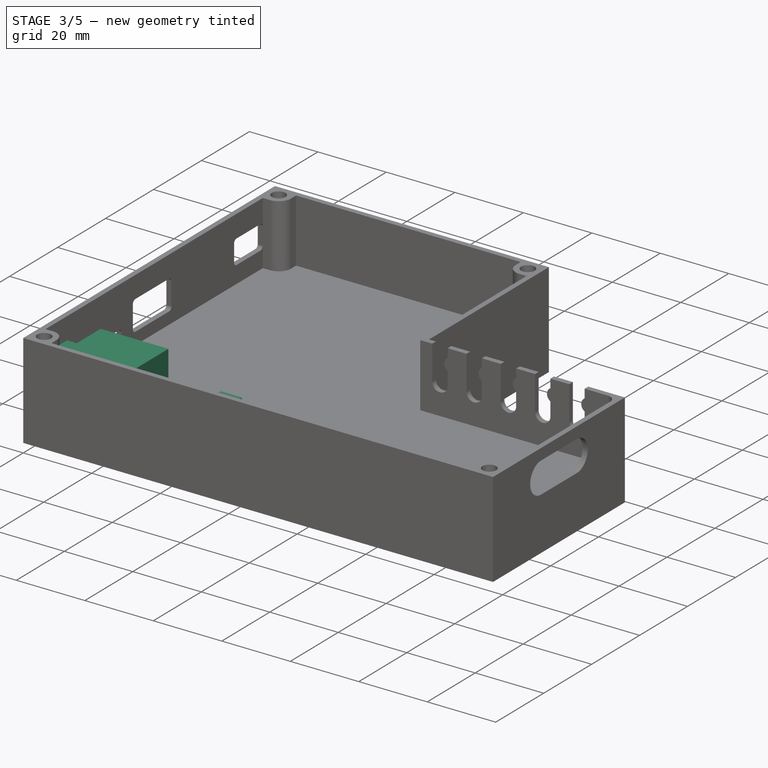
[diagram: stage 3 of 5 — iso view after this stage's code; geometry added in this stage tinted green]
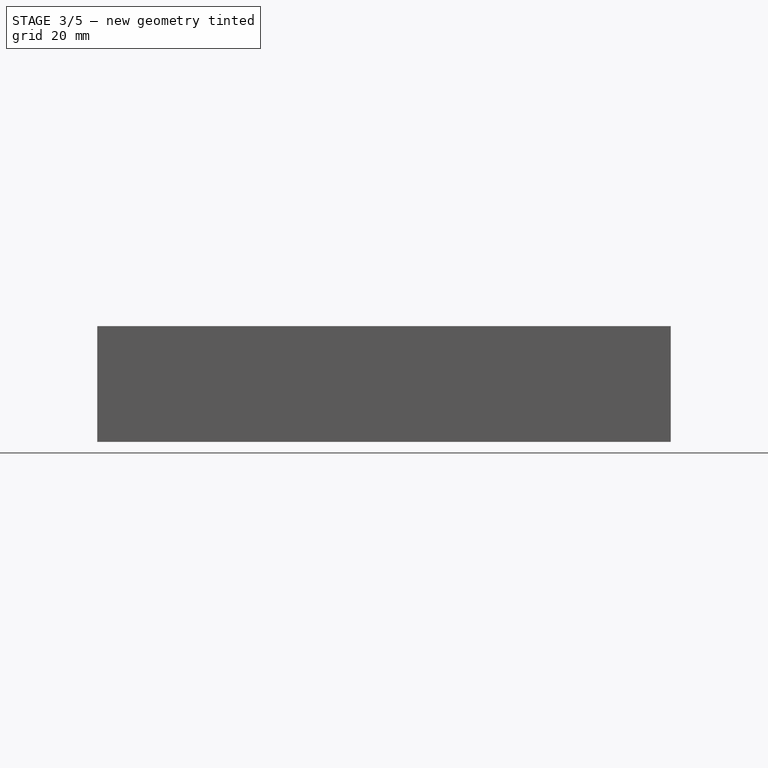
[diagram: stage 3 of 5 — front view after this stage's code; geometry added in this stage tinted green]
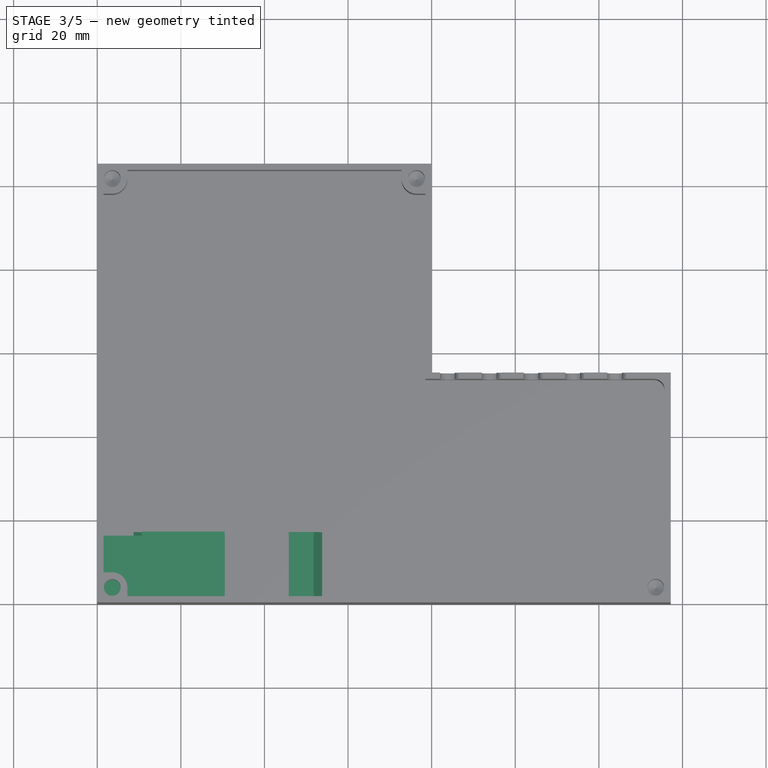
[diagram: stage 3 of 5 — top view after this stage's code; geometry added in this stage tinted green]
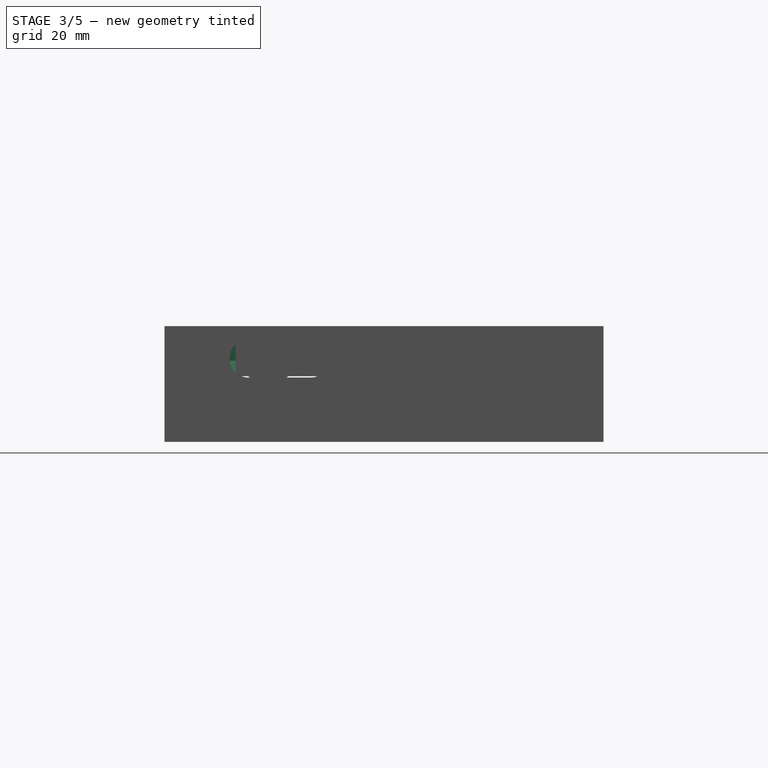
[diagram: stage 3 of 5 — right view after this stage's code; geometry added in this stage tinted green]
FEATURE [PartDesign::Body] Body004  label="ads1115"
  Group = -> [Sketch012,Pad012]
  Origin = -> Origin004
  Placement = pos=(69.3,99.7,-1.7) rot=(0,0,-1;1.5708rad)
  Tip = -> Pad012
FEATURE [Sketcher::SketchObject] Sketch017
  FullyConstrained = true
  MapMode = 5
  Support = -> [XY_Plane006]
  expr: Constraints[10] = <<ss_max>>.width
  expr: Constraints[11] = <<ss_max>>.hole_diameter
  expr: Constraints[12] = <<ss_max>>.hole_x_offset
  expr: Constraints[9] = <<ss_max>>.length
  sketch-geometry (7):
    g0: LineSegment StartX=0 StartY=0 StartZ=0 EndX=32.7 EndY=0 EndZ=0
    g1: LineSegment StartX=32.7 StartY=0 StartZ=0 EndX=32.7 EndY=16.1 EndZ=0
    g2: LineSegment StartX=32.7 StartY=16.1 StartZ=0 EndX=0 EndY=16.1 EndZ=0
    g3: LineSegment StartX=0 StartY=16.1 StartZ=0 EndX=0 EndY=0 EndZ=0
    g4: Circle CenterX=16.7 CenterY=8.05 CenterZ=0 NormalX=0 NormalY=0 NormalZ=1 AngleXU=0 Radius=1.8
    g5: LineSegment StartX=16.7 StartY=8.05 StartZ=0 EndX=16.7 EndY=16.1 EndZ=0
    g6: LineSegment StartX=16.7 StartY=8.05 StartZ=0 EndX=16.7 EndY=0 EndZ=0
  constraints (20):
    c: Coincident(g0,g1)
    c: Coincident(g1,g2)
    c: Coincident(g2,g3)
    c: Coincident(g3,g0)
    c: Horizontal(g0)
    c: Horizontal(g2)
    c: Vertical(g1)
    c: Vertical(g3)
    c: Coincident(g0,g-1)
    c: DistanceX(g2,g2) = 32.7
    c: DistanceY(g1,g1) = 16.1
    c: Diameter(g4) = 3.6
    c: DistanceX(g0,g4) = 16.7
    c: Coincident(g5,g4)
    c: PointOnObject(g5,g2)
    c: Vertical(g5)
    c: Coincident(g6,g4)
    c: PointOnObject(g6,g0)
    c: Vertical(g6)
    c: Equal(g5,g6)
FEATURE [PartDesign::Pad] Pad017
  Direction = (0,0,1)
  Length = 1.7
  Length2 = 10
  Profile = -> Sketch017
  ReferenceAxis = -> Sketch017 [N_Axis]
  Type = 0
  expr: Length = <<ss_max>>.pcb_thickness
FEATURE [Sketcher::SketchObject] Sketch018
  ExternalGeometry = -> [Pad017]
  FullyConstrained = true
  MapMode = 5
  Placement = pos=(0,0,1.7) rot=(0,0,1;0rad)
  Support = -> [Pad017]
  expr: Constraints[10] = <<ss_max>>.terminal_depth
  sketch-geometry (4):
    g0: LineSegment StartX=0 StartY=0 StartZ=0 EndX=11.9 EndY=0 EndZ=0
    g1: LineSegment StartX=11.9 StartY=0 StartZ=0 EndX=11.9 EndY=16.1 EndZ=0
    g2: LineSegment StartX=11.9 StartY=16.1 StartZ=0 EndX=0 EndY=16.1 EndZ=0
    g3: LineSegment StartX=0 StartY=16.1 StartZ=0 EndX=0 EndY=0 EndZ=0
  constraints (11):
    c: Coincident(g0,g1)
    c: Coincident(g1,g2)
    c: Coincident(g2,g3)
    c: Coincident(g3,g0)
    c: Horizontal(g0)
    c: Horizontal(g2)
    c: Vertical(g1)
    c: Vertical(g3)
    c: Coincident(g0,g-1)
    c: PointOnObject(g1,g-3)
    c: DistanceX(g2,g2) = 11.9
FEATURE [PartDesign::Pad] Pad018
  BaseFeature = -> Pad017
  Direction = (0,0,1)
  Length = 11.94
  Length2 = 10
  Profile = -> Sketch018
  ReferenceAxis = -> Sketch018 [N_Axis]
  Type = 0
  expr: Length = <<ss_max>>.terminal_height - <<ss_max>>.pcb_thickness
FEATURE [Sketcher::SketchObject] Sketch008
  ExternalGeometry = -> [Pad005]
  FullyConstrained = true
  MapMode = 5
  Placement = pos=(0,0,1.7) rot=(0,0,1;0rad)
  Support = -> [Pad005]
  sketch-geometry (4):
    g0: LineSegment StartX=53.8 StartY=0 StartZ=0 EndX=45.8 EndY=0 EndZ=0
    g1: LineSegment StartX=45.8 StartY=0 StartZ=0 EndX=45.8 EndY=17 EndZ=0
    g2: LineSegment StartX=45.8 StartY=17 StartZ=0 EndX=53.8 EndY=17 EndZ=0
    g3: LineSegment StartX=53.8 StartY=17 StartZ=0 EndX=53.8 EndY=0 EndZ=0
  constraints (12):
    c: Coincident(g0,g1)
    c: Coincident(g1,g2)
    c: Coincident(g2,g3)
    c: Coincident(g3,g0)
    c: Horizontal(g0)
    c: Horizontal(g2)
    c: Vertical(g1)
    c: Vertical(g3)
    c: PointOnObject(g0,g-1)
    c: PointOnObject(g2,g-3)
    c: DistanceX(g0,g-3) = 3
    c: DistanceX(g2,g2) = 8
FEATURE [PartDesign::Pad] Pad008
  BaseFeature = -> Pad006
  Direction = (0,0,1)
  Length = 10
  Length2 = 10
  Profile = -> Sketch008
  ReferenceAxis = -> Sketch008 [N_Axis]
  Type = 0
  expr: Length = <<ss_relay>>.screw_term_height
FEATURE [PartDesign::Chamfer] Chamfer
  Angle = 45
  Base = -> Pad008 [Edge34]
  BaseFeature = -> Pad008
  ChamferType = 1
  FlipDirection = false
  Size = 4
  Size2 = 2
  SupportTransform = false
  UseAllEdges = false
FEATURE [PartDesign::Chamfer] Chamfer001
  Angle = 45
  Base = -> Chamfer [Edge42]
  BaseFeature = -> Chamfer
  ChamferType = 1
  FlipDirection = false
  Size = 4
  Size2 = 2
  SupportTransform = false
  UseAllEdges = false
FEATURE [Sketcher::SketchObject] Sketch009
  ExternalGeometry = -> [Chamfer001]
  FullyConstrained = true
  MapMode = 5
  Placement = pos=(0,0,0) rot=(1,0,0;3.14159rad)
  Support = -> [Chamfer001]
  sketch-geometry (12):
    g0: LineSegment StartX=2 StartY=-2 StartZ=0 EndX=54.8 EndY=-2 EndZ=0
    g1: LineSegment StartX=54.8 StartY=-2 StartZ=0 EndX=54.8 EndY=-15 EndZ=0
    g2: LineSegment StartX=54.8 StartY=-15 StartZ=0 EndX=2 EndY=-15 EndZ=0
    g3: LineSegment StartX=2 StartY=-15 StartZ=0 EndX=2 EndY=-2 EndZ=0
    g4: LineSegment StartX=2 StartY=-2 StartZ=0 EndX=0 EndY=-2 EndZ=0
    g5: LineSegment StartX=0 StartY=-2 StartZ=0 EndX=0 EndY=0 EndZ=0
    g6: LineSegment StartX=0 StartY=0 StartZ=0 EndX=2 EndY=0 EndZ=0
    g7: LineSegment StartX=2 StartY=0 StartZ=0 EndX=2 EndY=-2 EndZ=0
    g8: LineSegment StartX=54.8 StartY=-15 StartZ=0 EndX=56.8 EndY=-15 EndZ=0
    g9: LineSegment StartX=56.8 StartY=-15 StartZ=0 EndX=56.8 EndY=-17 EndZ=0
    g10: LineSegment StartX=56.8 StartY=-17 StartZ=0 EndX=54.8 EndY=-17 EndZ=0
    g11: LineSegment StartX=54.8 StartY=-17 StartZ=0 EndX=54.8 EndY=-15 EndZ=0
  constraints (32):
    c: Coincident(g0,g1)
    c: Coincident(g1,g2)
    c: Coincident(g2,g3)
    c: Coincident(g3,g0)
    c: Horizontal(g0)
    c: Horizontal(g2)
    c: Vertical(g1)
    c: Vertical(g3)
    c: Coincident(g4,g5)
    c: Coincident(g5,g6)
    c: Coincident(g6,g7)
    c: Coincident(g7,g4)
    c: Horizontal(g4)
    c: Horizontal(g6)
    c: Vertical(g5)
    c: Vertical(g7)
    c: Coincident(g4,g0)
    c: Coincident(g5,g-3)
    c: Coincident(g8,g9)
    c: Coincident(g9,g10)
    c: Coincident(g10,g11)
    c: Coincident(g11,g8)
    c: Horizontal(g8)
    c: Horizontal(g10)
    c: Vertical(g9)
    c: Vertical(g11)
    c: Coincident(g8,g1)
    c: Coincident(g9,g-4)
    c: Equal(g7,g4)
    c: DistanceX(g8,g8) = 2
    c: Equal(g7,g8)
    c: Equal(g11,g8)
FEATURE [PartDesign::Pad] Pad009
  BaseFeature = -> Chamfer001
  Direction = (0,0,-1)
  Length = 2
  Length2 = 10
  Profile = -> Sketch009
  ReferenceAxis = -> Sketch009 [N_Axis]
  Type = 0
FEATURE [Sketcher::SketchObject] Sketch037
  ExternalGeometry = -> [Pad009]
  FullyConstrained = true
  MapMode = 5
  Placement = pos=(0,0,1.7) rot=(0,0,1;0rad)
  Support = -> [Pad009]
  expr: Constraints[10] = <<ss_relay>>.relay_x_width
  sketch-geometry (4):
    g0: LineSegment StartX=10.7 StartY=17 StartZ=0 EndX=30.5 EndY=17 EndZ=0
    g1: LineSegment StartX=30.5 StartY=17 StartZ=0 EndX=30.5 EndY=0 EndZ=0
    g2: LineSegment StartX=30.5 StartY=0 StartZ=0 EndX=10.7 EndY=0 EndZ=0
    g3: LineSegment StartX=10.7 StartY=0 StartZ=0 EndX=10.7 EndY=17 EndZ=0
  constraints (11):
    c: Coincident(g0,g1)
    c: Coincident(g1,g2)
    c: Coincident(g2,g3)
    c: Coincident(g3,g0)
    c: Horizontal(g0)
    c: Horizontal(g2)
    c: Vertical(g1)
    c: Vertical(g3)
    c: Coincident(g0,g-3)
    c: PointOnObject(g1,g-1)
    c: DistanceX(g-1,g0) = 30.5
FEATURE [PartDesign::Pad] Pad028
  BaseFeature = -> Pad009
  Direction = (0,0,1)
  Length = 17.1
  Length2 = 10
  Profile = -> Sketch037
  ReferenceAxis = -> Sketch037 [N_Axis]
  Type = 0
  expr: Length = <<ss_relay>>.height
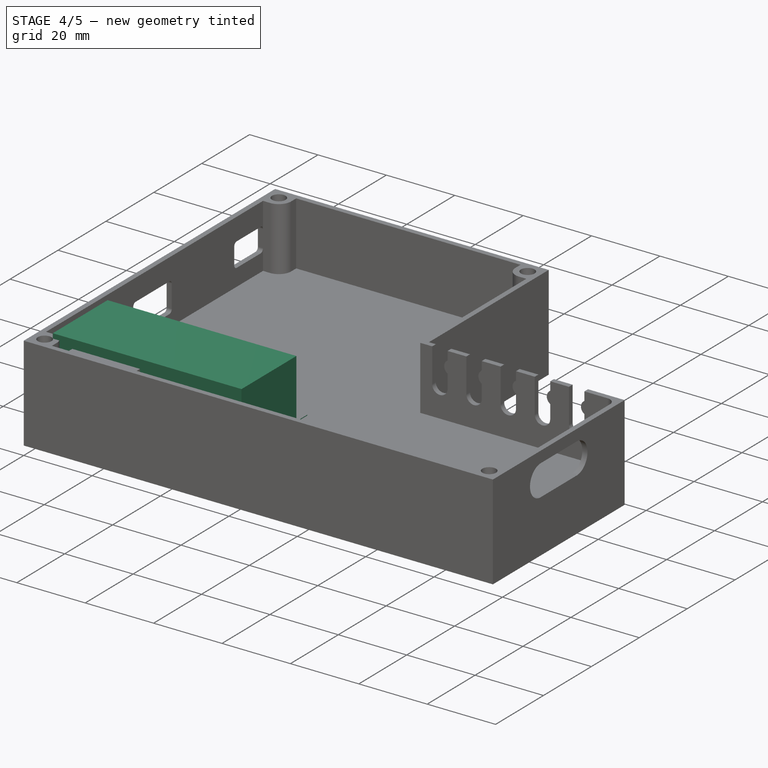
[diagram: stage 4 of 5 — iso view after this stage's code; geometry added in this stage tinted green]
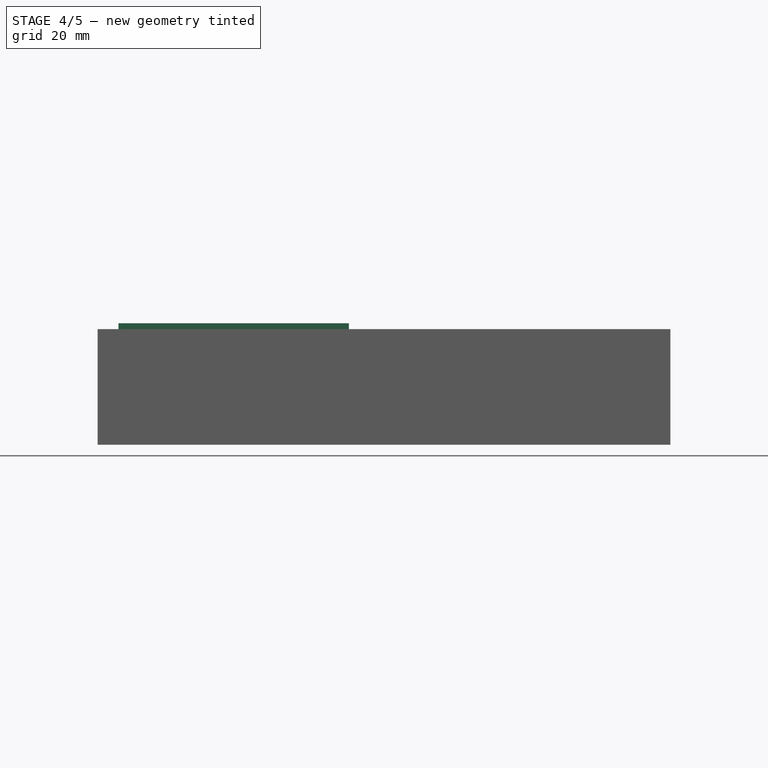
[diagram: stage 4 of 5 — front view after this stage's code; geometry added in this stage tinted green]
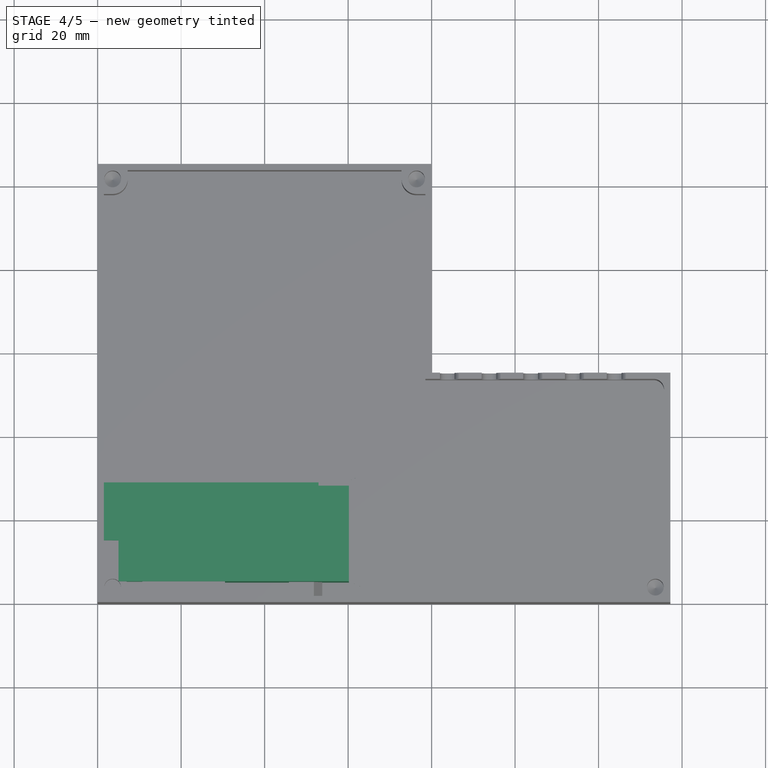
[diagram: stage 4 of 5 — top view after this stage's code; geometry added in this stage tinted green]
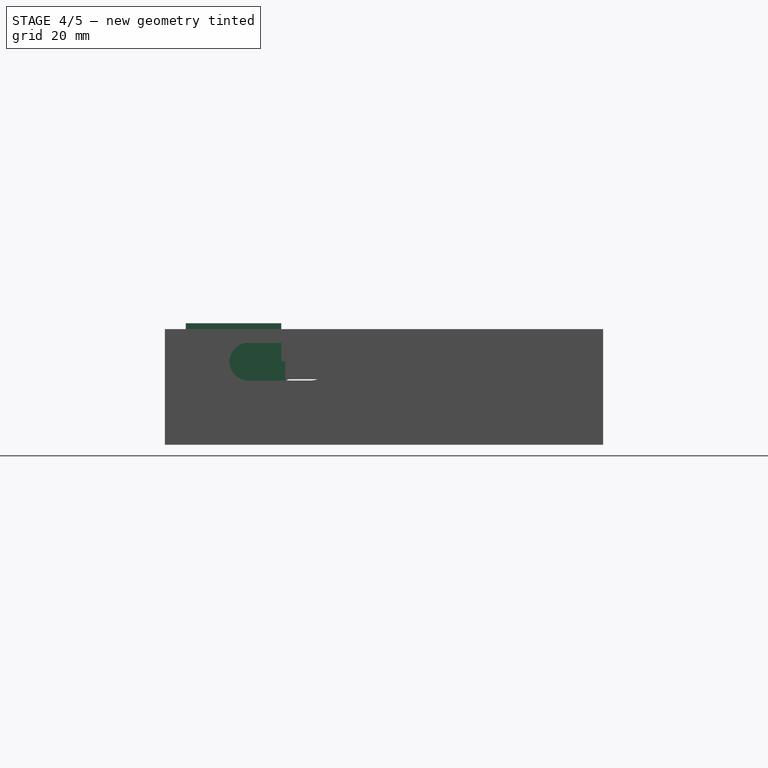
[diagram: stage 4 of 5 — right view after this stage's code; geometry added in this stage tinted green]
FEATURE [PartDesign::Body] Body002  label="dimmer"
  Group = -> [Sketch002,Pad002,Sketch003,Pad003,Sketch004,Pad004,Sketch010,Pad010]
  Origin = -> Origin002
  Placement = pos=(1.5,24,-1.7) rot=(0,0,1;0rad)
  Tip = -> Pad010
  expr: .Placement.Base.x = <<ss_case>>.wall_thickness
FEATURE [Sketcher::SketchObject] Sketch013
  FullyConstrained = true
  MapMode = 5
  expr: Constraints[10] = <<ss_uC>>.breakout_length
  expr: Constraints[11] = <<ss_uC>>.breakout_width
  expr: Constraints[21] = <<ss_uC>>.hole_x_spacing
  expr: Constraints[29] = <<ss_uC>>.hole_diameter
  expr: Constraints[9] = <<ss_uC>>.total_length - <<ss_uC>>.breakout_length
  sketch-geometry (10):
    g0: LineSegment StartX=3.4 StartY=0 StartZ=0 EndX=57.2 EndY=0 EndZ=0
    g1: LineSegment StartX=57.2 StartY=0 StartZ=0 EndX=57.2 EndY=36.8 EndZ=0
    g2: LineSegment StartX=57.2 StartY=36.8 StartZ=0 EndX=3.4 EndY=36.8 EndZ=0
    g3: LineSegment StartX=3.4 StartY=36.8 StartZ=0 EndX=3.4 EndY=0 EndZ=0
    g4: Circle CenterX=9.45 CenterY=18.4 CenterZ=0 NormalX=0 NormalY=0 NormalZ=1 AngleXU=0 Radius=1.275
    g5: Circle CenterX=51.15 CenterY=18.4 CenterZ=0 NormalX=0 NormalY=0 NormalZ=1 AngleXU=0 Radius=1.275
    g6: LineSegment StartX=9.45 StartY=18.4 StartZ=0 EndX=3.4 EndY=18.4 EndZ=0
    g7: LineSegment StartX=51.15 StartY=18.4 StartZ=0 EndX=57.2 EndY=18.4 EndZ=0
    g8: LineSegment StartX=51.15 StartY=18.4 StartZ=0 EndX=51.15 EndY=36.8 EndZ=0
    g9: LineSegment StartX=51.15 StartY=18.4 StartZ=0 EndX=51.15 EndY=0 EndZ=0
  constraints (30):
    c: Coincident(g0,g1)
    c: Coincident(g1,g2)
    c: Coincident(g2,g3)
    c: Coincident(g3,g0)
    c: Horizontal(g0)
    c: Horizontal(g2)
    c: Vertical(g1)
    c: Vertical(g3)
    c: PointOnObject(g0,g-1)
    c: DistanceX(g-1,g0) = 3.4
    c: DistanceX(g0,g0) = 53.8
    c: DistanceY(g1,g1) = 36.8
    c: Equal(g5,g4)
    c: Horizontal(g5,g4)
    c: Coincident(g6,g4)
    c: PointOnObject(g6,g3)
    c: Horizontal(g6)
    c: Coincident(g7,g5)
    c: PointOnObject(g7,g1)
    c: Horizontal(g7)
    c: Equal(g7,g6)
    c: DistanceX(g4,g5) = 41.7
    c: Coincident(g8,g5)
    c: PointOnObject(g8,g2)
    c: Vertical(g8)
    c: Coincident(g9,g5)
    c: PointOnObject(g9,g0)
    c: Vertical(g9)
    c: Equal(g8,g9)
    c: Diameter(g5) = 2.55
FEATURE [PartDesign::Pad] Pad013
  Direction = (0,0,1)
  Length = 1.7
  Length2 = 10
  Profile = -> Sketch013
  ReferenceAxis = -> Sketch013 [N_Axis]
  Type = 0
FEATURE [Sketcher::SketchObject] Sketch014
  ExternalGeometry = -> [Pad013]
  FullyConstrained = true
  MapMode = 5
  Placement = pos=(0,0,1.7) rot=(0,0,1;0rad)
  Support = -> [Pad013]
  expr: Constraints[10] = <<ss_uC>>.stm_width
  expr: Constraints[9] = <<ss_uC>>.stm_length
  sketch-geometry (6):
    g0: LineSegment StartX=0 StartY=7.95 StartZ=0 EndX=52.9 EndY=7.95 EndZ=0
    g1: LineSegment StartX=52.9 StartY=7.95 StartZ=0 EndX=52.9 EndY=28.85 EndZ=0
    g2: LineSegment StartX=52.9 StartY=28.85 StartZ=0 EndX=0 EndY=28.85 EndZ=0
    g3: LineSegment StartX=0 StartY=28.85 StartZ=0 EndX=0 EndY=7.95 EndZ=0
    g4: LineSegment StartX=52.9 StartY=28.85 StartZ=0 EndX=52.9 EndY=36.8 EndZ=0
    g5: LineSegment StartX=52.9 StartY=7.95 StartZ=0 EndX=52.9 EndY=0 EndZ=0
  constraints (18):
    c: Coincident(g0,g1)
    c: Coincident(g1,g2)
    c: Coincident(g2,g3)
    c: Coincident(g3,g0)
    c: Horizontal(g0)
    c: Horizontal(g2)
    c: Vertical(g1)
    c: Vertical(g3)
    c: PointOnObject(g0,g-2)
    c: DistanceX(g2,g2) = 52.9
    c: DistanceY(g1,g1) = 20.9
    c: Coincident(g4,g1)
    c: PointOnObject(g4,g-3)
    c: Vertical(g4)
    c: Coincident(g5,g0)
    c: PointOnObject(g5,g-1)
    c: Vertical(g5)
    c: Equal(g4,g5)
FEATURE [PartDesign::Pad] Pad014
  BaseFeature = -> Pad013
  Direction = (0,0,1)
  Length = 10.6
  Length2 = 10
  Profile = -> Sketch014
  ReferenceAxis = -> Sketch014 [N_Axis]
  Type = 0
  expr: Length = <<ss_uC>>.total_height - 1.7 - <<ss_uC>>.usb_c_height
FEATURE [Sketcher::SketchObject] Sketch015
  ExternalGeometry = -> [Pad014]
  FullyConstrained = true
  MapMode = 5
  Placement = pos=(0,0,12.3) rot=(0,0,1;0rad)
  Support = -> [Pad014]
  sketch-geometry (6):
    g0: LineSegment StartX=0 StartY=14.9 StartZ=0 EndX=7 EndY=14.9 EndZ=0
    g1: LineSegment StartX=7 StartY=14.9 StartZ=0 EndX=7 EndY=21.9 EndZ=0
    g2: LineSegment StartX=7 StartY=21.9 StartZ=0 EndX=0 EndY=21.9 EndZ=0
    g3: LineSegment StartX=0 StartY=21.9 StartZ=0 EndX=0 EndY=14.9 EndZ=0
    g4: LineSegment StartX=7 StartY=21.9 StartZ=0 EndX=7 EndY=28.85 EndZ=0
    g5: LineSegment StartX=7 StartY=14.9 StartZ=0 EndX=7 EndY=7.95 EndZ=0
  constraints (18):
    c: Coincident(g0,g1)
    c: Coincident(g1,g2)
    c: Coincident(g2,g3)
    c: Coincident(g3,g0)
    c: Horizontal(g0)
    c: Horizontal(g2)
    c: Vertical(g1)
    c: Vertical(g3)
    c: PointOnObject(g0,g-3)
    c: DistanceX(g0,g0) = 7
    c: DistanceY(g1,g1) = 7
    c: PointOnObject(g4,g-4)
    c: Vertical(g4)
    c: Coincident(g5,g0)
    c: PointOnObject(g5,g-5)
    c: Vertical(g5)
    c: Equal(g4,g5)
    c: Coincident(g4,g1)
FEATURE [PartDesign::Pad] Pad015
  BaseFeature = -> Pad014
  Direction = (0,0,1)
  Length = 3.2
  Length2 = 10
  Profile = -> Sketch015
  ReferenceAxis = -> Sketch015 [N_Axis]
  Type = 0
  expr: Length = <<ss_uC>>.usb_c_height
FEATURE [PartDesign::Body] Body005  label="uController"
  Group = -> [Sketch013,Pad013,Sketch014,Pad014,Sketch015,Pad015,Fillet,Sketch016,Pad016]
  Origin = -> Origin005
  Placement = pos=(135.5,43.4,-1.7) rot=(0,0,1;3.14159rad)
  Tip = -> Pad016
  expr: .Placement.Base.y = (<<ss_silvia>>.solenoid_cutout_y_offset - 2) / 2 + <<ss_uC>>.breakout_width / 2 - <<ss_case>>.wall_thickness
FEATURE [Sketcher::SketchObject] Sketch
  FullyConstrained = true
  MapMode = 5
  Support = -> [XY_Plane001]
  expr: Constraints[10] = Spreadsheet.length
  expr: Constraints[24] = Spreadsheet.hole_diameter
  expr: Constraints[25] = Spreadsheet.hole_y_spacing
  expr: Constraints[26] = Spreadsheet.hole_x_spacing
  expr: Constraints[31] = Spreadsheet.hole_x_offset
  expr: Constraints[33] = Spreadsheet.hole_y_offset
  expr: Constraints[9] = Spreadsheet.width
  sketch-geometry (13):
    g0: LineSegment StartX=0 StartY=0 StartZ=0 EndX=65.2 EndY=0 EndZ=0
    g1: LineSegment StartX=65.2 StartY=0 StartZ=0 EndX=65.2 EndY=32.9 EndZ=0
    g2: LineSegment StartX=65.2 StartY=32.9 StartZ=0 EndX=0 EndY=32.9 EndZ=0
    g3: LineSegment StartX=0 StartY=32.9 StartZ=0 EndX=0 EndY=0 EndZ=0
    g4: Circle CenterX=2.5 CenterY=28.7 CenterZ=0 NormalX=0 NormalY=0 NormalZ=1 AngleXU=0 Radius=1.3
    g5: Circle CenterX=61.7 CenterY=28.7 CenterZ=0 NormalX=0 NormalY=0 NormalZ=1 AngleXU=0 Radius=1.3
    g6: Circle CenterX=2.5 CenterY=3.5 CenterZ=0 NormalX=0 NormalY=0 NormalZ=1 AngleXU=0 Radius=1.3
    g7: Circle CenterX=61.7 CenterY=3.5 CenterZ=0 NormalX=0 NormalY=0 NormalZ=1 AngleXU=0 Radius=1.3
    g8: LineSegment StartX=2.5 StartY=28.7 StartZ=0 EndX=2.5 EndY=3.5 EndZ=0
    g9: LineSegment StartX=61.7 StartY=3.5 StartZ=0 EndX=61.7 EndY=28.7 EndZ=0
    g10: LineSegment StartX=61.7 StartY=28.7 StartZ=0 EndX=2.5 EndY=28.7 EndZ=0
    g11: LineSegment StartX=2.5 StartY=3.5 StartZ=0 EndX=2.5 EndY=0 EndZ=0
    g12: LineSegment StartX=2.5 StartY=3.5 StartZ=0 EndX=0 EndY=3.5 EndZ=0
  constraints (35):
    c: Coincident(g0,g1)
    c: Coincident(g1,g2)
    c: Coincident(g2,g3)
    c: Coincident(g3,g0)
    c: Horizontal(g0)
    c: Horizontal(g2)
    c: Vertical(g1)
    c: Vertical(g3)
    c: Coincident(g0,g-1)
    c: DistanceY(g1,g1) = 32.9
    c: DistanceX(g2,g2) = 65.2
    c: Coincident(g8,g4)
    c: Coincident(g8,g6)
    c: Vertical(g8)
    c: Coincident(g9,g7)
    c: Coincident(g9,g5)
    c: Coincident(g10,g5)
    c: Coincident(g10,g4)
    c: Horizontal(g10)
    c: Equal(g9,g8)
    c: Vertical(g9)
    c: Equal(g6,g4)
    c: Equal(g6,g5)
    c: Equal(g6,g7)
    c: Diameter(g6) = 2.6
    c: DistanceY(g6,g4) = 25.2
    c: DistanceX(g10,g10) = 59.2
    c: Coincident(g11,g6)
    c: PointOnObject(g11,g0)
    c: Vertical(g11)
    c: PointOnObject(g12,g3)
    c: DistanceX(g12,g12) = 2.5
    c: Coincident(g6,g12)
    c: DistanceY(g11,g11) = 3.5
    c: Horizontal(g12)
FEATURE [PartDesign::Pad] Pad
  Direction = (0,0,1)
  Length = 1.7
  Length2 = 10
  Profile = -> Sketch
  ReferenceAxis = -> Sketch [N_Axis]
  Type = 0
FEATURE [Sketcher::SketchObject] Sketch001
  ExternalGeometry = -> [Pad]
  FullyConstrained = true
  MapMode = 5
  Placement = pos=(0,0,1.7) rot=(0,0,1;0rad)
  Support = -> [Pad]
  sketch-geometry (8):
    g0: LineSegment StartX=5 StartY=27.9 StartZ=0 EndX=60.2 EndY=27.9 EndZ=0
    g1: LineSegment StartX=60.2 StartY=27.9 StartZ=0 EndX=60.2 EndY=5 EndZ=0
    g2: LineSegment StartX=60.2 StartY=5 StartZ=0 EndX=5 EndY=5 EndZ=0
    g3: LineSegment StartX=5 StartY=5 StartZ=0 EndX=5 EndY=27.9 EndZ=0
    g4: LineSegment StartX=5 StartY=5 StartZ=0 EndX=0 EndY=5 EndZ=0
    g5: LineSegment StartX=60.2 StartY=5 StartZ=0 EndX=65.2 EndY=5 EndZ=0
    g6: LineSegment StartX=5 StartY=5 StartZ=0 EndX=5 EndY=0 EndZ=0
    g7: LineSegment StartX=5 StartY=27.9 StartZ=0 EndX=5 EndY=32.9 EndZ=0
  constraints (24):
    c: Coincident(g0,g1)
    c: Coincident(g1,g2)
    c: Coincident(g2,g3)
    c: Coincident(g3,g0)
    c: Horizontal(g0)
    c: Horizontal(g2)
    c: Vertical(g1)
    c: Vertical(g3)
    c: Coincident(g4,g2)
    c: PointOnObject(g4,g-3)
    c: Coincident(g5,g1)
    c: PointOnObject(g5,g-4)
    c: Horizontal(g5)
    c: Coincident(g6,g2)
    c: PointOnObject(g6,g-6)
    c: Coincident(g7,g0)
    c: PointOnObject(g7,g-5)
    c: Vertical(g7)
    c: Vertical(g6)
    c: Horizontal(g4)
    c: Equal(g7,g6)
    c: Equal(g4,g5)
    c: DistanceY(g7,g7) = 5
    c: DistanceX(g4,g4) = 5
FEATURE [PartDesign::Pad] Pad001
  BaseFeature = -> Pad
  Direction = (0,0,1)
  Length = 19.7
  Length2 = 10
  Profile = -> Sketch001
  ReferenceAxis = -> Sketch001 [N_Axis]
  Type = 0
  expr: Length = Spreadsheet.height
FEATURE [Sketcher::SketchObject] Sketch011
  ExternalGeometry = -> [Pad001]
  FullyConstrained = true
  MapMode = 5
  Placement = pos=(0,0,0) rot=(1,0,0;3.14159rad)
  Support = -> [Pad001]
  sketch-geometry (4):
    g0: LineSegment StartX=5 StartY=0 StartZ=0 EndX=60.2 EndY=0 EndZ=0
    g1: LineSegment StartX=60.2 StartY=0 StartZ=0 EndX=60.2 EndY=-32.9 EndZ=0
    g2: LineSegment StartX=60.2 StartY=-32.9 StartZ=0 EndX=5 EndY=-32.9 EndZ=0
    g3: LineSegment StartX=5 StartY=-32.9 StartZ=0 EndX=5 EndY=0 EndZ=0
  constraints (12):
    c: Coincident(g0,g1)
    c: Coincident(g1,g2)
    c: Coincident(g2,g3)
    c: Coincident(g3,g0)
    c: Horizontal(g0)
    c: Horizontal(g2)
    c: Vertical(g1)
    c: Vertical(g3)
    c: PointOnObject(g0,g-1)
    c: PointOnObject(g1,g-5)
    c: DistanceX(g1,g-5) = 5
    c: DistanceX(g-5,g2) = 5
FEATURE [PartDesign::Pad] Pad011
  BaseFeature = -> Pad001
  Direction = (0,0,-1)
  Length = 2.4
  Length2 = 10
  Profile = -> Sketch011
  ReferenceAxis = -> Sketch011 [N_Axis]
  Type = 0
FEATURE [PartDesign::Body] Body001  label="PSU"
  Group = -> [Sketch,Pad,Sketch001,Pad001,Sketch011,Pad011]
  Origin = -> Origin001
  Placement = pos=(1.5,66.7,-1.7) rot=(0,0,1;0rad)
  Tip = -> Pad011
  expr: .Placement.Base.x = <<ss_case>>.wall_thickness
FEATURE [Spreadsheet::Sheet] Spreadsheet007  label="ss_silvia"
  cells = A1=solenoid_cutout_width; B1(solenoid_cutout_width)=50; A2=solenoid_cutout_x_offset; B2(solenoid_cutout_x_offset)=133; A3=solenoid_cutout_y_offset; B3(solenoid_cutout_y_offset)=55; A4=cable_to_cutout_x; B4(cable_to_cutout_x)=80
FEATURE [Spreadsheet::Sheet] Spreadsheet008  label="ss_proto"
  cells = A1=width; B1(width)==20 + 0.2; A2=length; B2(length)==40 + 0.2
FEATURE [Sketcher::SketchObject] Sketch032
  FullyConstrained = true
  MapMode = 5
  Support = -> [XY_Plane010]
  expr: Constraints[10] = <<ss_proto>>.length
  expr: Constraints[35] = 1.1 + 1.8 / 2
  expr: Constraints[9] = <<ss_proto>>.width
  sketch-geometry (14):
    g0: LineSegment StartX=0 StartY=0 StartZ=0 EndX=20.2 EndY=0 EndZ=0
    g1: LineSegment StartX=20.2 StartY=0 StartZ=0 EndX=20.2 EndY=40.2 EndZ=0
    g2: LineSegment StartX=20.2 StartY=40.2 StartZ=0 EndX=0 EndY=40.2 EndZ=0
    g3: LineSegment StartX=0 StartY=40.2 StartZ=0 EndX=0 EndY=0 EndZ=0
    g4: Circle CenterX=2 CenterY=2 CenterZ=0 NormalX=0 NormalY=0 NormalZ=1 AngleXU=0 Radius=0.9
    g5: Circle CenterX=18.2 CenterY=2 CenterZ=0 NormalX=0 NormalY=0 NormalZ=1 AngleXU=0 Radius=0.9
    g6: LineSegment StartX=2 StartY=2 StartZ=0 EndX=0 EndY=2 EndZ=0
    g7: LineSegment StartX=0 StartY=2 StartZ=0 EndX=0 EndY=0 EndZ=0
    g8: LineSegment StartX=0 StartY=0 StartZ=0 EndX=2 EndY=0 EndZ=0
    g9: LineSegment StartX=2 StartY=0 StartZ=0 EndX=2 EndY=2 EndZ=0
    g10: LineSegment StartX=18.2 StartY=2 StartZ=0 EndX=20.2 EndY=2 EndZ=0
    g11: LineSegment StartX=20.2 StartY=2 StartZ=0 EndX=20.2 EndY=0 EndZ=0
    g12: LineSegment StartX=20.2 StartY=0 StartZ=0 EndX=18.2 EndY=0 EndZ=0
    g13: LineSegment StartX=18.2 StartY=0 StartZ=0 EndX=18.2 EndY=2 EndZ=0
  constraints (37):
    c: Coincident(g0,g1)
    c: Coincident(g1,g2)
    c: Coincident(g2,g3)
    c: Coincident(g3,g0)
    c: Horizontal(g0)
    c: Horizontal(g2)
    c: Vertical(g1)
    c: Vertical(g3)
    c: Coincident(g0,g-1)
    c: DistanceX(g0,g0) = 20.2
    c: DistanceY(g1,g1) = 40.2
    c: Equal(g5,g4)
    c: Diameter(g5) = 1.8
    c: Coincident(g6,g7)
    c: Coincident(g7,g8)
    c: Coincident(g8,g9)
    c: Coincident(g9,g6)
    c: Horizontal(g6)
    c: Horizontal(g8)
    c: Vertical(g7)
    c: Vertical(g9)
    c: Coincident(g6,g4)
    c: Coincident(g7,g0)
    c: Coincident(g10,g11)
    c: Coincident(g11,g12)
    c: Coincident(g12,g13)
    c: Coincident(g13,g10)
    c: Horizontal(g10)
    c: Horizontal(g12)
    c: Vertical(g11)
    c: Vertical(g13)
    c: Coincident(g10,g5)
    c: Coincident(g11,g0)
    c: Equal(g13,g9)
    c: Equal(g6,g10)
    c: DistanceY(g13,g13) = 2
    c: DistanceX(g10,g10) = 2
FEATURE [PartDesign::Pad] Pad025
  Direction = (0,0,1)
  Length = 1.7
  Length2 = 10
  Profile = -> Sketch032
  ReferenceAxis = -> Sketch032 [N_Axis]
  Type = 0
FEATURE [PartDesign::Body] Body008  label="proto_board"
  Group = -> [Sketch032,Pad025]
  Origin = -> Origin010
  Placement = pos=(60,1.5,0) rot=(0,0,1;0rad)
  Tip = -> Pad025
  expr: .Placement.Base.y = <<ss_case>>.wall_thickness
FEATURE [Sketcher::SketchObject] Sketch033  label="case_master"
  FullyConstrained = true
  MapMode = 5
  Support = -> [XY_Plane]
  expr: Constraints[101] = <<ss_dimmer>>.width
  expr: Constraints[102] = <<ss_dimmer>>.length
  expr: Constraints[112] = <<ss_max>>.length
  expr: Constraints[113] = <<ss_max>>.width
  expr: Constraints[114] = <<ss_case>>.wall_thickness
  expr: Constraints[115] = <<ss_case>>.wall_thickness
  expr: Constraints[125] = <<ss_psu>>.length
  expr: Constraints[126] = <<ss_psu>>.width
  expr: Constraints[136] = <<ss_ads>>.length
  expr: Constraints[137] = <<ss_ads>>.width
  expr: Constraints[148] = <<ss_case>>.wall_thickness
  expr: Constraints[149] = <<ss_proto>>.width
  expr: Constraints[191] = <<ss_case>>.external_wall_offset
  expr: Constraints[207] = <<ss_case>>.insert_od
  expr: Constraints[32] = <<ss_case>>.wall_thickness
  expr: Constraints[33] = <<ss_case>>.wall_thickness
  expr: Constraints[34] = <<ss_case>>.wall_thickness
  expr: Constraints[35] = <<ss_case>>.wall_thickness
  expr: Constraints[36] = <<ss_case>>.wall_thickness
  expr: Constraints[42] = <<ss_case>>.wall_thickness
  expr: Constraints[61] = <<ss_uC>>.total_length
  expr: Constraints[62] = <<ss_silvia>>.solenoid_cutout_width
  expr: Constraints[63] = <<ss_silvia>>.solenoid_cutout_y_offset
  expr: Constraints[64] = <<ss_silvia>>.cable_to_cutout_x
  expr: Constraints[74] = <<ss_uC>>.total_length
  expr: Constraints[75] = <<ss_uC>>.breakout_width
  expr: Constraints[90] = <<ss_relay>>.width
  expr: Constraints[91] = <<ss_relay>>.length
  sketch-geometry (87):
    g0: LineSegment StartX=0 StartY=105 StartZ=0 EndX=80 EndY=105 EndZ=0
    g1: LineSegment StartX=80 StartY=105 StartZ=0 EndX=80 EndY=55 EndZ=0
    g2: LineSegment StartX=80 StartY=55 StartZ=0 EndX=137.2 EndY=55 EndZ=0
    g3: LineSegment StartX=137.2 StartY=55 StartZ=0 EndX=137.2 EndY=0 EndZ=0
    g4: LineSegment StartX=137.2 StartY=0 StartZ=0 EndX=0 EndY=0 EndZ=0
    g5: LineSegment StartX=0 StartY=0 StartZ=0 EndX=0 EndY=105 EndZ=0
    g6: LineSegment StartX=7.2 StartY=103.5 StartZ=0 EndX=72.8 EndY=103.5 EndZ=0
    g7: LineSegment StartX=78.5 StartY=97.8 StartZ=0 EndX=78.5 EndY=53.5 EndZ=0
    g8: LineSegment StartX=78.5 StartY=53.5 StartZ=0 EndX=135.7 EndY=53.5 EndZ=0
    g9: LineSegment StartX=135.7 StartY=53.5 StartZ=0 EndX=135.7 EndY=7.2 EndZ=0
    g10: LineSegment StartX=130 StartY=1.5 StartZ=0 EndX=7.2 EndY=1.5 EndZ=0
    g11: LineSegment StartX=1.5 StartY=7.2 StartZ=0 EndX=1.5 EndY=97.8 EndZ=0
    g12: ArcOfCircle CenterX=3.6 CenterY=101.4 CenterZ=0 NormalX=0 NormalY=0 NormalZ=1 AngleXU=0 Radius=3.6 StartAngle=4.71239 EndAngle=6.28319
    g13: ArcOfCircle CenterX=3.6 CenterY=3.6 CenterZ=0 NormalX=0 NormalY=0 NormalZ=1 AngleXU=0 Radius=3.6 StartAngle=1.045e-13 EndAngle=1.5708
    g14: LineSegment StartX=3.6 StartY=97.8 StartZ=0 EndX=1.5 EndY=97.8 EndZ=0
    g15: LineSegment StartX=7.2 StartY=101.4 StartZ=0 EndX=7.2 EndY=103.5 EndZ=0
    g16: LineSegment StartX=76.4 StartY=97.8 StartZ=0 EndX=78.5 EndY=97.8 EndZ=0
    g17: LineSegment StartX=133.6 StartY=7.2 StartZ=0 EndX=135.7 EndY=7.2 EndZ=0
    g18: LineSegment StartX=7.2 StartY=3.6 StartZ=0 EndX=7.2 EndY=1.5 EndZ=0
    g19: LineSegment StartX=3.6 StartY=7.2 StartZ=0 EndX=1.5 EndY=7.2 EndZ=0
    g20: LineSegment StartX=130 StartY=1.5 StartZ=0 EndX=130 EndY=3.6 EndZ=0
    g21: ArcOfCircle CenterX=133.6 CenterY=3.6 CenterZ=0 NormalX=0 NormalY=0 NormalZ=1 AngleXU=0 Radius=3.6 StartAngle=1.5708 EndAngle=3.14159
    g22: LineSegment StartX=72.8 StartY=103.5 StartZ=0 EndX=72.8 EndY=101.4 EndZ=0
    g23: ArcOfCircle CenterX=76.4 CenterY=101.4 CenterZ=0 NormalX=0 NormalY=0 NormalZ=1 AngleXU=0 Radius=3.6 StartAngle=3.14159 EndAngle=4.71239
    g24: LineSegment StartX=135.7 StartY=9.1 StartZ=0 EndX=78.5 EndY=9.1 EndZ=0
    g25: LineSegment StartX=78.5 StartY=9.1 StartZ=0 EndX=78.5 EndY=45.9 EndZ=0
    g26: LineSegment StartX=78.5 StartY=45.9 StartZ=0 EndX=135.7 EndY=45.9 EndZ=0
    g27: LineSegment StartX=135.7 StartY=45.9 StartZ=0 EndX=135.7 EndY=9.1 EndZ=0
    g28: LineSegment StartX=135.7 StartY=45.9 StartZ=0 EndX=137.2 EndY=55 EndZ=0
    g29: LineSegment StartX=135.7 StartY=9.1 StartZ=0 EndX=137.2 EndY=0 EndZ=0
    g30: LineSegment StartX=1.5 StartY=7.2 StartZ=0 EndX=58.3 EndY=7.2 EndZ=0
    g31: LineSegment StartX=58.3 StartY=7.2 StartZ=0 EndX=58.3 EndY=24.2 EndZ=0
    g32: LineSegment StartX=58.3 StartY=24.2 StartZ=0 EndX=1.5 EndY=24.2 EndZ=0
    g33: LineSegment StartX=1.5 StartY=24.2 StartZ=0 EndX=1.5 EndY=7.2 EndZ=0
    g34: LineSegment StartX=1.5 StartY=25.7 StartZ=0 EndX=52 EndY=25.7 EndZ=0
    g35: LineSegment StartX=52 StartY=25.7 StartZ=0 EndX=52 EndY=42.1 EndZ=0
    g36: LineSegment StartX=52 StartY=42.1 StartZ=0 EndX=1.5 EndY=42.1 EndZ=0
    g37: LineSegment StartX=1.5 StartY=42.1 StartZ=0 EndX=1.5 EndY=25.7 EndZ=0
    g38: LineSegment StartX=1.5 StartY=43.6 StartZ=0 EndX=34.2 EndY=43.6 EndZ=0
    g39: LineSegment StartX=34.2 StartY=43.6 StartZ=0 EndX=34.2 EndY=59.7 EndZ=0
    g40: LineSegment StartX=34.2 StartY=59.7 StartZ=0 EndX=1.5 EndY=59.7 EndZ=0
    g41: LineSegment StartX=1.5 StartY=59.7 StartZ=0 EndX=1.5 EndY=43.6 EndZ=0
    g42: LineSegment StartX=1.5 StartY=97.8 StartZ=0 EndX=66.7 EndY=97.8 EndZ=0
    g43: LineSegment StartX=66.7 StartY=97.8 StartZ=0 EndX=66.7 EndY=64.9 EndZ=0
    g44: LineSegment StartX=66.7 StartY=64.9 StartZ=0 EndX=1.5 EndY=64.9 EndZ=0
    g45: LineSegment StartX=1.5 StartY=64.9 StartZ=0 EndX=1.5 EndY=97.8 EndZ=0
    g46: LineSegment StartX=78.5 StartY=97.8 StartZ=0 EndX=69.3 EndY=97.8 EndZ=0
    g47: LineSegment StartX=69.3 StartY=97.8 StartZ=0 EndX=69.3 EndY=71.9 EndZ=0
    g48: LineSegment StartX=69.3 StartY=71.9 StartZ=0 EndX=78.5 EndY=71.9 EndZ=0
    g49: LineSegment StartX=78.5 StartY=71.9 StartZ=0 EndX=78.5 EndY=97.8 EndZ=0
    g50: LineSegment StartX=70.9 StartY=43.6 StartZ=0 EndX=35.7 EndY=43.6 EndZ=0
    g51: LineSegment StartX=35.7 StartY=43.6 StartZ=0 EndX=35.7 EndY=63.8 EndZ=0
    g52: LineSegment StartX=35.7 StartY=63.8 StartZ=0 EndX=70.9 EndY=63.8 EndZ=0
    g53: LineSegment StartX=70.9 StartY=63.8 StartZ=0 EndX=70.9 EndY=43.6 EndZ=0
    g54: GeomPoint X=137.2 Y=27.5 Z=0
    g55: LineSegment StartX=1.5 StartY=7.2 StartZ=0 EndX=0 EndY=7.2 EndZ=0
    g56: LineSegment StartX=0 StartY=7.2 StartZ=0 EndX=0 EndY=24.2 EndZ=0
    g57: LineSegment StartX=0 StartY=24.2 StartZ=0 EndX=1.5 EndY=24.2 EndZ=0
    g58: LineSegment StartX=1.5 StartY=24.2 StartZ=0 EndX=1.5 EndY=7.2 EndZ=0
    g59: LineSegment StartX=0 StartY=42.1 StartZ=0 EndX=1.5 EndY=42.1 EndZ=0
    g60: LineSegment StartX=1.5 StartY=42.1 StartZ=0 EndX=1.5 EndY=25.7 EndZ=0
    g61: LineSegment StartX=1.5 StartY=25.7 StartZ=0 EndX=0 EndY=25.7 EndZ=0
    g62: LineSegment StartX=0 StartY=25.7 StartZ=0 EndX=0 EndY=42.1 EndZ=0
    g63: LineSegment StartX=0 StartY=43.6 StartZ=0 EndX=1.5 EndY=43.6 EndZ=0
    g64: LineSegment StartX=1.5 StartY=43.6 StartZ=0 EndX=1.5 EndY=59.7 EndZ=0
    g65: LineSegment StartX=1.5 StartY=59.7 StartZ=0 EndX=0 EndY=59.7 EndZ=0
    g66: LineSegment StartX=0 StartY=59.7 StartZ=0 EndX=0 EndY=43.6 EndZ=0
    g67: Circle CenterX=3.6 CenterY=101.4 CenterZ=0 NormalX=0 NormalY=0 NormalZ=1 AngleXU=0 Radius=2.1
    g68: LineSegment StartX=0 StartY=105 StartZ=0 EndX=7.2 EndY=105 EndZ=0
    g69: LineSegment StartX=7.2 StartY=105 StartZ=0 EndX=7.2 EndY=97.8 EndZ=0
    g70: LineSegment StartX=7.2 StartY=97.8 StartZ=0 EndX=0 EndY=97.8 EndZ=0
    g71: LineSegment StartX=0 StartY=97.8 StartZ=0 EndX=0 EndY=105 EndZ=0
    g72: LineSegment StartX=80 StartY=105 StartZ=0 EndX=72.8 EndY=105 EndZ=0
    g73: LineSegment StartX=72.8 StartY=105 StartZ=0 EndX=72.8 EndY=97.8 EndZ=0
    g74: LineSegment StartX=72.8 StartY=97.8 StartZ=0 EndX=80 EndY=97.8 EndZ=0
    g75: LineSegment StartX=80 StartY=97.8 StartZ=0 EndX=80 EndY=105 EndZ=0
    g76: Circle CenterX=76.4 CenterY=101.4 CenterZ=0 NormalX=0 NormalY=0 NormalZ=1 AngleXU=0 Radius=2.1
    g77: LineSegment StartX=0 StartY=0 StartZ=0 EndX=7.2 EndY=0 EndZ=0
    g78: LineSegment StartX=7.2 StartY=0 StartZ=0 EndX=7.2 EndY=7.2 EndZ=0
    g79: LineSegment StartX=7.2 StartY=7.2 StartZ=0 EndX=0 EndY=7.2 EndZ=0
    g80: LineSegment StartX=0 StartY=7.2 StartZ=0 EndX=0 EndY=0 EndZ=0
    g81: LineSegment StartX=137.2 StartY=0 StartZ=0 EndX=130 EndY=0 EndZ=0
    g82: LineSegment StartX=130 StartY=0 StartZ=0 EndX=130 EndY=7.2 EndZ=0
    g83: LineSegment StartX=130 StartY=7.2 StartZ=0 EndX=137.2 EndY=7.2 EndZ=0
    g84: LineSegment StartX=137.2 StartY=7.2 StartZ=0 EndX=137.2 EndY=0 EndZ=0
    g85: Circle CenterX=3.6 CenterY=3.6 CenterZ=0 NormalX=0 NormalY=0 NormalZ=1 AngleXU=0 Radius=2.1
    g86: Circle CenterX=133.6 CenterY=3.6 CenterZ=0 NormalX=0 NormalY=0 NormalZ=1 AngleXU=0 Radius=2.1
  constraints (235):
    c: Coincident(g0,g1)
    c: Coincident(g1,g2)
    c: Coincident(g2,g3)
    c: Coincident(g3,g4)
    c: Coincident(g4,g5)
    c: Coincident(g5,g0)
    c: Horizontal(g6)
    c: Vertical(g7)
    c: Coincident(g7,g8)
    c: Horizontal(g8)
    c: Coincident(g8,g9)
    c: Vertical(g9)
    c: Horizontal(g10)
    c: Vertical(g11)
    c: Horizontal(g14)
    c: Horizontal(g16)
    c: Vertical(g15)
    c: Horizontal(g17)
    c: Vertical(g18)
    c: Horizontal(g19)
    c: Tangent(g13,g18) = 1.5708
    c: Tangent(g13,g19) = -1.5708
    c: Coincident(g11,g19)
    c: Coincident(g10,g18)
    c: Tangent(g12,g15) = -1.5708
    c: Coincident(g6,g15)
    c: Tangent(g12,g14) = 1.5708
    c: Coincident(g11,g14)
    c: Coincident(g7,g16)
    c: Coincident(g9,g17)
    c: Equal(g15,g14)
    c: Equal(g19,g18)
    c: DistanceY(g6,g0) = 1.5
    c: DistanceY(g4,g10) = 1.5
    c: DistanceX(g7,g0) = 1.5
    c: DistanceX(g4,g11) = 1.5
    c: DistanceY(g8,g2) = 1.5
    c: Coincident(g20,g10)
    c: Vertical(g20)
    c: Equal(g17,g20)
    c: Tangent(g21,g20) = 1.5708
    c: Tangent(g21,g17) = 1.5708
    c: DistanceX(g9,g3) = 1.5
    c: Equal(g17,g18)
    c: Equal(g21,g13)
    c: Coincident(g22,g6)
    c: Equal(g22,g16)
    c: Equal(g22,g15)
    c: Tangent(g23,g22) = -1.5708
    c: Tangent(g23,g16) = -1.5708
    c: Equal(g23,g12)
    c: Vertical(g22)
    c: Equal(g13,g12)
    c: Equal(g18,g14)
    c: Coincident(g4,g-1)
    c: Vertical(g3)
    c: Horizontal(g4)
    c: Vertical(g1)
    c: Horizontal(g2)
    c: Vertical(g5)
    c: Horizontal(g0)
    c: DistanceX(g2,g2) = 57.2
    c: DistanceY(g1,g1) = 50
    c: DistanceY(g3,g3) = 55
    c: DistanceX(g0,g0) = 80
    c: Coincident(g24,g25)
    c: Coincident(g25,g26)
    c: Coincident(g26,g27)
    c: Coincident(g27,g24)
    c: Horizontal(g24)
    c: Horizontal(g26)
    c: Vertical(g25)
    c: Vertical(g27)
    c: PointOnObject(g26,g9)
    c: DistanceX(g26,g26) = 57.2
    c: DistanceY(g25,g25) = 36.8
    c: Coincident(g28,g26)
    c: Coincident(g28,g2)
    c: Coincident(g29,g24)
    c: Coincident(g29,g3)
    c: Equal(g29,g28)
    c: Coincident(g30,g31)
    c: Coincident(g31,g32)
    c: Coincident(g32,g33)
    c: Coincident(g33,g30)
    c: Horizontal(g30)
    c: Horizontal(g32)
    c: Vertical(g31)
    c: Vertical(g33)
    c: Coincident(g30,g11)
    c: DistanceY(g31,g31) = 17
    c: DistanceX(g32,g32) = 56.8
    c: Coincident(g34,g35)
    c: Coincident(g35,g36)
    c: Coincident(g36,g37)
    c: Coincident(g37,g34)
    c: Horizontal(g34)
    c: Horizontal(g36)
    c: Vertical(g35)
    c: Vertical(g37)
    c: PointOnObject(g34,g11)
    c: DistanceY(g35,g35) = 16.4
    c: DistanceX(g36,g36) = 50.5
    c: Coincident(g38,g39)
    c: Coincident(g39,g40)
    c: Coincident(g40,g41)
    c: Coincident(g41,g38)
    c: Horizontal(g38)
    c: Horizontal(g40)
    c: Vertical(g39)
    c: Vertical(g41)
    c: PointOnObject(g38,g11)
    c: DistanceX(g40,g40) = 32.7
    c: DistanceY(g39,g39) = 16.1
    c: DistanceY(g32,g34) = 1.5
    c: DistanceY(g36,g38) = 1.5
    c: Coincident(g42,g43)
    c: Coincident(g43,g44)
    c: Coincident(g44,g45)
    c: Coincident(g45,g42)
    c: Horizontal(g42)
    c: Horizontal(g44)
    c: Vertical(g43)
    c: Vertical(g45)
    c: Coincident(g42,g11)
    c: DistanceX(g42,g42) = 65.2
    c: DistanceY(g43,g43) = 32.9
    c: Coincident(g46,g47)
    c: Coincident(g47,g48)
    c: Coincident(g48,g49)
    c: Coincident(g49,g46)
    c: Horizontal(g46)
    c: Horizontal(g48)
    c: Vertical(g47)
    c: Vertical(g49)
    c: Coincident(g46,g7)
    c: DistanceY(g47,g47) = 25.9
    c: DistanceX(g48,g48) = 9.2
    c: Coincident(g50,g51)
    c: Coincident(g51,g52)
    c: Coincident(g52,g53)
    c: Coincident(g53,g50)
    c: Horizontal(g50)
    c: Horizontal(g52)
    c: Vertical(g51)
    c: Vertical(g53)
    c: Horizontal(g50,g38)
    c: DistanceX(g52,g52) = 35.2
    c: DistanceX(g38,g50) = 1.5
    c: DistanceY(g53,g53) = 20.2
    c: Symmetric(g2,g3,g54)
    c: Coincident(g55,g56)
    c: Coincident(g56,g57)
    c: Coincident(g57,g58)
    c: Coincident(g58,g55)
    c: Horizontal(g55)
    c: Horizontal(g57)
    c: Vertical(g56)
    c: Vertical(g58)
    c: Coincident(g55,g11)
    c: PointOnObject(g56,g5)
    c: Horizontal(g57,g32)
    c: Coincident(g59,g60)
    c: Coincident(g60,g61)
    c: Coincident(g61,g62)
    c: Coincident(g62,g59)
    c: Horizontal(g59)
    c: Horizontal(g61)
    c: Vertical(g62)
    c: Coincident(g59,g36)
    c: PointOnObject(g61,g5)
    c: Coincident(g60,g34)
    c: Coincident(g63,g64)
    c: Coincident(g64,g65)
    c: Coincident(g65,g66)
    c: Coincident(g66,g63)
    c: Horizontal(g63)
    c: Horizontal(g65)
    c: Vertical(g66)
    c: Coincident(g64,g40)
    c: Coincident(g63,g38)
    c: PointOnObject(g63,g5)
    c: Coincident(g68,g69)
    c: Coincident(g69,g70)
    c: Coincident(g70,g71)
    c: Coincident(g71,g68)
    c: Horizontal(g68)
    c: Horizontal(g70)
    c: Vertical(g69)
    c: Vertical(g71)
    c: Coincident(g68,g0)
    c: DistanceX(g70,g70) = 7.2
    c: PointOnObject(g12,g69)
    c: Symmetric(g0,g69,g67)
    c: Coincident(g72,g73)
    c: Coincident(g73,g74)
    c: Coincident(g74,g75)
    c: Coincident(g75,g72)
    c: Horizontal(g72)
    c: Horizontal(g74)
    c: Vertical(g73)
    c: Vertical(g75)
    c: Coincident(g72,g0)
    c: PointOnObject(g22,g73)
    c: PointOnObject(g16,g74)
    c: Symmetric(g73,g0,g76)
    c: Equal(g67,g76)
    c: Diameter(g67) = 4.2
    c: Coincident(g77,g78)
    c: Coincident(g78,g79)
    c: Coincident(g79,g80)
    c: Coincident(g80,g77)
    c: Horizontal(g77)
    c: Horizontal(g79)
    c: Vertical(g78)
    c: Vertical(g80)
    c: Coincident(g77,g4)
    c: Coincident(g81,g82)
    c: Coincident(g82,g83)
    c: Coincident(g83,g84)
    c: Coincident(g84,g81)
    c: Horizontal(g81)
    c: Horizontal(g83)
    c: Vertical(g82)
    c: Vertical(g84)
    c: Coincident(g81,g3)
    c: PointOnObject(g20,g82)
    c: PointOnObject(g17,g83)
    c: PointOnObject(g13,g78)
    c: PointOnObject(g13,g79)
    c: Equal(g86,g85)
    c: Equal(g85,g67)
    c: Symmetric(g4,g78,g85)
    c: Symmetric(g3,g82,g86)
    c: Coincident(g67,g12)
FEATURE [Spreadsheet::Sheet] Spreadsheet009  label="ss_clip"
  cells = A2=post_width; B2(post_width)=2; A3=post_height; B3(post_height)=6; A4=bump_radius; B4(bump_rad)=2; A5=width; B5(width)=5
FEATURE [Sketcher::SketchObject] Sketch042
  ExternalGeometry = -> [Pad018]
  FullyConstrained = true
  MapMode = 5
  Placement = pos=(0,0,0) rot=(1,0,0;3.14159rad)
  Support = -> [Pad018]
  sketch-geometry (8):
    g0: LineSegment StartX=0 StartY=0 StartZ=0 EndX=4 EndY=0 EndZ=0
    g1: LineSegment StartX=4 StartY=0 StartZ=0 EndX=4 EndY=-16.1 EndZ=0
    g2: LineSegment StartX=4 StartY=-16.1 StartZ=0 EndX=0 EndY=-16.1 EndZ=0
    g3: LineSegment StartX=0 StartY=-16.1 StartZ=0 EndX=0 EndY=0 EndZ=0
    g4: LineSegment StartX=32.7 StartY=-16.1 StartZ=0 EndX=28.7 EndY=-16.1 EndZ=0
    g5: LineSegment StartX=28.7 StartY=-16.1 StartZ=0 EndX=28.7 EndY=0 EndZ=0
    g6: LineSegment StartX=28.7 StartY=0 StartZ=0 EndX=32.7 EndY=0 EndZ=0
    g7: LineSegment StartX=32.7 StartY=0 StartZ=0 EndX=32.7 EndY=-16.1 EndZ=0
  constraints (22):
    c: Coincident(g0,g1)
    c: Coincident(g1,g2)
    c: Coincident(g2,g3)
    c: Coincident(g3,g0)
    c: Horizontal(g0)
    c: Horizontal(g2)
    c: Vertical(g1)
    c: Vertical(g3)
    c: Coincident(g0,g-1)
    c: PointOnObject(g1,g-3)
    c: Coincident(g4,g5)
    c: Coincident(g5,g6)
    c: Coincident(g6,g7)
    c: Coincident(g7,g4)
    c: Horizontal(g4)
    c: Horizontal(g6)
    c: Vertical(g5)
    c: Vertical(g7)
    c: Coincident(g4,g-3)
    c: PointOnObject(g5,g-1)
    c: DistanceX(g0,g0) = 4
    c: DistanceX(g6,g6) = 4
FEATURE [PartDesign::Pad] Pad032
  BaseFeature = -> Pad018
  Direction = (0,0,-1)
  Length = 2.5
  Length2 = 10
  Profile = -> Sketch042
  ReferenceAxis = -> Sketch042 [N_Axis]
  Type = 0
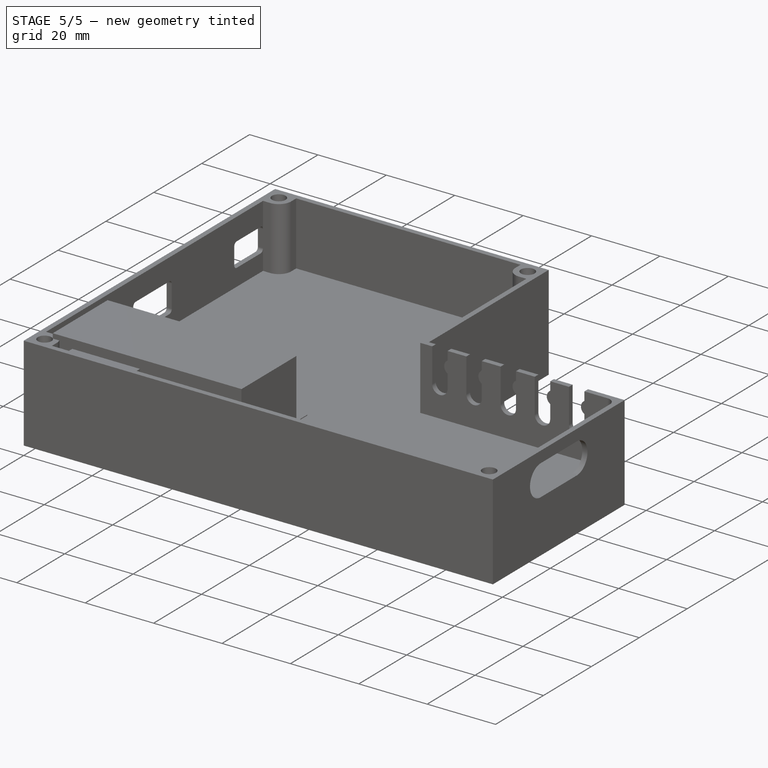
[diagram: stage 5 of 5 — iso view after this stage's code; geometry added in this stage tinted green]
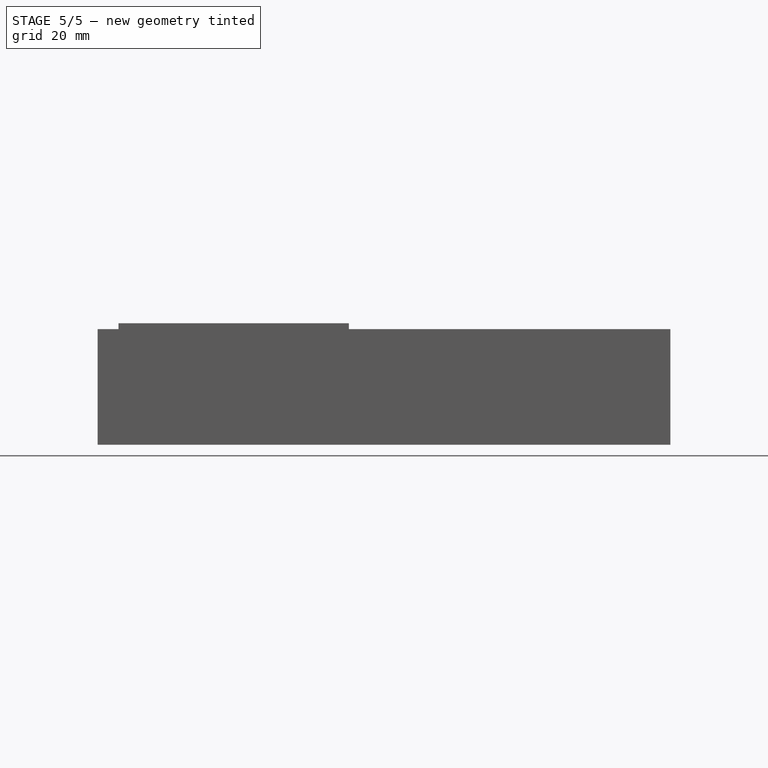
[diagram: stage 5 of 5 — front view after this stage's code; geometry added in this stage tinted green]
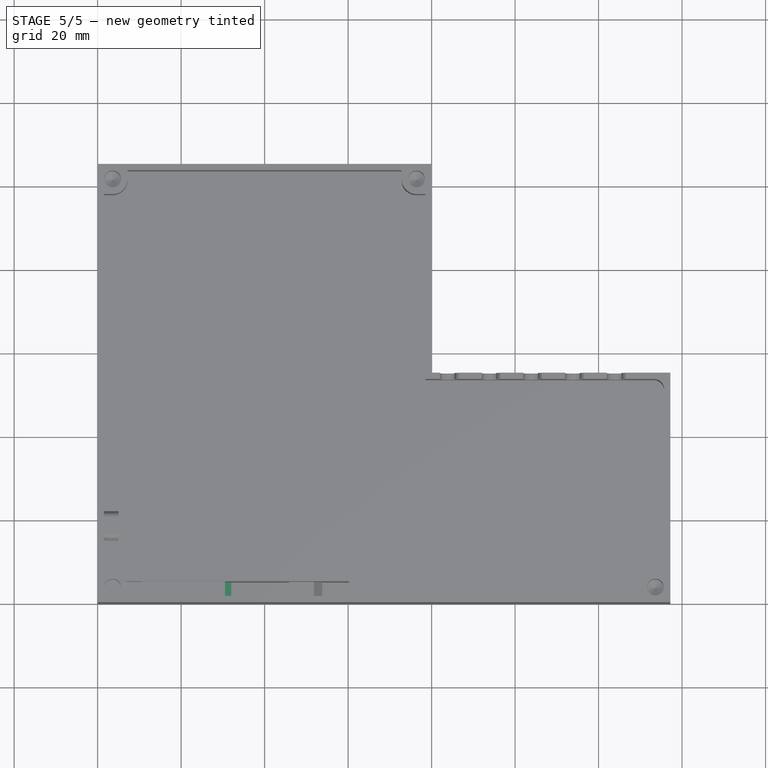
[diagram: stage 5 of 5 — top view after this stage's code; geometry added in this stage tinted green]
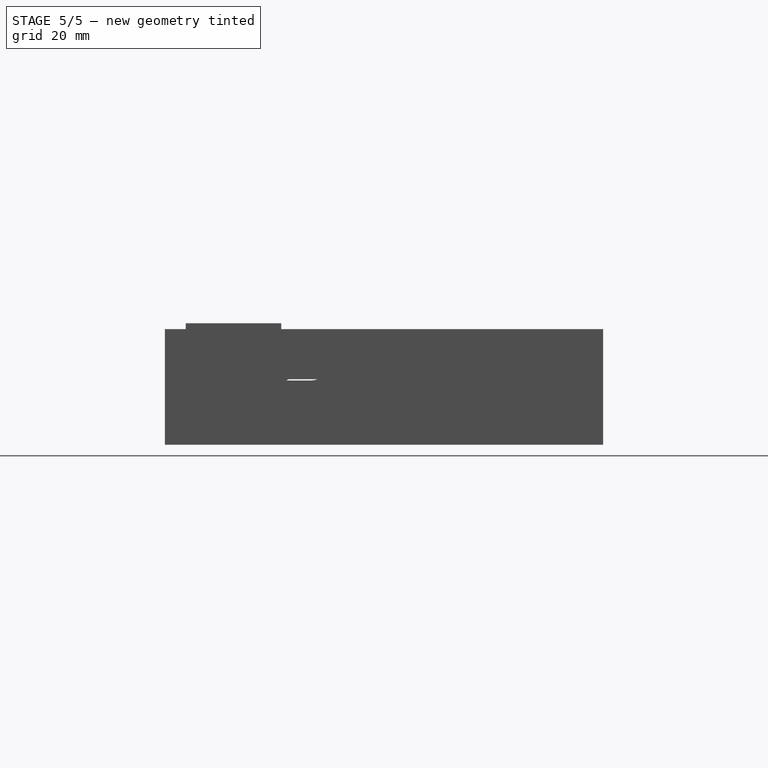
[diagram: stage 5 of 5 — right view after this stage's code; geometry added in this stage tinted green]
FEATURE [Spreadsheet::Sheet] Spreadsheet  label="ss_psu"
  cells = A1=width; B1(width)==32.7 + 0.2; A2=length; B2(length)==65 + 0.2; A3=height; B3(height)=19.7; A4=hole_diameter; B4(hole_diameter)==2.8 - 0.2; A5=hole_y_offset; B5(hole_y_offset)=3.5; A6=hole_y_spacing; B6(hole_y_spacing)=25.2; A7=hole_x_offset; B7(hole_x_offset)=2.5; A8=hole_x_spacing; B8(hole_x_spacing)=59.2
FEATURE [Spreadsheet::Sheet] Spreadsheet001  label="ss_dimmer"
  cells = A1=width; B1(width)==16.2 + 0.2; A2=length; B2(length)==50.3 + 0.2; A3=height; B3(height)=11.7; A4=screw_terminal_x_width; B4(screw_terminal_x_width)=10; A5=mounting_width; B5(mounting_width)=22; A6=mounting_height; B6(mounting_height)=4; A7=pcb_thickness; B7(pcb_thickness)=1.7; A8=screw_terminal_z_offset; B8(screw_terminal_z_offset)=1; A9=screw_terminal_opening_height; B9(screw_terminal_opening_height)=7
FEATURE [Spreadsheet::Sheet] Spreadsheet002  label="ss_relay"
  cells = A1=width; B1(width)==16.8 + 0.2; A2=length; B2(length)==56.6 + 0.2; A3=height; B3(height)=17.1; A4=screw_term_height; B4(screw_term_height)=10; A5=screw_term_width; B5(screw_term_width)=10; A6=pcb_thickness; B6(pcb_thickness)=1.7; A7=relay_x_width; B7(relay_x_width)=30.5; A8=mount_width; B8(mount_width)=15.2; A9=screw_terminal_z_offset; B9(screw_terminal_z_offset)=1; A10=screw_terminal_opening_height; B10(screw_terminal_opening_height)=7
FEATURE [Spreadsheet::Sheet] Spreadsheet003  label="ss_ads"
  cells = A1=width; B1(width)==9 + 0.2; A2=length; B2(length)==25.7 + 0.2; A3=pcb_thickness; B3(pcb_thickness)=1.7; A4=hole_diameter; B4(hole_diameter)=2.6; A5=hole_x_spacing; B5(hole_x_spacing)==23.4 - hole_diameter; A6=hole_x_offset; B6(hole_x_offset)==1.3 + hole_diameter / 2; A7=hole_y_offset; B7(hole_y_offset)==1 + hole_diameter / 2
FEATURE [Spreadsheet::Sheet] Spreadsheet004  label="ss_case"
  cells = A1=wall_thickness; B1(wall_thickness)=1.5; A2=tolerance; B2(tolerance)=0.2; A3=width; B3(width)==60 + <<ss_silvia>>.cable_to_cutout_x; A4=height; B4(height)=20; A5=wiring_channel_width; B5(wiring_channel_width)=10; A6=wiring_clip_width; B6(wiring_clip_width)=4; A7=vent width; B7(vent_width)=4; A8=insert_od; B8(insert_od)=4.2; A9=screw_diameter; B9(screw_diameter)=3; A10=insert_hole_diameter; B10(insert_hole_diameter)=4; A11=external_wall_offset; B11(external_wall_offset)==wall_thickness * 2 + insert_od; A12=case_thickness; B12(case_thickness)==<<ss_psu>>.height; A13=dimmer_y_offset; B13(dimmer_y_offset)==<<ss_relay>>.width + wall_thickness + external_wall_offset; A14=max_y_offset; B14(max_y_offset)==dimmer_y_offset + <<ss_max>>.width + wall_thickness; A15=ads_y_offset; B15(ads_y_offset)==max_y_offset; A16=psu_y_offset; B16(psu_y_offset)==<<ss_max>>.width + max_y_offset + wall_thickness + 5; A17=uC_x_offset; B17(uC_x_offset)==width - wall_thickness; A18=uC_y_offset; B18(uC_y_offset)==<<ss_silvia>>.solenoid_cutout_y_offset / 2 + <<ss_uC>>.breakout_width / 2; A19=screw_castle_offset; B19(screw_castle_offset)==insert_od / 2 + wall_thickness; A20=magnet_diameter; B20(magnet_diameter)==8 + tolerance; A21=magnet_thickness; B21(magnet_thickness)==2 + tolerance; A22=base_height; B22(base_height)==4.5 + 1.7 + wall_thickness; A23=module_hold_down_hole_x_offset; B23(module_hold_down_hole_x_offset)=40; A24=pcb_thickness; B24(pcb_thickness)=1.7
FEATURE [Spreadsheet::Sheet] Spreadsheet005  label="ss_uC"
  cells = A1=breakout_width; B1(breakout_width)==36.6 + 0.2; A2=breakout_length; B2(breakout_length)==53.6 + 0.2; A3=total_length; B3(total_length)=57.2; A4=hole_diameter; B4(hole_diameter)==2.75 - 0.2; A5=hole_x_spacing; B5(hole_x_spacing)=41.7; A6=stm_width; B6(stm_width)=20.9; A7=stm_length; B7(stm_length)=52.9; A8=total_height; B8(total_height)==17.2 - 1.7; A9=usb_c_height; B9(usb_c_height)=3.2; A10=usb_c_width; B10(usb_c_width)=9; A11=usb_c_cutou_offset; B11(usb_c_cutout_offset)==4 + usb_c_height
FEATURE [Spreadsheet::Sheet] Spreadsheet006  label="ss_max"
  cells = A1=width; B1(width)==15.9 + 0.2; A2=length; B2(length)==32.5 + 0.2; A3=pcb_thickness; B3(pcb_thickness)=1.7; A4=terminal_height; B4(terminal_height)=13.64; A5=terminal depth; B5(terminal_depth)=11.9; A6=hole_diameter; B6(hole_diameter)==3.8 - 0.2; A7=hole_x_offset; B7(hole_x_offset)==14.9 + hole_diameter / 2; A8=screw_terminal_z_offset; B8(screw_terminal_z_offset)=5
FEATURE [Sketcher::SketchObject] Sketch012
  FullyConstrained = true
  MapMode = 5
  Support = -> [XY_Plane004]
  expr: Constraints[10] = <<ss_ads>>.width
  expr: Constraints[12] = <<ss_ads>>.hole_x_offset
  expr: Constraints[13] = <<ss_ads>>.hole_x_spacing
  expr: Constraints[15] = <<ss_ads>>.hole_diameter
  expr: Constraints[16] = <<ss_ads>>.hole_y_offset
  expr: Constraints[9] = <<ss_ads>>.length
  sketch-geometry (6):
    g0: LineSegment StartX=0 StartY=0 StartZ=0 EndX=25.9 EndY=0 EndZ=0
    g1: LineSegment StartX=25.9 StartY=0 StartZ=0 EndX=25.9 EndY=9.2 EndZ=0
    g2: LineSegment StartX=25.9 StartY=9.2 StartZ=0 EndX=0 EndY=9.2 EndZ=0
    g3: LineSegment StartX=0 StartY=9.2 StartZ=0 EndX=0 EndY=0 EndZ=0
    g4: Circle CenterX=2.6 CenterY=2.3 CenterZ=0 NormalX=0 NormalY=0 NormalZ=1 AngleXU=0 Radius=1.3
    g5: Circle CenterX=23.4 CenterY=2.3 CenterZ=0 NormalX=0 NormalY=0 NormalZ=1 AngleXU=0 Radius=1.3
  constraints (17):
    c: Coincident(g0,g1)
    c: Coincident(g1,g2)
    c: Coincident(g2,g3)
    c: Coincident(g3,g0)
    c: Horizontal(g0)
    c: Horizontal(g2)
    c: Vertical(g1)
    c: Vertical(g3)
    c: Coincident(g0,g-1)
    c: DistanceX(g2,g2) = 25.9
    c: DistanceY(g1,g1) = 9.2
    c: Horizontal(g4,g5)
    c: DistanceX(g0,g4) = 2.6
    c: DistanceX(g4,g5) = 20.8
    c: Equal(g5,g4)
    c: Diameter(g4) = 2.6
    c: DistanceY(g0,g4) = 2.3
FEATURE [PartDesign::Pad] Pad012
  Direction = (0,0,1)
  Length = 1.7
  Length2 = 10
  Profile = -> Sketch012
  ReferenceAxis = -> Sketch012 [N_Axis]
  Type = 0
  expr: Length = <<ss_ads>>.pcb_thickness
FEATURE [Sketcher::SketchObject] Sketch002
  FullyConstrained = true
  MapMode = 5
  Support = -> [XY_Plane002]
  expr: Constraints[10] = <<ss_dimmer>>.length
  expr: Constraints[9] = <<ss_dimmer>>.width
  sketch-geometry (4):
    g0: LineSegment StartX=0 StartY=0 StartZ=0 EndX=50.5 EndY=0 EndZ=0
    g1: LineSegment StartX=50.5 StartY=0 StartZ=0 EndX=50.5 EndY=16.4 EndZ=0
    g2: LineSegment StartX=50.5 StartY=16.4 StartZ=0 EndX=0 EndY=16.4 EndZ=0
    g3: LineSegment StartX=0 StartY=16.4 StartZ=0 EndX=0 EndY=0 EndZ=0
  constraints (11):
    c: Coincident(g0,g1)
    c: Coincident(g1,g2)
    c: Coincident(g2,g3)
    c: Coincident(g3,g0)
    c: Horizontal(g0)
    c: Horizontal(g2)
    c: Vertical(g1)
    c: Vertical(g3)
    c: Coincident(g0,g-1)
    c: DistanceY(g1,g1) = 16.4
    c: DistanceX(g2,g2) = 50.5
FEATURE [PartDesign::Pad] Pad002
  Direction = (0,0,1)
  Length = 1.7
  Length2 = 10
  Profile = -> Sketch002
  ReferenceAxis = -> Sketch002 [N_Axis]
  Type = 0
  expr: Length = <<ss_dimmer>>.pcb_thickness
FEATURE [Sketcher::SketchObject] Sketch003
  ExternalGeometry = -> [Pad002]
  FullyConstrained = true
  MapMode = 5
  Placement = pos=(0,0,1.7) rot=(0,0,1;0rad)
  Support = -> [Pad002]
  expr: Constraints[8] = <<ss_dimmer>>.screw_terminal_x_width
  sketch-geometry (4):
    g0: LineSegment StartX=0 StartY=16.4 StartZ=0 EndX=10 EndY=16.4 EndZ=0
    g1: LineSegment StartX=10 StartY=16.4 StartZ=0 EndX=10 EndY=0 EndZ=0
    g2: LineSegment StartX=10 StartY=0 StartZ=0 EndX=0 EndY=0 EndZ=0
    g3: LineSegment StartX=0 StartY=0 StartZ=0 EndX=0 EndY=16.4 EndZ=0
  constraints (12):
    c: Coincident(g0,g1)
    c: Coincident(g1,g2)
    c: Coincident(g2,g3)
    c: Coincident(g3,g0)
    c: Horizontal(g0)
    c: Horizontal(g2)
    c: Vertical(g1)
    c: Vertical(g3)
    c: DistanceX(g0,g0) = 10
    c: PointOnObject(g0,g-2)
    c: PointOnObject(g0,g-3)
    c: PointOnObject(g1,g-4)
FEATURE [PartDesign::Pad] Pad003
  BaseFeature = -> Pad002
  Direction = (0,0,1)
  Length = 11.7
  Length2 = 10
  Profile = -> Sketch003
  ReferenceAxis = -> Sketch003 [N_Axis]
  Type = 0
  expr: Length = <<ss_dimmer>>.height
FEATURE [Sketcher::SketchObject] Sketch004
  ExternalGeometry = -> [Pad003]
  FullyConstrained = true
  MapMode = 5
  Placement = pos=(0,0,1.7) rot=(0,0,1;0rad)
  Support = -> [Pad003]
  expr: Constraints[8] = <<ss_dimmer>>.mounting_width
  sketch-geometry (6):
    g0: LineSegment StartX=10 StartY=15.4 StartZ=0 EndX=32 EndY=15.4 EndZ=0
    g1: LineSegment StartX=32 StartY=15.4 StartZ=0 EndX=32 EndY=1 EndZ=0
    g2: LineSegment StartX=32 StartY=1 StartZ=0 EndX=10 EndY=1 EndZ=0
    g3: LineSegment StartX=10 StartY=1 StartZ=0 EndX=10 EndY=15.4 EndZ=0
    g4: LineSegment StartX=32 StartY=1 StartZ=0 EndX=32 EndY=0 EndZ=0
    g5: LineSegment StartX=32 StartY=15.4 StartZ=0 EndX=32 EndY=16.4 EndZ=0
  constraints (18):
    c: Coincident(g0,g1)
    c: Coincident(g1,g2)
    c: Coincident(g2,g3)
    c: Coincident(g3,g0)
    c: Horizontal(g0)
    c: Horizontal(g2)
    c: Vertical(g1)
    c: Vertical(g3)
    c: DistanceX(g-3,g0) = 22
    c: PointOnObject(g0,g-3)
    c: Coincident(g4,g1)
    c: PointOnObject(g4,g-1)
    c: Coincident(g5,g0)
    c: PointOnObject(g5,g-4)
    c: Vertical(g5)
    c: Vertical(g4)
    c: DistanceY(g4,g4) = 1
    c: Equal(g5,g4)
FEATURE [PartDesign::Pad] Pad004
  BaseFeature = -> Pad003
  Direction = (0,0,1)
  Length = 2.3
  Length2 = 10
  Profile = -> Sketch004
  ReferenceAxis = -> Sketch004 [N_Axis]
  Type = 0
  expr: Length = <<ss_dimmer>>.mounting_height - <<ss_dimmer>>.pcb_thickness
FEATURE [Sketcher::SketchObject] Sketch010
  ExternalGeometry = -> [Pad004]
  FullyConstrained = true
  MapMode = 5
  Placement = pos=(0,0,0) rot=(1,0,0;3.14159rad)
  Support = -> [Pad004]
  sketch-geometry (12):
    g0: LineSegment StartX=1.7 StartY=-1.7 StartZ=0 EndX=48.8 EndY=-1.7 EndZ=0
    g1: LineSegment StartX=48.8 StartY=-14.7 StartZ=0 EndX=1.7 EndY=-14.7 EndZ=0
    g2: LineSegment StartX=1.7 StartY=-14.7 StartZ=0 EndX=1.7 EndY=-1.7 EndZ=0
    g3: LineSegment StartX=48.8 StartY=-1.7 StartZ=0 EndX=48.8 EndY=-14.7 EndZ=0
    g4: LineSegment StartX=0 StartY=0 StartZ=0 EndX=1.7 EndY=0 EndZ=0
    g5: LineSegment StartX=1.7 StartY=0 StartZ=0 EndX=1.7 EndY=-1.7 EndZ=0
    g6: LineSegment StartX=1.7 StartY=-1.7 StartZ=0 EndX=0 EndY=-1.7 EndZ=0
    g7: LineSegment StartX=0 StartY=-1.7 StartZ=0 EndX=0 EndY=0 EndZ=0
    g8: LineSegment StartX=50.5 StartY=-16.4 StartZ=0 EndX=48.8 EndY=-16.4 EndZ=0
    g9: LineSegment StartX=48.8 StartY=-16.4 StartZ=0 EndX=48.8 EndY=-14.7 EndZ=0
    g10: LineSegment StartX=48.8 StartY=-14.7 StartZ=0 EndX=50.5 EndY=-14.7 EndZ=0
    g11: LineSegment StartX=50.5 StartY=-14.7 StartZ=0 EndX=50.5 EndY=-16.4 EndZ=0
  constraints (32):
    c: Coincident(g1,g2)
    c: Coincident(g2,g0)
    c: Horizontal(g0)
    c: Horizontal(g1)
    c: Vertical(g2)
    c: Coincident(g3,g0)
    c: Coincident(g3,g1)
    c: Vertical(g3)
    c: Coincident(g4,g5)
    c: Coincident(g5,g6)
    c: Coincident(g6,g7)
    c: Coincident(g7,g4)
    c: Horizontal(g4)
    c: Horizontal(g6)
    c: Vertical(g5)
    c: Vertical(g7)
    c: Coincident(g4,g-1)
    c: Coincident(g5,g0)
    c: Coincident(g8,g9)
    c: Coincident(g9,g10)
    c: Coincident(g10,g11)
    c: Coincident(g11,g8)
    c: Horizontal(g8)
    c: Horizontal(g10)
    c: Vertical(g9)
    c: Vertical(g11)
    c: Coincident(g8,g-4)
    c: Coincident(g9,g1)
    c: Equal(g9,g10)
    c: Equal(g9,g6)
    c: Equal(g6,g5)
    c: DistanceX(g10,g10) = 1.7
FEATURE [PartDesign::Pad] Pad010
  BaseFeature = -> Pad004
  Direction = (0,0,-1)
  Length = 2
  Length2 = 10
  Profile = -> Sketch010
  ReferenceAxis = -> Sketch010 [N_Axis]
  Type = 0
FEATURE [PartDesign::Fillet] Fillet
  Base = -> Pad015 [Edge44,Edge47]
  BaseFeature = -> Pad015
  Radius = 1.6
  SupportTransform = false
  UseAllEdges = false
  expr: Radius = <<ss_uC>>.usb_c_height / 2
FEATURE [Sketcher::SketchObject] Sketch016
  ExternalGeometry = -> [Fillet]
  FullyConstrained = true
  MapMode = 5
  Placement = pos=(0,0,0) rot=(1,0,0;3.14159rad)
  Support = -> [Fillet]
  expr: Constraints[22] = 4
  sketch-geometry (8):
    g0: LineSegment StartX=3.4 StartY=-4 StartZ=0 EndX=57.2 EndY=-4 EndZ=0
    g1: LineSegment StartX=57.2 StartY=-4 StartZ=0 EndX=57.2 EndY=-12.2 EndZ=0
    g2: LineSegment StartX=57.2 StartY=-12.2 StartZ=0 EndX=3.4 EndY=-12.2 EndZ=0
    g3: LineSegment StartX=3.4 StartY=-12.2 StartZ=0 EndX=3.4 EndY=-4 EndZ=0
    g4: LineSegment StartX=57.2 StartY=-32.8 StartZ=0 EndX=3.4 EndY=-32.8 EndZ=0
    g5: LineSegment StartX=3.4 StartY=-32.8 StartZ=0 EndX=3.4 EndY=-24.6 EndZ=0
    g6: LineSegment StartX=3.4 StartY=-24.6 StartZ=0 EndX=57.2 EndY=-24.6 EndZ=0
    g7: LineSegment StartX=57.2 StartY=-24.6 StartZ=0 EndX=57.2 EndY=-32.8 EndZ=0
  constraints (24):
    c: Coincident(g0,g1)
    c: Coincident(g1,g2)
    c: Coincident(g2,g3)
    c: Coincident(g3,g0)
    c: Horizontal(g0)
    c: Horizontal(g2)
    c: Vertical(g1)
    c: Vertical(g3)
    c: PointOnObject(g0,g-4)
    c: PointOnObject(g1,g-6)
    c: Coincident(g4,g5)
    c: Coincident(g5,g6)
    c: Coincident(g6,g7)
    c: Coincident(g7,g4)
    c: Horizontal(g4)
    c: Horizontal(g6)
    c: Vertical(g5)
    c: Vertical(g7)
    c: PointOnObject(g4,g-6)
    c: PointOnObject(g5,g-4)
    c: Equal(g1,g7)
    c: DistanceY(g1,g1) = 8.2
    c: DistanceY(g0,g-6) = 4
    c: DistanceY(g-6,g4) = 4
FEATURE [PartDesign::Pad] Pad016
  BaseFeature = -> Fillet
  Direction = (0,0,-1)
  Length = 2.5
  Length2 = 10
  Profile = -> Sketch016
  ReferenceAxis = -> Sketch016 [N_Axis]
  Type = 0
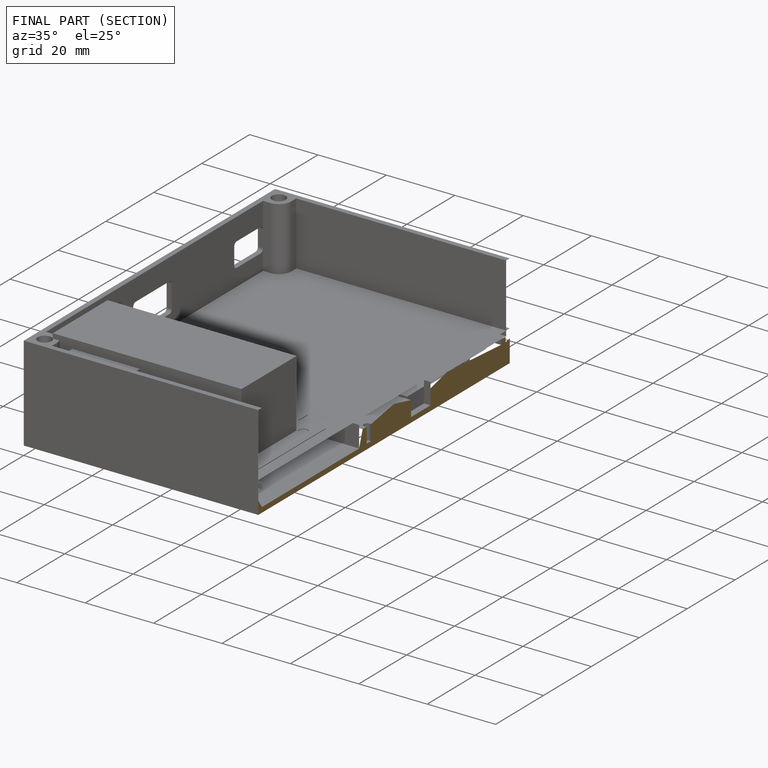
[diagram: finished part — half-section view (interior)]
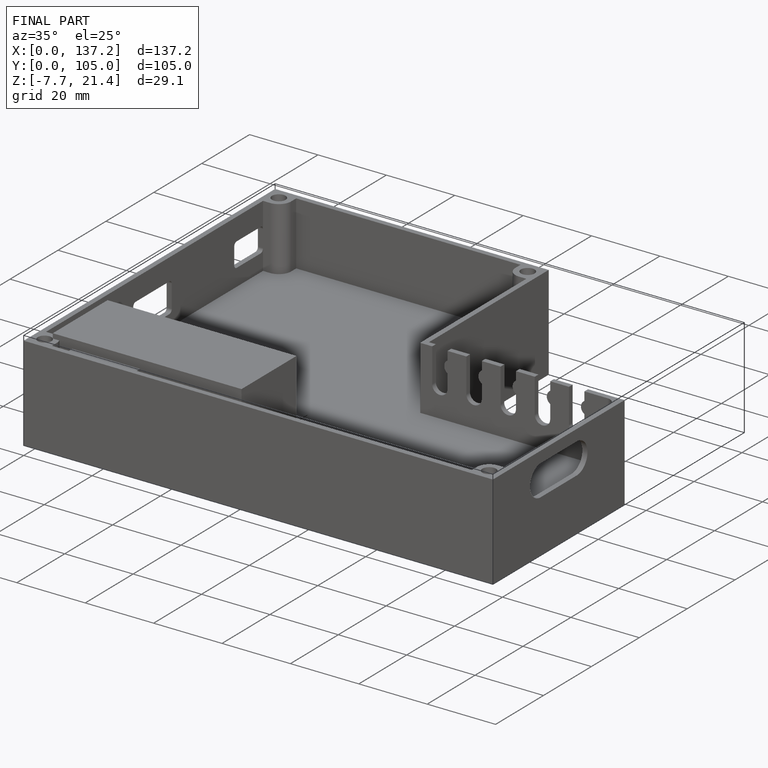
[diagram: finished part — iso view with bounding-box wireframe]
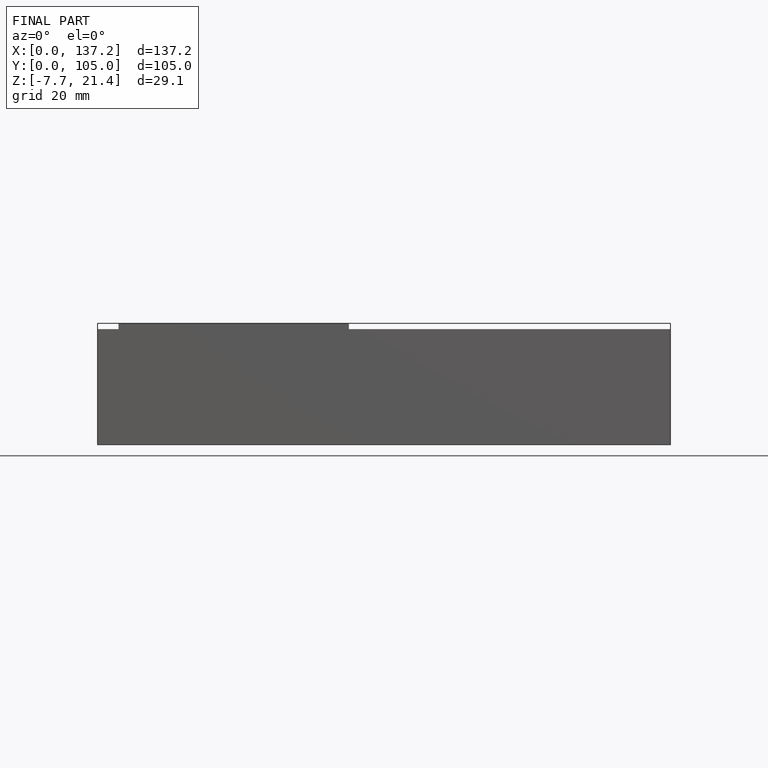
[diagram: finished part — front view with bounding-box wireframe]
